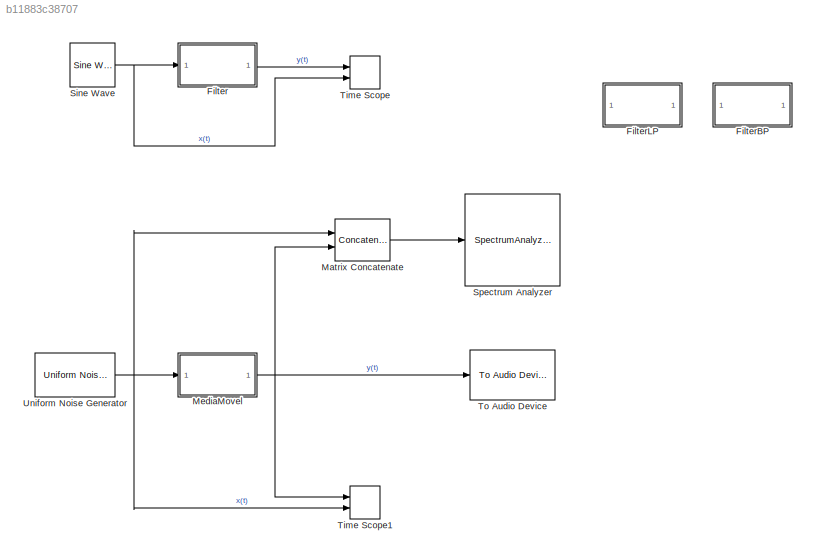
MODEL slx_b11883c38707
KIND model
CONFIG AbsTol = auto
CONFIG FixedStep = auto
CONFIG MaxStep = auto
CONFIG MinStep = auto
CONFIG RelTol = 1e-3
CONFIG SampleTimeConstraint = Unconstrained
CONFIG Solver = ode45
CONFIG SolverMode = Auto
CONFIG SolverName = ode45
CONFIG StartTime = 0.0
CONFIG StopTime = inf
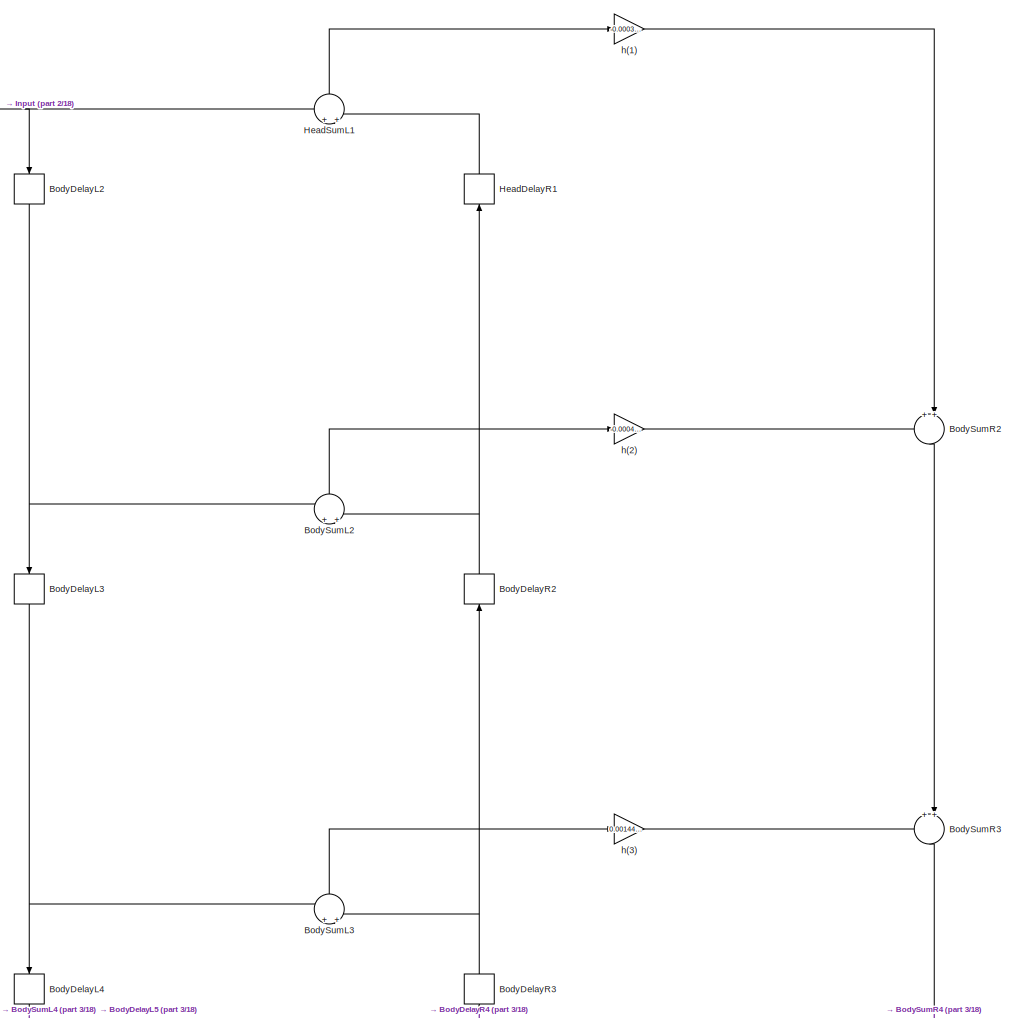
[diagram: Filter - part 1/18, top center region]
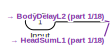
[diagram: Filter - part 2/18, top left region]
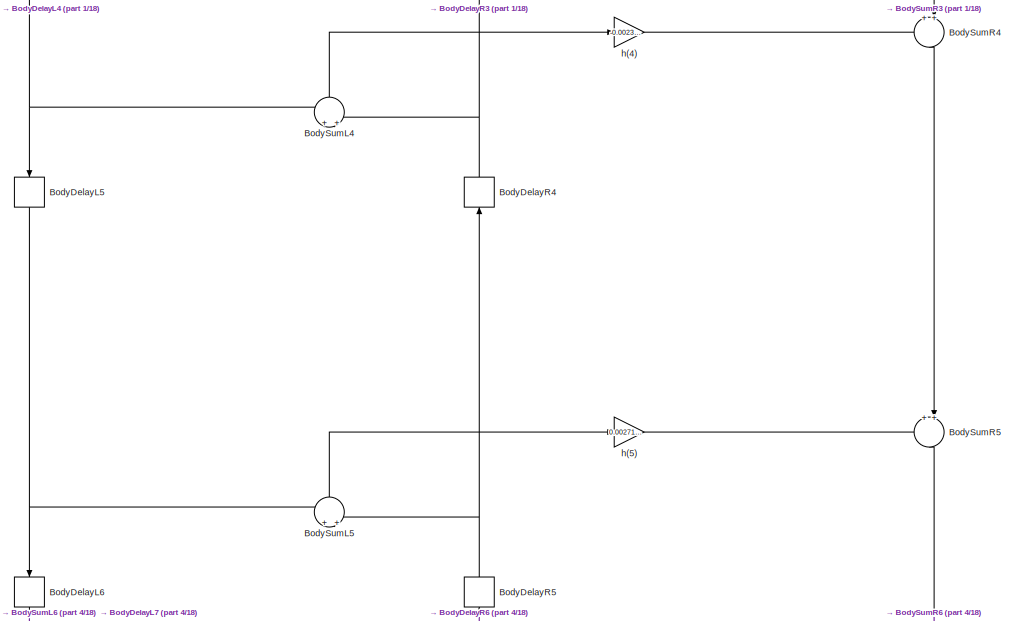
[diagram: Filter - part 3/18, top center region]
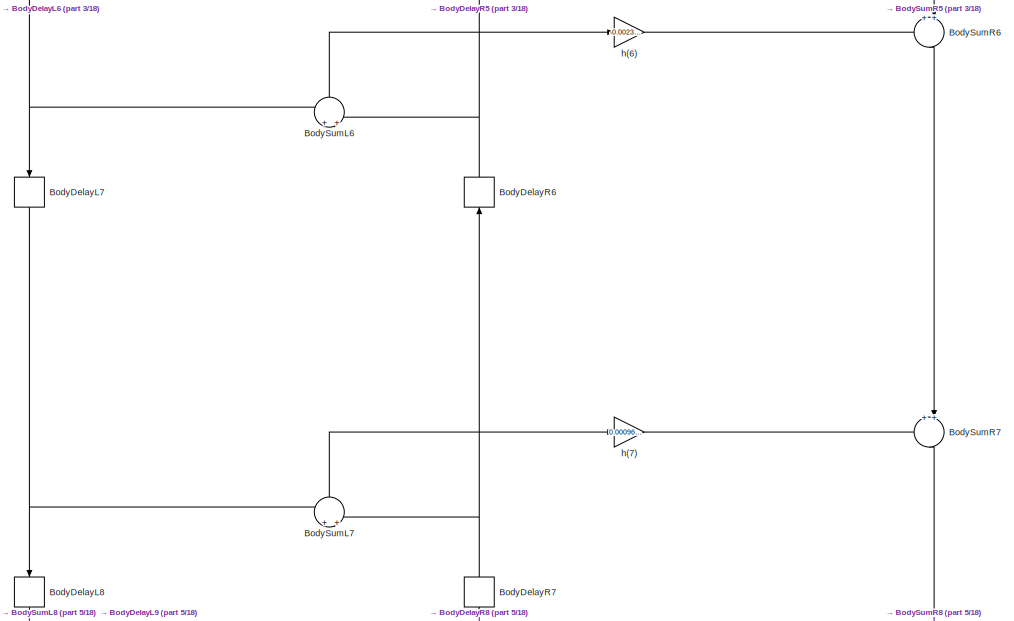
[diagram: Filter - part 4/18, top center region]
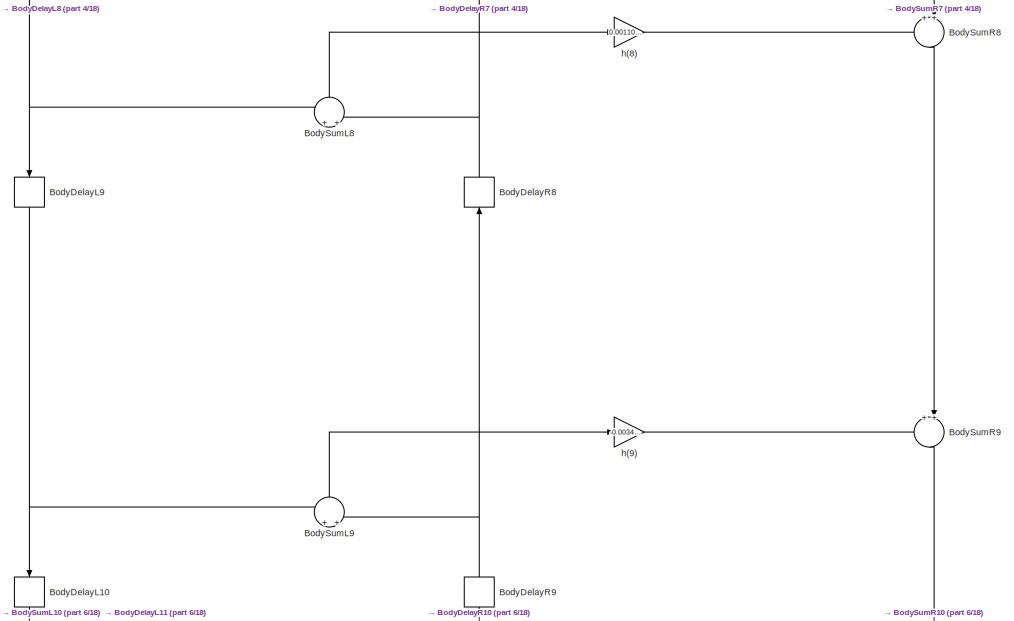
[diagram: Filter - part 5/18, top center region]
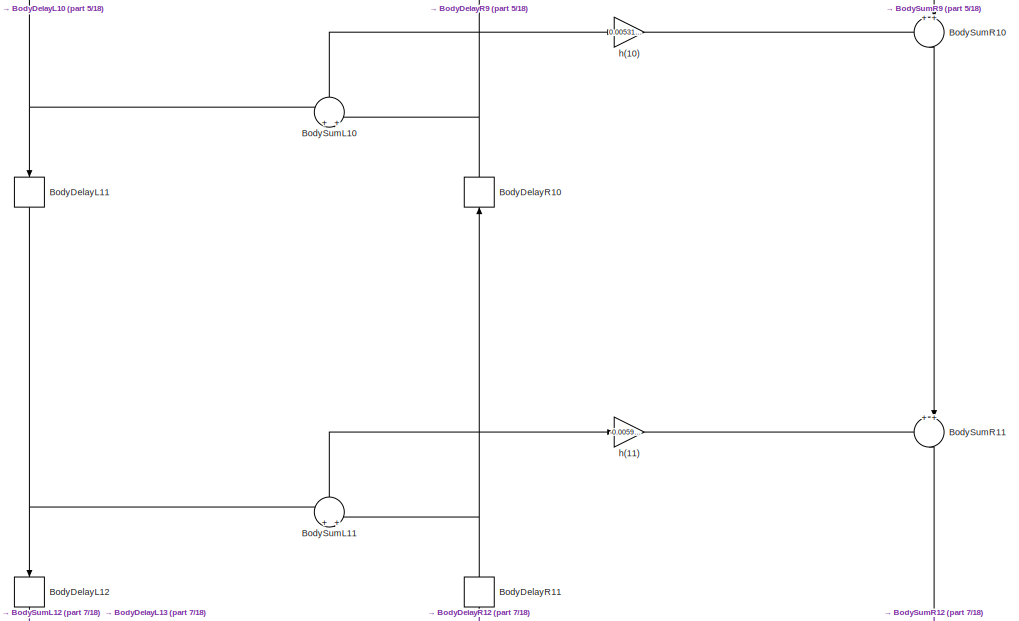
[diagram: Filter - part 6/18, top center region]
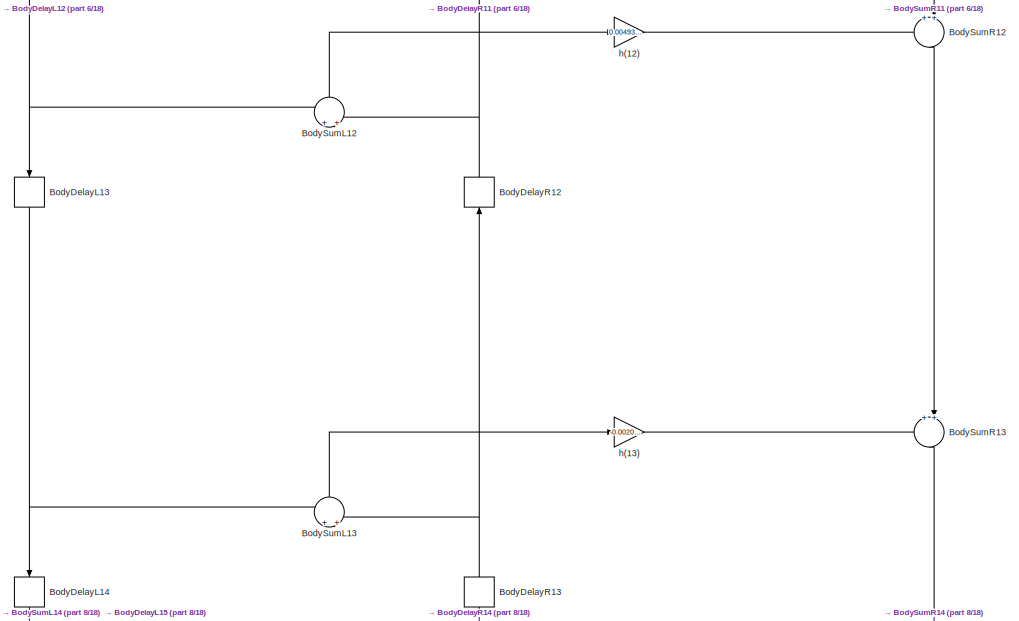
[diagram: Filter - part 7/18, central region]
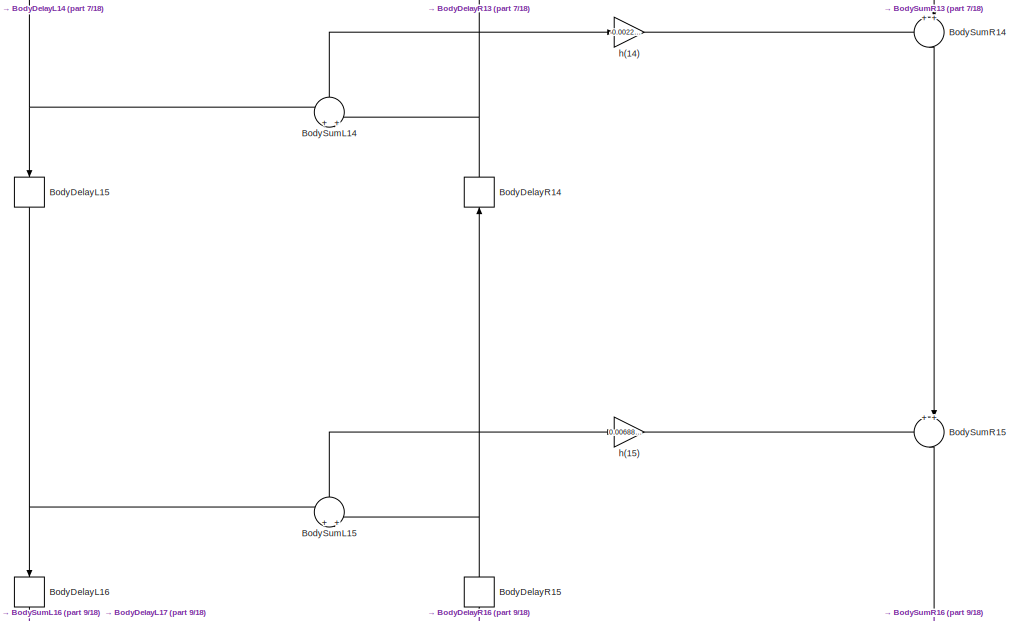
[diagram: Filter - part 8/18, central region]
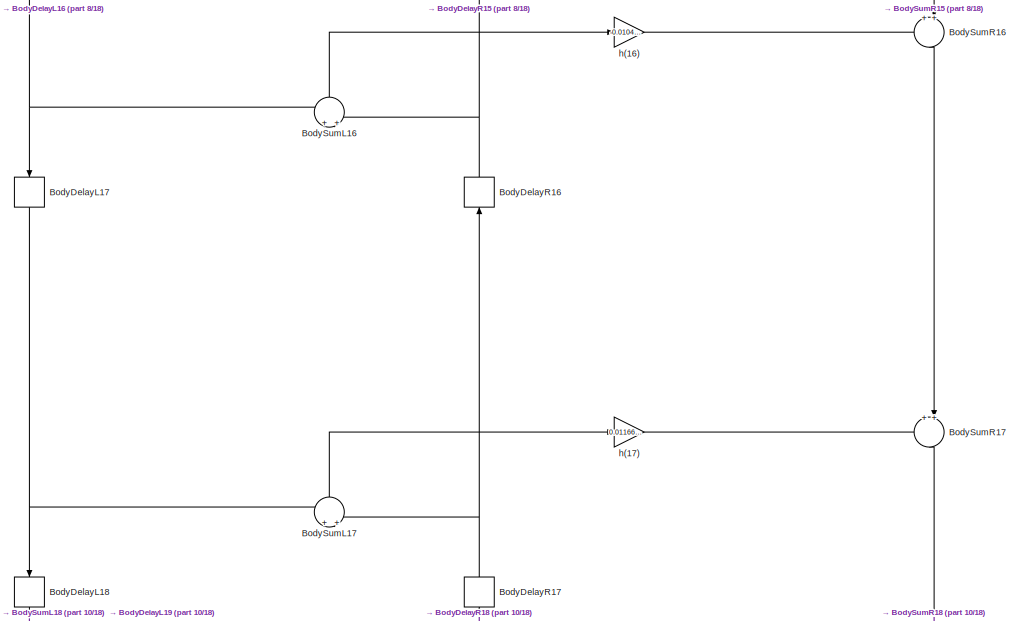
[diagram: Filter - part 9/18, central region]
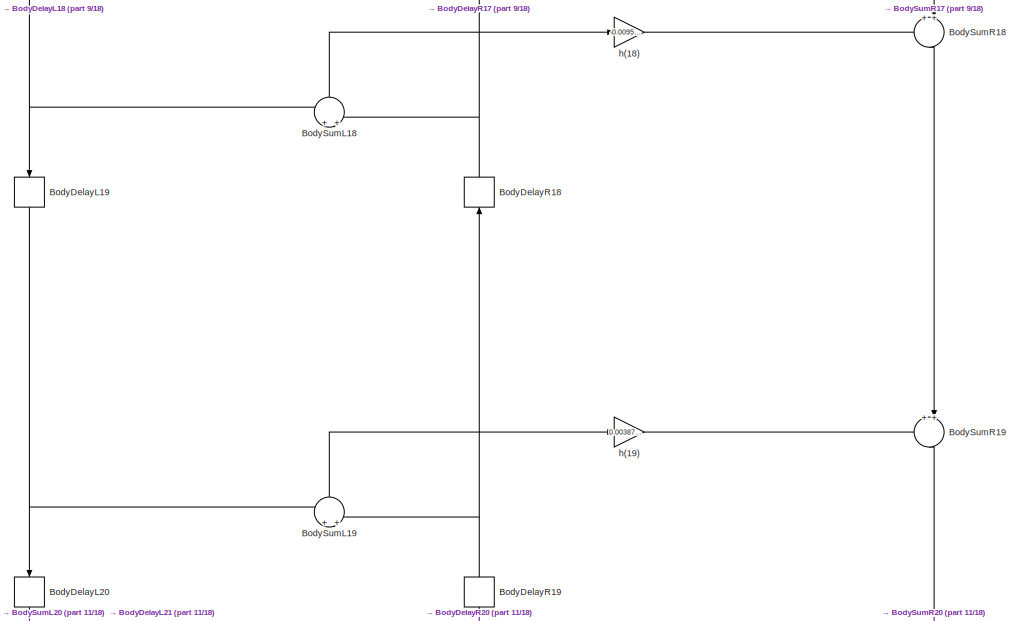
[diagram: Filter - part 10/18, central region]
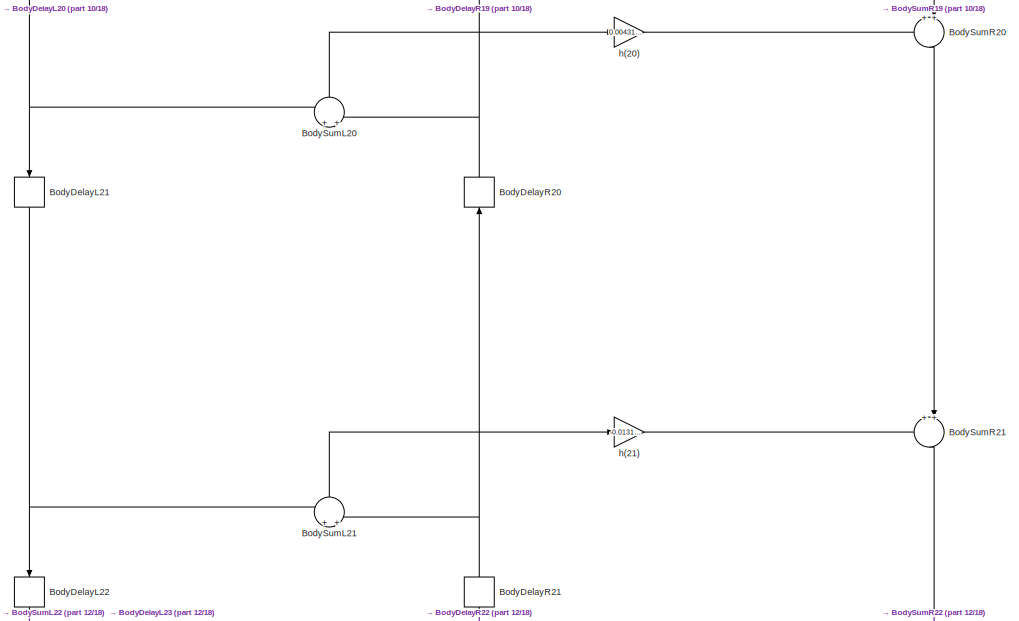
[diagram: Filter - part 11/18, central region]
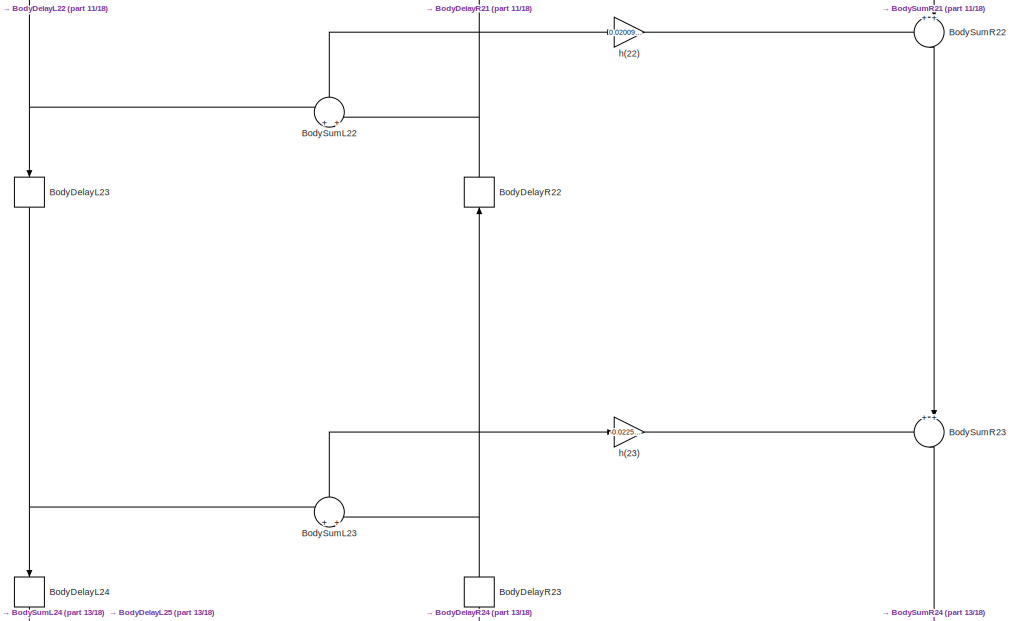
[diagram: Filter - part 12/18, central region]
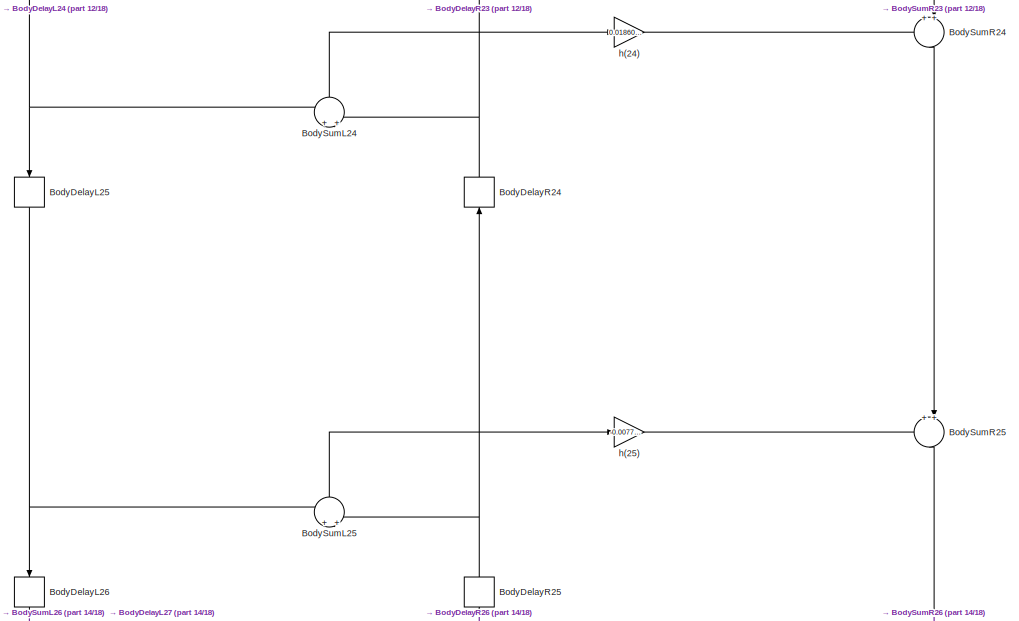
[diagram: Filter - part 13/18, bottom center region]
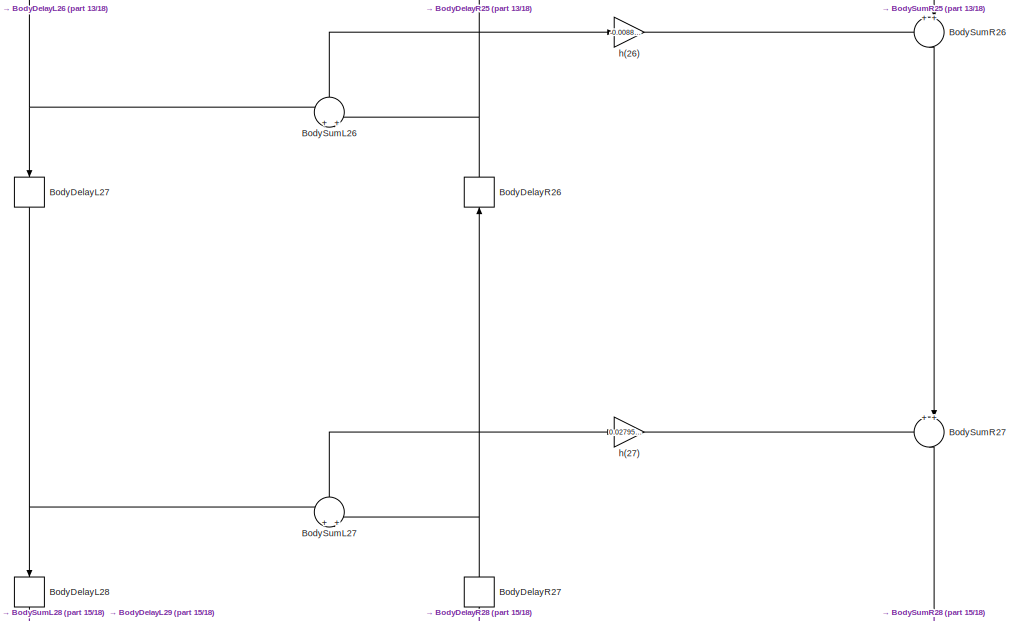
[diagram: Filter - part 14/18, bottom center region]
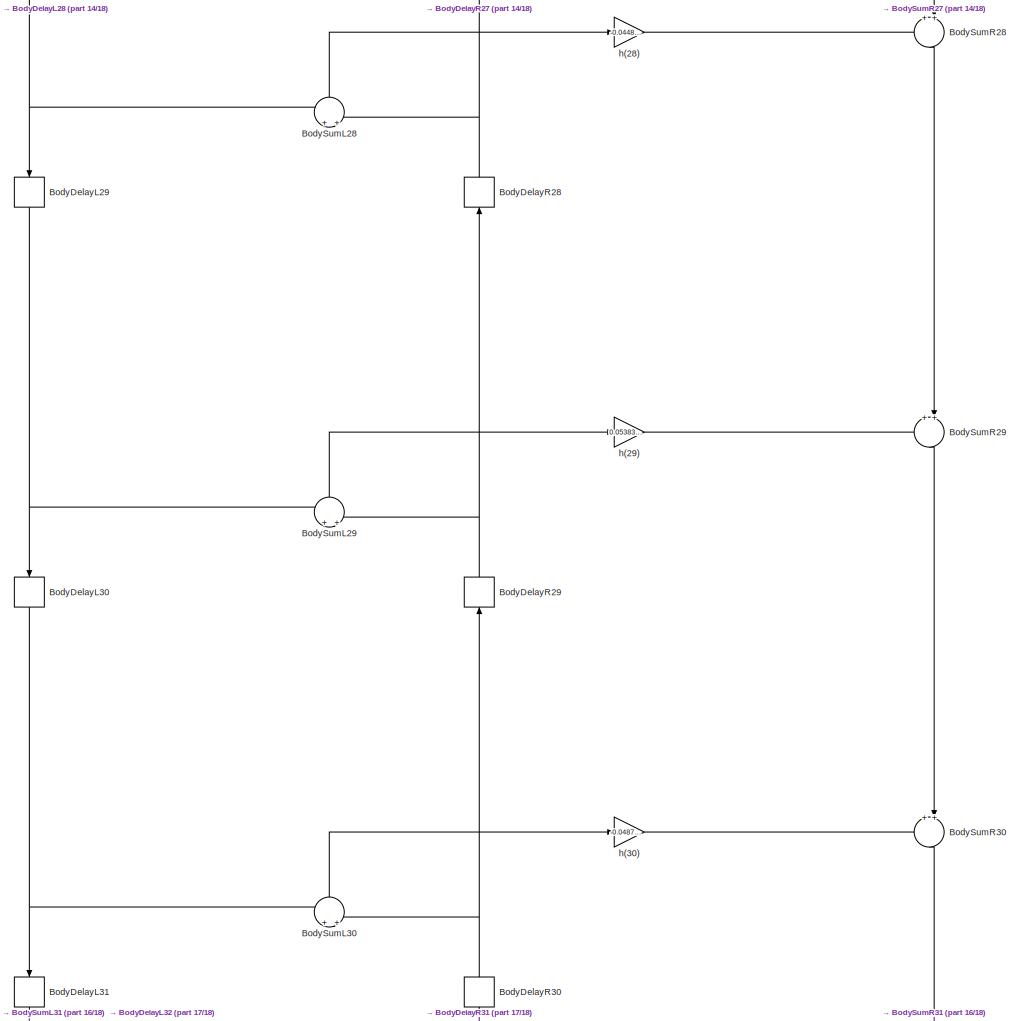
[diagram: Filter - part 15/18, bottom center region]
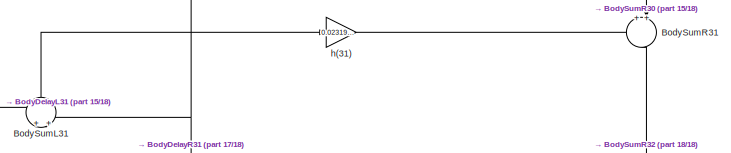
[diagram: Filter - part 16/18, bottom center region]
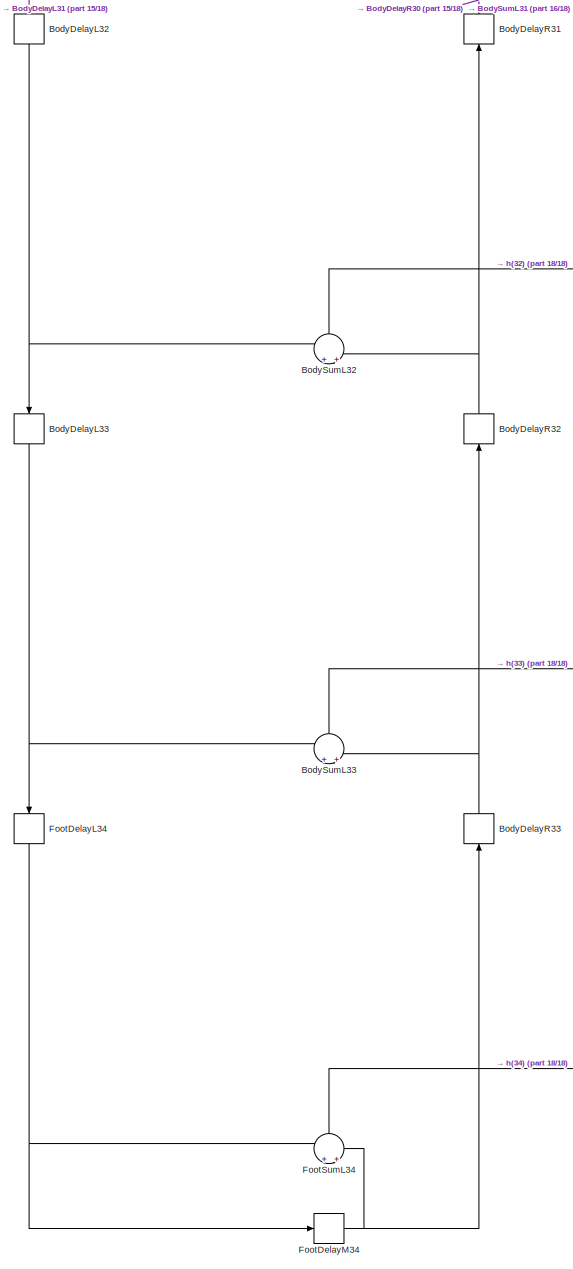
[diagram: Filter - part 17/18, bottom center region]
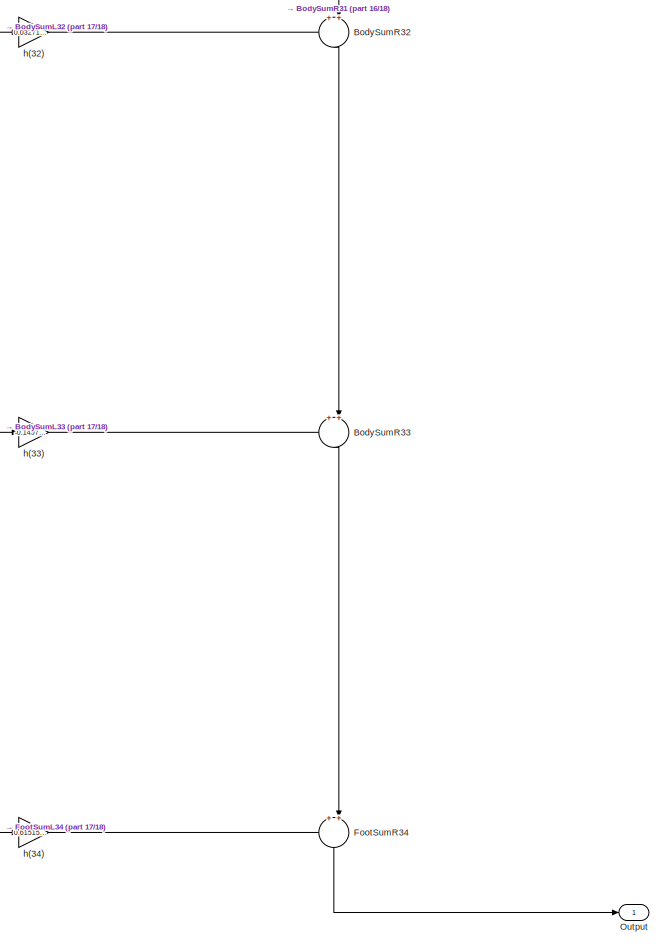
[diagram: Filter - part 18/18, bottom right region]
BLOCK [SubSystem] Filter
  Commented = on
  ErrorFcn = dspFilterRealizedInBasicElemsAlgLoopErrFcnCallback
  Ports = [1, 1]
  RequestExecContextInheritance = off
  Tag = FilterWizardSubSystem
  UserDataPersistent = on
BLOCK [Delay] Filter/BodyDelayL10
  DelayLength = 1
  InitialCondition = 0
  InputPortMap = u0
  InputProcessing = Columns as channels (frame based)
  Ports = [1, 1]
BLOCK [Delay] Filter/BodyDelayL11
  DelayLength = 1
  InitialCondition = 0
  InputPortMap = u0
  InputProcessing = Columns as channels (frame based)
  Ports = [1, 1]
BLOCK [Delay] Filter/BodyDelayL12
  DelayLength = 1
  InitialCondition = 0
  InputPortMap = u0
  InputProcessing = Columns as channels (frame based)
  Ports = [1, 1]
BLOCK [Delay] Filter/BodyDelayL13
  DelayLength = 1
  InitialCondition = 0
  InputPortMap = u0
  InputProcessing = Columns as channels (frame based)
  Ports = [1, 1]
BLOCK [Delay] Filter/BodyDelayL14
  DelayLength = 1
  InitialCondition = 0
  InputPortMap = u0
  InputProcessing = Columns as channels (frame based)
  Ports = [1, 1]
BLOCK [Delay] Filter/BodyDelayL15
  DelayLength = 1
  InitialCondition = 0
  InputPortMap = u0
  InputProcessing = Columns as channels (frame based)
  Ports = [1, 1]
BLOCK [Delay] Filter/BodyDelayL16
  DelayLength = 1
  InitialCondition = 0
  InputPortMap = u0
  InputProcessing = Columns as channels (frame based)
  Ports = [1, 1]
BLOCK [Delay] Filter/BodyDelayL17
  DelayLength = 1
  InitialCondition = 0
  InputPortMap = u0
  InputProcessing = Columns as channels (frame based)
  Ports = [1, 1]
BLOCK [Delay] Filter/BodyDelayL18
  DelayLength = 1
  InitialCondition = 0
  InputPortMap = u0
  InputProcessing = Columns as channels (frame based)
  Ports = [1, 1]
BLOCK [Delay] Filter/BodyDelayL19
  DelayLength = 1
  InitialCondition = 0
  InputPortMap = u0
  InputProcessing = Columns as channels (frame based)
  Ports = [1, 1]
BLOCK [Delay] Filter/BodyDelayL2
  DelayLength = 1
  InitialCondition = 0
  InputPortMap = u0
  InputProcessing = Columns as channels (frame based)
  Ports = [1, 1]
BLOCK [Delay] Filter/BodyDelayL20
  DelayLength = 1
  InitialCondition = 0
  InputPortMap = u0
  InputProcessing = Columns as channels (frame based)
  Ports = [1, 1]
BLOCK [Delay] Filter/BodyDelayL21
  DelayLength = 1
  InitialCondition = 0
  InputPortMap = u0
  InputProcessing = Columns as channels (frame based)
  Ports = [1, 1]
BLOCK [Delay] Filter/BodyDelayL22
  DelayLength = 1
  InitialCondition = 0
  InputPortMap = u0
  InputProcessing = Columns as channels (frame based)
  Ports = [1, 1]
BLOCK [Delay] Filter/BodyDelayL23
  DelayLength = 1
  InitialCondition = 0
  InputPortMap = u0
  InputProcessing = Columns as channels (frame based)
  Ports = [1, 1]
BLOCK [Delay] Filter/BodyDelayL24
  DelayLength = 1
  InitialCondition = 0
  InputPortMap = u0
  InputProcessing = Columns as channels (frame based)
  Ports = [1, 1]
BLOCK [Delay] Filter/BodyDelayL25
  DelayLength = 1
  InitialCondition = 0
  InputPortMap = u0
  InputProcessing = Columns as channels (frame based)
  Ports = [1, 1]
BLOCK [Delay] Filter/BodyDelayL26
  DelayLength = 1
  InitialCondition = 0
  InputPortMap = u0
  InputProcessing = Columns as channels (frame based)
  Ports = [1, 1]
BLOCK [Delay] Filter/BodyDelayL27
  DelayLength = 1
  InitialCondition = 0
  InputPortMap = u0
  InputProcessing = Columns as channels (frame based)
  Ports = [1, 1]
BLOCK [Delay] Filter/BodyDelayL28
  DelayLength = 1
  InitialCondition = 0
  InputPortMap = u0
  InputProcessing = Columns as channels (frame based)
  Ports = [1, 1]
BLOCK [Delay] Filter/BodyDelayL29
  DelayLength = 1
  InitialCondition = 0
  InputPortMap = u0
  InputProcessing = Columns as channels (frame based)
  Ports = [1, 1]
BLOCK [Delay] Filter/BodyDelayL3
  DelayLength = 1
  InitialCondition = 0
  InputPortMap = u0
  InputProcessing = Columns as channels (frame based)
  Ports = [1, 1]
BLOCK [Delay] Filter/BodyDelayL30
  DelayLength = 1
  InitialCondition = 0
  InputPortMap = u0
  InputProcessing = Columns as channels (frame based)
  Ports = [1, 1]
BLOCK [Delay] Filter/BodyDelayL31
  DelayLength = 1
  InitialCondition = 0
  InputPortMap = u0
  InputProcessing = Columns as channels (frame based)
  Ports = [1, 1]
BLOCK [Delay] Filter/BodyDelayL32
  DelayLength = 1
  InitialCondition = 0
  InputPortMap = u0
  InputProcessing = Columns as channels (frame based)
  Ports = [1, 1]
BLOCK [Delay] Filter/BodyDelayL33
  DelayLength = 1
  InitialCondition = 0
  InputPortMap = u0
  InputProcessing = Columns as channels (frame based)
  Ports = [1, 1]
BLOCK [Delay] Filter/BodyDelayL4
  DelayLength = 1
  InitialCondition = 0
  InputPortMap = u0
  InputProcessing = Columns as channels (frame based)
  Ports = [1, 1]
BLOCK [Delay] Filter/BodyDelayL5
  DelayLength = 1
  InitialCondition = 0
  InputPortMap = u0
  InputProcessing = Columns as channels (frame based)
  Ports = [1, 1]
BLOCK [Delay] Filter/BodyDelayL6
  DelayLength = 1
  InitialCondition = 0
  InputPortMap = u0
  InputProcessing = Columns as channels (frame based)
  Ports = [1, 1]
BLOCK [Delay] Filter/BodyDelayL7
  DelayLength = 1
  InitialCondition = 0
  InputPortMap = u0
  InputProcessing = Columns as channels (frame based)
  Ports = [1, 1]
BLOCK [Delay] Filter/BodyDelayL8
  DelayLength = 1
  InitialCondition = 0
  InputPortMap = u0
  InputProcessing = Columns as channels (frame based)
  Ports = [1, 1]
BLOCK [Delay] Filter/BodyDelayL9
  DelayLength = 1
  InitialCondition = 0
  InputPortMap = u0
  InputProcessing = Columns as channels (frame based)
  Ports = [1, 1]
BLOCK [Delay] Filter/BodyDelayR10
  DelayLength = 1
  InitialCondition = 0
  InputPortMap = u0
  InputProcessing = Columns as channels (frame based)
  Ports = [1, 1]
BLOCK [Delay] Filter/BodyDelayR11
  DelayLength = 1
  InitialCondition = 0
  InputPortMap = u0
  InputProcessing = Columns as channels (frame based)
  Ports = [1, 1]
BLOCK [Delay] Filter/BodyDelayR12
  DelayLength = 1
  InitialCondition = 0
  InputPortMap = u0
  InputProcessing = Columns as channels (frame based)
  Ports = [1, 1]
BLOCK [Delay] Filter/BodyDelayR13
  DelayLength = 1
  InitialCondition = 0
  InputPortMap = u0
  InputProcessing = Columns as channels (frame based)
  Ports = [1, 1]
BLOCK [Delay] Filter/BodyDelayR14
  DelayLength = 1
  InitialCondition = 0
  InputPortMap = u0
  InputProcessing = Columns as channels (frame based)
  Ports = [1, 1]
BLOCK [Delay] Filter/BodyDelayR15
  DelayLength = 1
  InitialCondition = 0
  InputPortMap = u0
  InputProcessing = Columns as channels (frame based)
  Ports = [1, 1]
BLOCK [Delay] Filter/BodyDelayR16
  DelayLength = 1
  InitialCondition = 0
  InputPortMap = u0
  InputProcessing = Columns as channels (frame based)
  Ports = [1, 1]
BLOCK [Delay] Filter/BodyDelayR17
  DelayLength = 1
  InitialCondition = 0
  InputPortMap = u0
  InputProcessing = Columns as channels (frame based)
  Ports = [1, 1]
BLOCK [Delay] Filter/BodyDelayR18
  DelayLength = 1
  InitialCondition = 0
  InputPortMap = u0
  InputProcessing = Columns as channels (frame based)
  Ports = [1, 1]
BLOCK [Delay] Filter/BodyDelayR19
  DelayLength = 1
  InitialCondition = 0
  InputPortMap = u0
  InputProcessing = Columns as channels (frame based)
  Ports = [1, 1]
BLOCK [Delay] Filter/BodyDelayR2
  DelayLength = 1
  InitialCondition = 0
  InputPortMap = u0
  InputProcessing = Columns as channels (frame based)
  Ports = [1, 1]
BLOCK [Delay] Filter/BodyDelayR20
  DelayLength = 1
  InitialCondition = 0
  InputPortMap = u0
  InputProcessing = Columns as channels (frame based)
  Ports = [1, 1]
BLOCK [Delay] Filter/BodyDelayR21
  DelayLength = 1
  InitialCondition = 0
  InputPortMap = u0
  InputProcessing = Columns as channels (frame based)
  Ports = [1, 1]
BLOCK [Delay] Filter/BodyDelayR22
  DelayLength = 1
  InitialCondition = 0
  InputPortMap = u0
  InputProcessing = Columns as channels (frame based)
  Ports = [1, 1]
BLOCK [Delay] Filter/BodyDelayR23
  DelayLength = 1
  InitialCondition = 0
  InputPortMap = u0
  InputProcessing = Columns as channels (frame based)
  Ports = [1, 1]
BLOCK [Delay] Filter/BodyDelayR24
  DelayLength = 1
  InitialCondition = 0
  InputPortMap = u0
  InputProcessing = Columns as channels (frame based)
  Ports = [1, 1]
BLOCK [Delay] Filter/BodyDelayR25
  DelayLength = 1
  InitialCondition = 0
  InputPortMap = u0
  InputProcessing = Columns as channels (frame based)
  Ports = [1, 1]
BLOCK [Delay] Filter/BodyDelayR26
  DelayLength = 1
  InitialCondition = 0
  InputPortMap = u0
  InputProcessing = Columns as channels (frame based)
  Ports = [1, 1]
BLOCK [Delay] Filter/BodyDelayR27
  DelayLength = 1
  InitialCondition = 0
  InputPortMap = u0
  InputProcessing = Columns as channels (frame based)
  Ports = [1, 1]
BLOCK [Delay] Filter/BodyDelayR28
  DelayLength = 1
  InitialCondition = 0
  InputPortMap = u0
  InputProcessing = Columns as channels (frame based)
  Ports = [1, 1]
BLOCK [Delay] Filter/BodyDelayR29
  DelayLength = 1
  InitialCondition = 0
  InputPortMap = u0
  InputProcessing = Columns as channels (frame based)
  Ports = [1, 1]
BLOCK [Delay] Filter/BodyDelayR3
  DelayLength = 1
  InitialCondition = 0
  InputPortMap = u0
  InputProcessing = Columns as channels (frame based)
  Ports = [1, 1]
BLOCK [Delay] Filter/BodyDelayR30
  DelayLength = 1
  InitialCondition = 0
  InputPortMap = u0
  InputProcessing = Columns as channels (frame based)
  Ports = [1, 1]
BLOCK [Delay] Filter/BodyDelayR31
  DelayLength = 1
  InitialCondition = 0
  InputPortMap = u0
  InputProcessing = Columns as channels (frame based)
  Ports = [1, 1]
BLOCK [Delay] Filter/BodyDelayR32
  DelayLength = 1
  InitialCondition = 0
  InputPortMap = u0
  InputProcessing = Columns as channels (frame based)
  Ports = [1, 1]
BLOCK [Delay] Filter/BodyDelayR33
  DelayLength = 1
  InitialCondition = 0
  InputPortMap = u0
  InputProcessing = Columns as channels (frame based)
  Ports = [1, 1]
BLOCK [Delay] Filter/BodyDelayR4
  DelayLength = 1
  InitialCondition = 0
  InputPortMap = u0
  InputProcessing = Columns as channels (frame based)
  Ports = [1, 1]
BLOCK [Delay] Filter/BodyDelayR5
  DelayLength = 1
  InitialCondition = 0
  InputPortMap = u0
  InputProcessing = Columns as channels (frame based)
  Ports = [1, 1]
BLOCK [Delay] Filter/BodyDelayR6
  DelayLength = 1
  InitialCondition = 0
  InputPortMap = u0
  InputProcessing = Columns as channels (frame based)
  Ports = [1, 1]
BLOCK [Delay] Filter/BodyDelayR7
  DelayLength = 1
  InitialCondition = 0
  InputPortMap = u0
  InputProcessing = Columns as channels (frame based)
  Ports = [1, 1]
BLOCK [Delay] Filter/BodyDelayR8
  DelayLength = 1
  InitialCondition = 0
  InputPortMap = u0
  InputProcessing = Columns as channels (frame based)
  Ports = [1, 1]
BLOCK [Delay] Filter/BodyDelayR9
  DelayLength = 1
  InitialCondition = 0
  InputPortMap = u0
  InputProcessing = Columns as channels (frame based)
  Ports = [1, 1]
BLOCK [Sum] Filter/BodySumL10
  IconShape = round
  InputSameDT = off
  Inputs = +|+
  Ports = [2, 1]
  RndMeth = Nearest
BLOCK [Sum] Filter/BodySumL11
  IconShape = round
  InputSameDT = off
  Inputs = +|+
  Ports = [2, 1]
  RndMeth = Nearest
BLOCK [Sum] Filter/BodySumL12
  IconShape = round
  InputSameDT = off
  Inputs = +|+
  Ports = [2, 1]
  RndMeth = Nearest
BLOCK [Sum] Filter/BodySumL13
  IconShape = round
  InputSameDT = off
  Inputs = +|+
  Ports = [2, 1]
  RndMeth = Nearest
BLOCK [Sum] Filter/BodySumL14
  IconShape = round
  InputSameDT = off
  Inputs = +|+
  Ports = [2, 1]
  RndMeth = Nearest
BLOCK [Sum] Filter/BodySumL15
  IconShape = round
  InputSameDT = off
  Inputs = +|+
  Ports = [2, 1]
  RndMeth = Nearest
BLOCK [Sum] Filter/BodySumL16
  IconShape = round
  InputSameDT = off
  Inputs = +|+
  Ports = [2, 1]
  RndMeth = Nearest
BLOCK [Sum] Filter/BodySumL17
  IconShape = round
  InputSameDT = off
  Inputs = +|+
  Ports = [2, 1]
  RndMeth = Nearest
BLOCK [Sum] Filter/BodySumL18
  IconShape = round
  InputSameDT = off
  Inputs = +|+
  Ports = [2, 1]
  RndMeth = Nearest
BLOCK [Sum] Filter/BodySumL19
  IconShape = round
  InputSameDT = off
  Inputs = +|+
  Ports = [2, 1]
  RndMeth = Nearest
BLOCK [Sum] Filter/BodySumL2
  IconShape = round
  InputSameDT = off
  Inputs = +|+
  Ports = [2, 1]
  RndMeth = Nearest
BLOCK [Sum] Filter/BodySumL20
  IconShape = round
  InputSameDT = off
  Inputs = +|+
  Ports = [2, 1]
  RndMeth = Nearest
BLOCK [Sum] Filter/BodySumL21
  IconShape = round
  InputSameDT = off
  Inputs = +|+
  Ports = [2, 1]
  RndMeth = Nearest
BLOCK [Sum] Filter/BodySumL22
  IconShape = round
  InputSameDT = off
  Inputs = +|+
  Ports = [2, 1]
  RndMeth = Nearest
BLOCK [Sum] Filter/BodySumL23
  IconShape = round
  InputSameDT = off
  Inputs = +|+
  Ports = [2, 1]
  RndMeth = Nearest
BLOCK [Sum] Filter/BodySumL24
  IconShape = round
  InputSameDT = off
  Inputs = +|+
  Ports = [2, 1]
  RndMeth = Nearest
BLOCK [Sum] Filter/BodySumL25
  IconShape = round
  InputSameDT = off
  Inputs = +|+
  Ports = [2, 1]
  RndMeth = Nearest
BLOCK [Sum] Filter/BodySumL26
  IconShape = round
  InputSameDT = off
  Inputs = +|+
  Ports = [2, 1]
  RndMeth = Nearest
BLOCK [Sum] Filter/BodySumL27
  IconShape = round
  InputSameDT = off
  Inputs = +|+
  Ports = [2, 1]
  RndMeth = Nearest
BLOCK [Sum] Filter/BodySumL28
  IconShape = round
  InputSameDT = off
  Inputs = +|+
  Ports = [2, 1]
  RndMeth = Nearest
BLOCK [Sum] Filter/BodySumL29
  IconShape = round
  InputSameDT = off
  Inputs = +|+
  Ports = [2, 1]
  RndMeth = Nearest
BLOCK [Sum] Filter/BodySumL3
  IconShape = round
  InputSameDT = off
  Inputs = +|+
  Ports = [2, 1]
  RndMeth = Nearest
BLOCK [Sum] Filter/BodySumL30
  IconShape = round
  InputSameDT = off
  Inputs = +|+
  Ports = [2, 1]
  RndMeth = Nearest
BLOCK [Sum] Filter/BodySumL31
  IconShape = round
  InputSameDT = off
  Inputs = +|+
  Ports = [2, 1]
  RndMeth = Nearest
BLOCK [Sum] Filter/BodySumL32
  IconShape = round
  InputSameDT = off
  Inputs = +|+
  Ports = [2, 1]
  RndMeth = Nearest
BLOCK [Sum] Filter/BodySumL33
  IconShape = round
  InputSameDT = off
  Inputs = +|+
  Ports = [2, 1]
  RndMeth = Nearest
BLOCK [Sum] Filter/BodySumL4
  IconShape = round
  InputSameDT = off
  Inputs = +|+
  Ports = [2, 1]
  RndMeth = Nearest
BLOCK [Sum] Filter/BodySumL5
  IconShape = round
  InputSameDT = off
  Inputs = +|+
  Ports = [2, 1]
  RndMeth = Nearest
BLOCK [Sum] Filter/BodySumL6
  IconShape = round
  InputSameDT = off
  Inputs = +|+
  Ports = [2, 1]
  RndMeth = Nearest
BLOCK [Sum] Filter/BodySumL7
  IconShape = round
  InputSameDT = off
  Inputs = +|+
  Ports = [2, 1]
  RndMeth = Nearest
BLOCK [Sum] Filter/BodySumL8
  IconShape = round
  InputSameDT = off
  Inputs = +|+
  Ports = [2, 1]
  RndMeth = Nearest
BLOCK [Sum] Filter/BodySumL9
  IconShape = round
  InputSameDT = off
  Inputs = +|+
  Ports = [2, 1]
  RndMeth = Nearest
BLOCK [Sum] Filter/BodySumR10
  IconShape = round
  InputSameDT = off
  Inputs = ++|
  Ports = [2, 1]
  RndMeth = Nearest
BLOCK [Sum] Filter/BodySumR11
  IconShape = round
  InputSameDT = off
  Inputs = ++|
  Ports = [2, 1]
  RndMeth = Nearest
BLOCK [Sum] Filter/BodySumR12
  IconShape = round
  InputSameDT = off
  Inputs = ++|
  Ports = [2, 1]
  RndMeth = Nearest
BLOCK [Sum] Filter/BodySumR13
  IconShape = round
  InputSameDT = off
  Inputs = ++|
  Ports = [2, 1]
  RndMeth = Nearest
BLOCK [Sum] Filter/BodySumR14
  IconShape = round
  InputSameDT = off
  Inputs = ++|
  Ports = [2, 1]
  RndMeth = Nearest
BLOCK [Sum] Filter/BodySumR15
  IconShape = round
  InputSameDT = off
  Inputs = ++|
  Ports = [2, 1]
  RndMeth = Nearest
BLOCK [Sum] Filter/BodySumR16
  IconShape = round
  InputSameDT = off
  Inputs = ++|
  Ports = [2, 1]
  RndMeth = Nearest
BLOCK [Sum] Filter/BodySumR17
  IconShape = round
  InputSameDT = off
  Inputs = ++|
  Ports = [2, 1]
  RndMeth = Nearest
BLOCK [Sum] Filter/BodySumR18
  IconShape = round
  InputSameDT = off
  Inputs = ++|
  Ports = [2, 1]
  RndMeth = Nearest
BLOCK [Sum] Filter/BodySumR19
  IconShape = round
  InputSameDT = off
  Inputs = ++|
  Ports = [2, 1]
  RndMeth = Nearest
BLOCK [Sum] Filter/BodySumR2
  IconShape = round
  InputSameDT = off
  Inputs = ++|
  Ports = [2, 1]
  RndMeth = Nearest
BLOCK [Sum] Filter/BodySumR20
  IconShape = round
  InputSameDT = off
  Inputs = ++|
  Ports = [2, 1]
  RndMeth = Nearest
BLOCK [Sum] Filter/BodySumR21
  IconShape = round
  InputSameDT = off
  Inputs = ++|
  Ports = [2, 1]
  RndMeth = Nearest
BLOCK [Sum] Filter/BodySumR22
  IconShape = round
  InputSameDT = off
  Inputs = ++|
  Ports = [2, 1]
  RndMeth = Nearest
BLOCK [Sum] Filter/BodySumR23
  IconShape = round
  InputSameDT = off
  Inputs = ++|
  Ports = [2, 1]
  RndMeth = Nearest
BLOCK [Sum] Filter/BodySumR24
  IconShape = round
  InputSameDT = off
  Inputs = ++|
  Ports = [2, 1]
  RndMeth = Nearest
BLOCK [Sum] Filter/BodySumR25
  IconShape = round
  InputSameDT = off
  Inputs = ++|
  Ports = [2, 1]
  RndMeth = Nearest
BLOCK [Sum] Filter/BodySumR26
  IconShape = round
  InputSameDT = off
  Inputs = ++|
  Ports = [2, 1]
  RndMeth = Nearest
BLOCK [Sum] Filter/BodySumR27
  IconShape = round
  InputSameDT = off
  Inputs = ++|
  Ports = [2, 1]
  RndMeth = Nearest
BLOCK [Sum] Filter/BodySumR28
  IconShape = round
  InputSameDT = off
  Inputs = ++|
  Ports = [2, 1]
  RndMeth = Nearest
BLOCK [Sum] Filter/BodySumR29
  IconShape = round
  InputSameDT = off
  Inputs = ++|
  Ports = [2, 1]
  RndMeth = Nearest
BLOCK [Sum] Filter/BodySumR3
  IconShape = round
  InputSameDT = off
  Inputs = ++|
  Ports = [2, 1]
  RndMeth = Nearest
BLOCK [Sum] Filter/BodySumR30
  IconShape = round
  InputSameDT = off
  Inputs = ++|
  Ports = [2, 1]
  RndMeth = Nearest
BLOCK [Sum] Filter/BodySumR31
  IconShape = round
  InputSameDT = off
  Inputs = ++|
  Ports = [2, 1]
  RndMeth = Nearest
BLOCK [Sum] Filter/BodySumR32
  IconShape = round
  InputSameDT = off
  Inputs = ++|
  Ports = [2, 1]
  RndMeth = Nearest
BLOCK [Sum] Filter/BodySumR33
  IconShape = round
  InputSameDT = off
  Inputs = ++|
  Ports = [2, 1]
  RndMeth = Nearest
BLOCK [Sum] Filter/BodySumR4
  IconShape = round
  InputSameDT = off
  Inputs = ++|
  Ports = [2, 1]
  RndMeth = Nearest
BLOCK [Sum] Filter/BodySumR5
  IconShape = round
  InputSameDT = off
  Inputs = ++|
  Ports = [2, 1]
  RndMeth = Nearest
BLOCK [Sum] Filter/BodySumR6
  IconShape = round
  InputSameDT = off
  Inputs = ++|
  Ports = [2, 1]
  RndMeth = Nearest
BLOCK [Sum] Filter/BodySumR7
  IconShape = round
  InputSameDT = off
  Inputs = ++|
  Ports = [2, 1]
  RndMeth = Nearest
BLOCK [Sum] Filter/BodySumR8
  IconShape = round
  InputSameDT = off
  Inputs = ++|
  Ports = [2, 1]
  RndMeth = Nearest
BLOCK [Sum] Filter/BodySumR9
  IconShape = round
  InputSameDT = off
  Inputs = ++|
  Ports = [2, 1]
  RndMeth = Nearest
BLOCK [Delay] Filter/FootDelayL34
  DelayLength = 1
  InitialCondition = 0
  InputPortMap = u0
  InputProcessing = Columns as channels (frame based)
  Ports = [1, 1]
BLOCK [Delay] Filter/FootDelayM34
  DelayLength = 1
  InitialCondition = 0
  InputPortMap = u0
  InputProcessing = Columns as channels (frame based)
  Ports = [1, 1]
BLOCK [Sum] Filter/FootSumL34
  IconShape = round
  InputSameDT = off
  Inputs = +|+
  Ports = [2, 1]
  RndMeth = Nearest
BLOCK [Sum] Filter/FootSumR34
  IconShape = round
  InputSameDT = off
  Inputs = ++|
  Ports = [2, 1]
  RndMeth = Nearest
BLOCK [Delay] Filter/HeadDelayR1
  DelayLength = 1
  InitialCondition = 0
  InputPortMap = u0
  InputProcessing = Columns as channels (frame based)
  Ports = [1, 1]
BLOCK [Sum] Filter/HeadSumL1
  IconShape = round
  InputSameDT = off
  Inputs = +|+
  Ports = [2, 1]
  RndMeth = Nearest
BLOCK [Inport] Filter/Input
  IconDisplay = Port number
BLOCK [Outport] Filter/Output
  IconDisplay = Port number
BLOCK [Gain] Filter/h(1)
  Gain = -0.000364132749362717958
  ParamDataTypeStr = double
  RndMeth = Nearest
BLOCK [Gain] Filter/h(10)
  Gain = 0.00531930395672733022
  ParamDataTypeStr = double
  RndMeth = Nearest
BLOCK [Gain] Filter/h(11)
  Gain = -0.00599595024834308384
  ParamDataTypeStr = double
  RndMeth = Nearest
BLOCK [Gain] Filter/h(12)
  Gain = 0.00493111056284330218
  ParamDataTypeStr = double
  RndMeth = Nearest
BLOCK [Gain] Filter/h(13)
  Gain = -0.00202197133500850185
  ParamDataTypeStr = double
  RndMeth = Nearest
BLOCK [Gain] Filter/h(14)
  Gain = -0.00225988083123397979
  ParamDataTypeStr = double
  RndMeth = Nearest
BLOCK [Gain] Filter/h(15)
  Gain = 0.00688790976458630421
  ParamDataTypeStr = double
  RndMeth = Nearest
BLOCK [Gain] Filter/h(16)
  Gain = -0.010482673138424806
  ParamDataTypeStr = double
  RndMeth = Nearest
BLOCK [Gain] Filter/h(17)
  Gain = 0.0116687828609023519
  ParamDataTypeStr = double
  RndMeth = Nearest
BLOCK [Gain] Filter/h(18)
  Gain = -0.0095054851993384027
  ParamDataTypeStr = double
  RndMeth = Nearest
BLOCK [Gain] Filter/h(19)
  Gain = 0.00387250409474231439
  ParamDataTypeStr = double
  RndMeth = Nearest
BLOCK [Gain] Filter/h(2)
  Gain = -0.000441701442903761482
  ParamDataTypeStr = double
  RndMeth = Nearest
BLOCK [Gain] Filter/h(20)
  Gain = 0.00431389321152048262
  ParamDataTypeStr = double
  RndMeth = Nearest
BLOCK [Gain] Filter/h(21)
  Gain = -0.013149758358395644
  ParamDataTypeStr = double
  RndMeth = Nearest
BLOCK [Gain] Filter/h(22)
  Gain = 0.0200901387853989616
  ParamDataTypeStr = double
  RndMeth = Nearest
BLOCK [Gain] Filter/h(23)
  Gain = -0.022546297515038085
  ParamDataTypeStr = double
  RndMeth = Nearest
BLOCK [Gain] Filter/h(24)
  Gain = 0.0186096414570842521
  ParamDataTypeStr = double
  RndMeth = Nearest
BLOCK [Gain] Filter/h(25)
  Gain = -0.00772844067394475899
  ParamDataTypeStr = double
  RndMeth = Nearest
BLOCK [Gain] Filter/h(26)
  Gain = -0.00884228685288895172
  ParamDataTypeStr = double
  RndMeth = Nearest
BLOCK [Gain] Filter/h(27)
  Gain = 0.0279507693010130689
  ParamDataTypeStr = double
  RndMeth = Nearest
BLOCK [Gain] Filter/h(28)
  Gain = -0.0448557585663134223
  ParamDataTypeStr = double
  RndMeth = Nearest
BLOCK [Gain] Filter/h(29)
  Gain = 0.053831809124752307
  ParamDataTypeStr = double
  RndMeth = Nearest
BLOCK [Gain] Filter/h(3)
  Gain = 0.00144180428413273436
  ParamDataTypeStr = double
  RndMeth = Nearest
BLOCK [Gain] Filter/h(30)
  Gain = -0.0487828680094823386
  ParamDataTypeStr = double
  RndMeth = Nearest
BLOCK [Gain] Filter/h(31)
  Gain = 0.0231920259786854051
  ParamDataTypeStr = double
  RndMeth = Nearest
BLOCK [Gain] Filter/h(32)
  Gain = 0.0327167706123580593
  ParamDataTypeStr = double
  RndMeth = Nearest
BLOCK [Gain] Filter/h(33)
  Gain = -0.149729238051032554
  ParamDataTypeStr = double
  RndMeth = Nearest
BLOCK [Gain] Filter/h(34)
  Gain = 0.615155399639028544
  ParamDataTypeStr = double
  RndMeth = Nearest
BLOCK [Gain] Filter/h(4)
  Gain = -0.00232445948822958487
  ParamDataTypeStr = double
  RndMeth = Nearest
BLOCK [Gain] Filter/h(5)
  Gain = 0.0027156296879888393
  ParamDataTypeStr = double
  RndMeth = Nearest
BLOCK [Gain] Filter/h(6)
  Gain = -0.00230281658360138256
  ParamDataTypeStr = double
  RndMeth = Nearest
BLOCK [Gain] Filter/h(7)
  Gain = 0.000969338840947357792
  ParamDataTypeStr = double
  RndMeth = Nearest
BLOCK [Gain] Filter/h(8)
  Gain = 0.00110787619312295257
  ParamDataTypeStr = double
  RndMeth = Nearest
BLOCK [Gain] Filter/h(9)
  Gain = -0.00344098931229233802
  ParamDataTypeStr = double
  RndMeth = Nearest
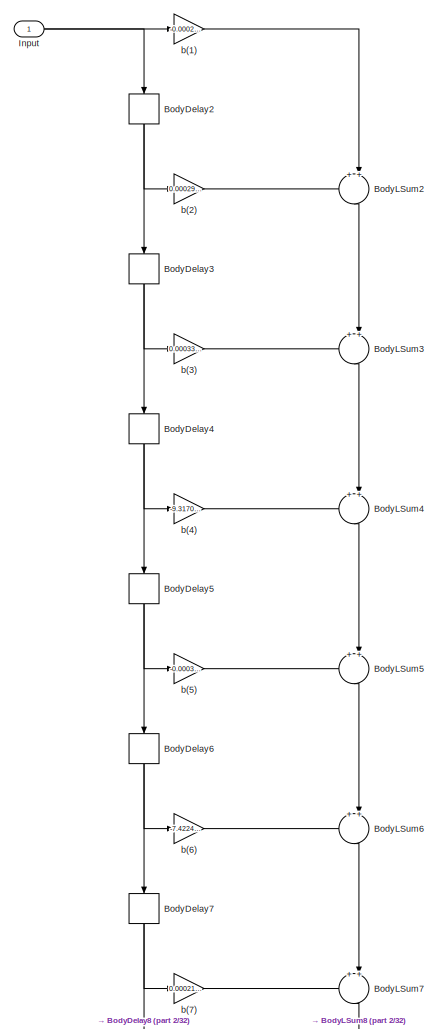
[diagram: FilterBP - part 1/32, full width, top band]
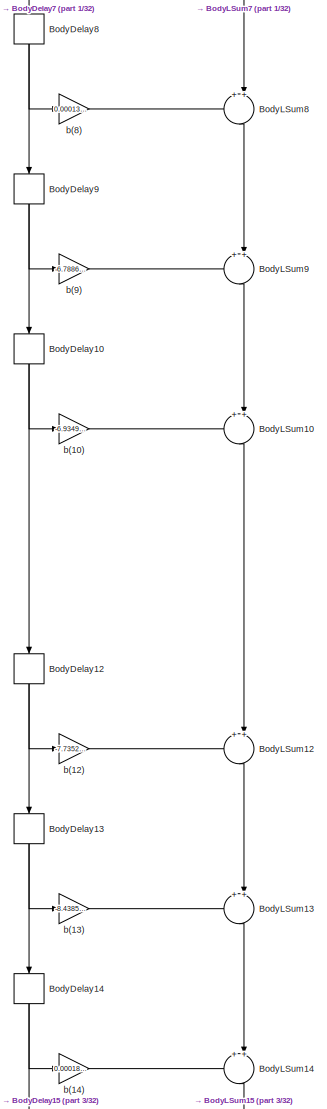
[diagram: FilterBP - part 2/32, top center region]
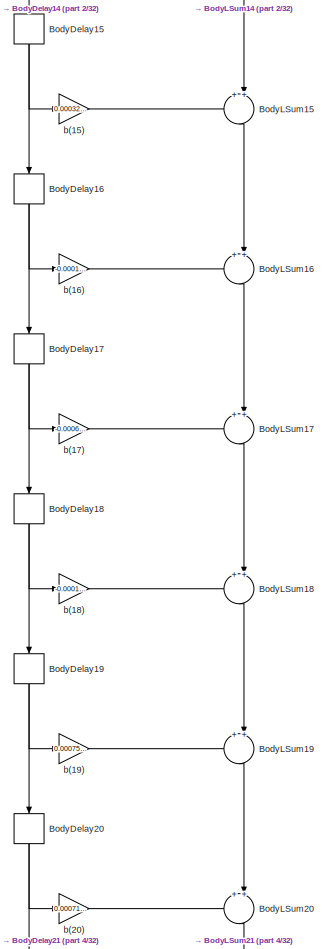
[diagram: FilterBP - part 3/32, top center region]
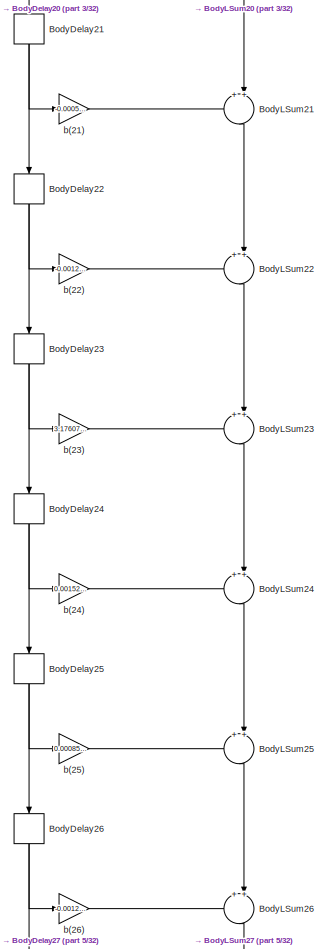
[diagram: FilterBP - part 4/32, top center region]
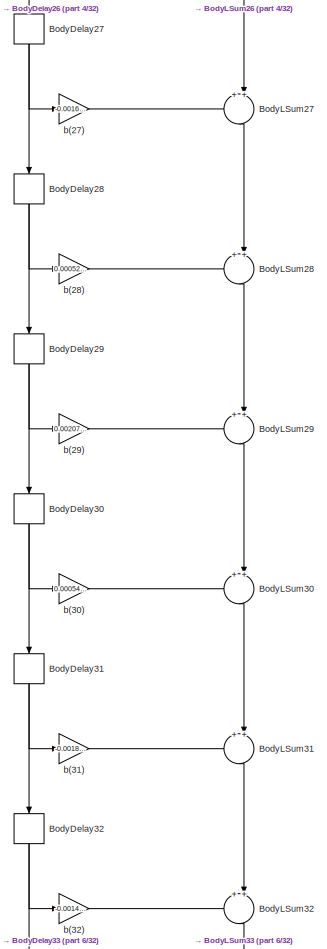
[diagram: FilterBP - part 5/32, top center region]
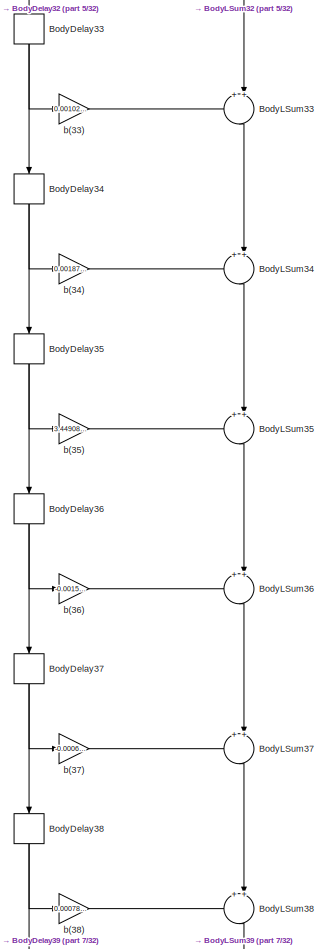
[diagram: FilterBP - part 6/32, top center region]
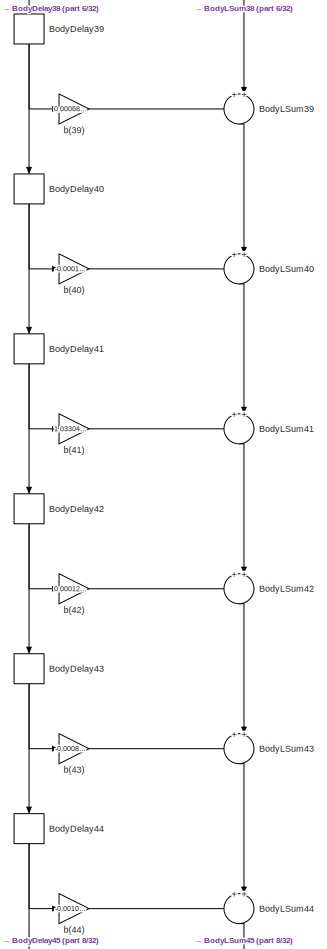
[diagram: FilterBP - part 7/32, top center region]
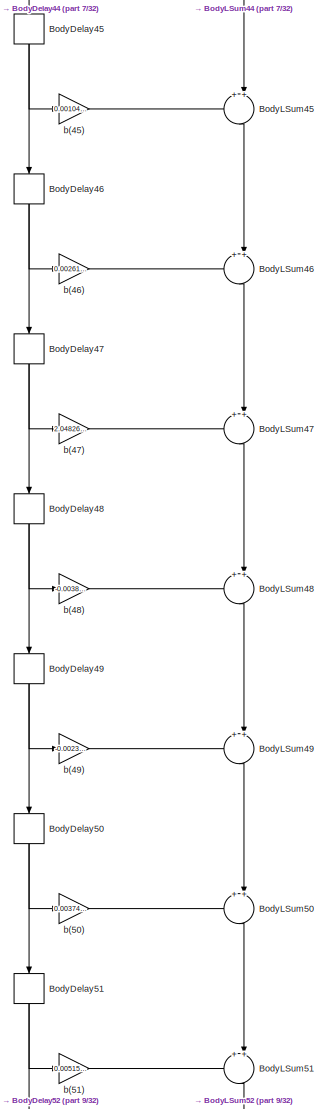
[diagram: FilterBP - part 8/32, top center region]
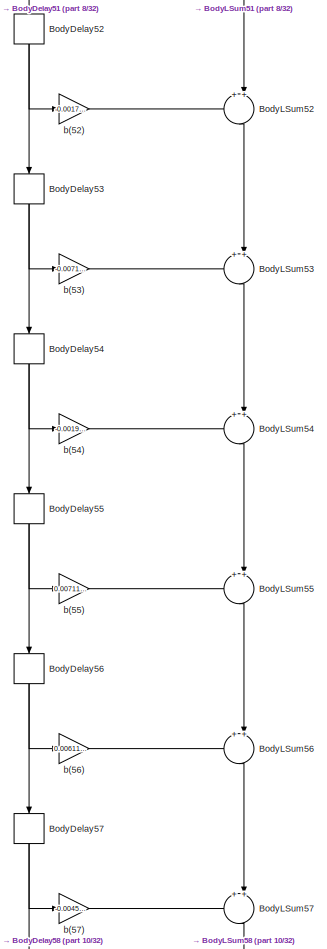
[diagram: FilterBP - part 9/32, top center region]
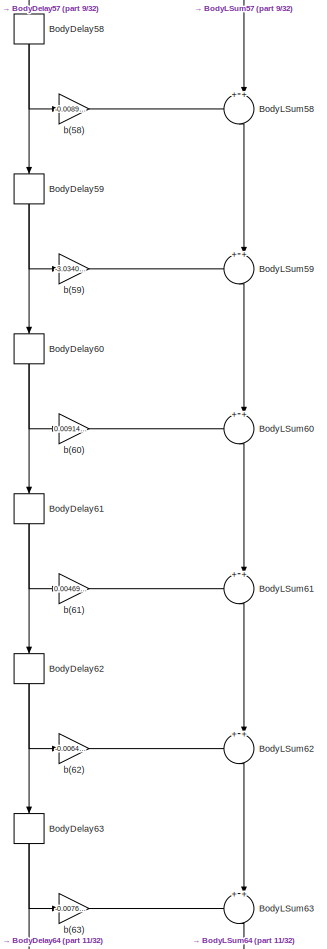
[diagram: FilterBP - part 10/32, top center region]
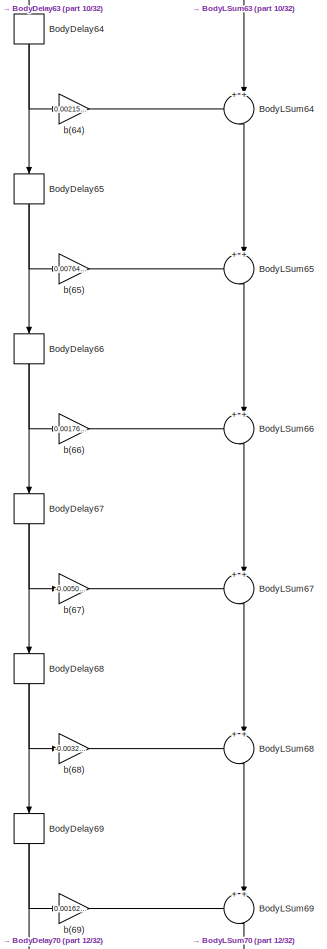
[diagram: FilterBP - part 11/32, top center region]
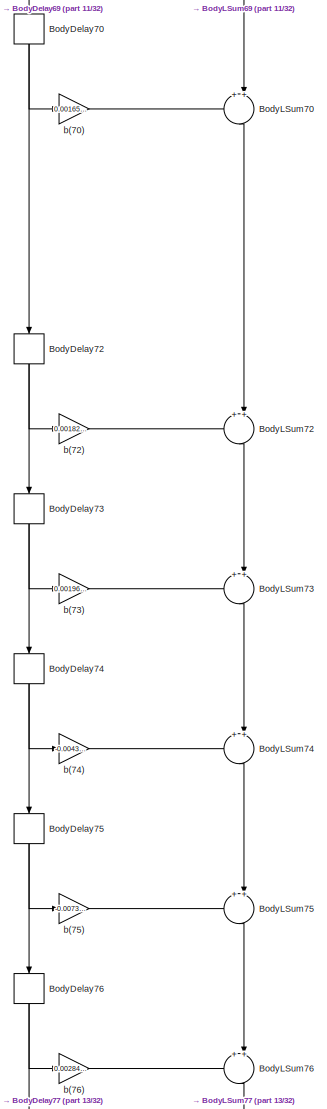
[diagram: FilterBP - part 12/32, central region]
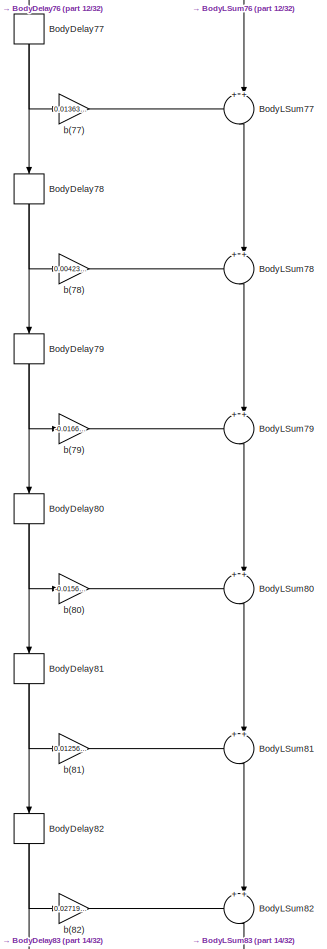
[diagram: FilterBP - part 13/32, central region]
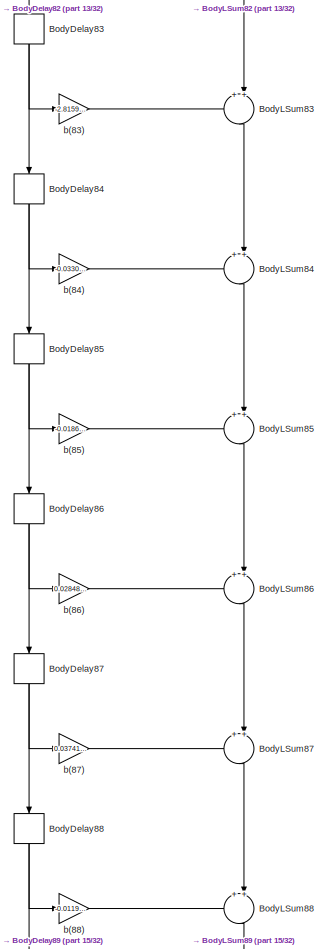
[diagram: FilterBP - part 14/32, central region]
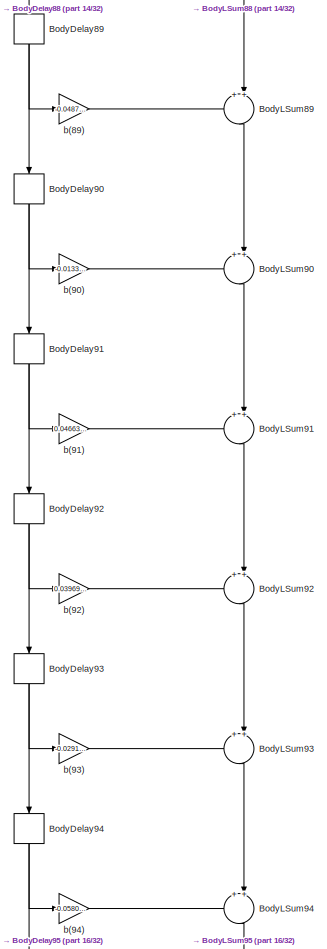
[diagram: FilterBP - part 15/32, central region]
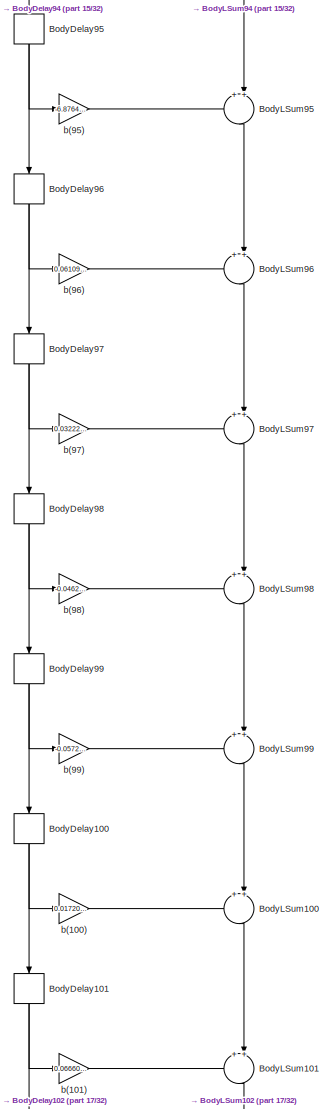
[diagram: FilterBP - part 16/32, central region]
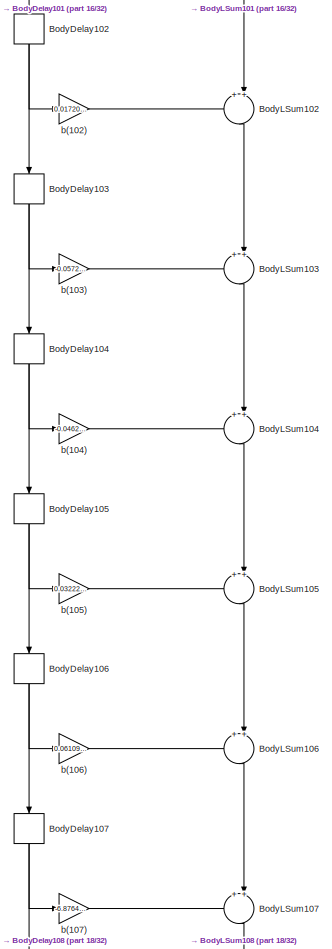
[diagram: FilterBP - part 17/32, central region]
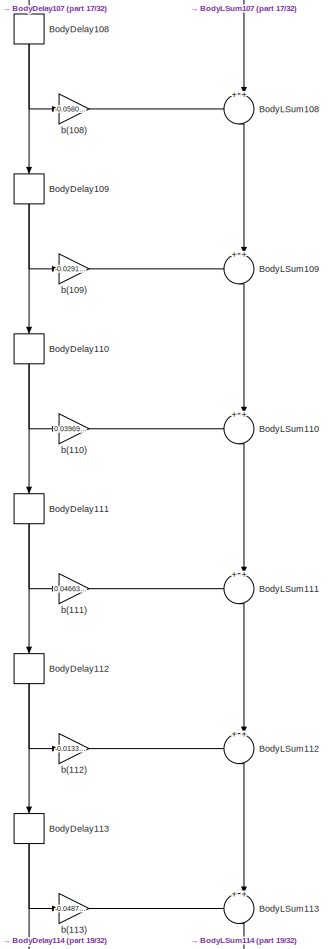
[diagram: FilterBP - part 18/32, central region]
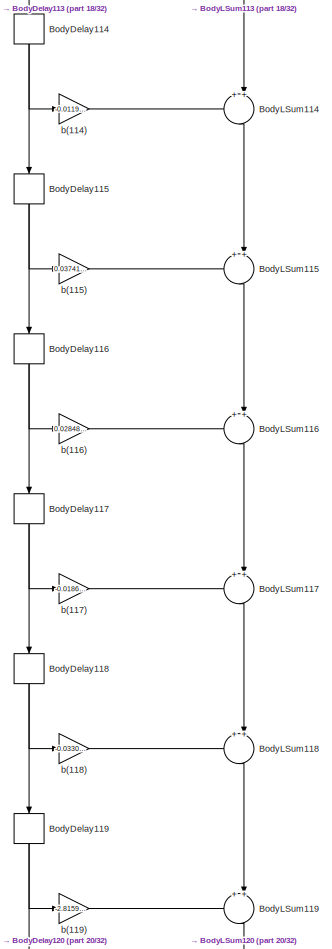
[diagram: FilterBP - part 19/32, central region]
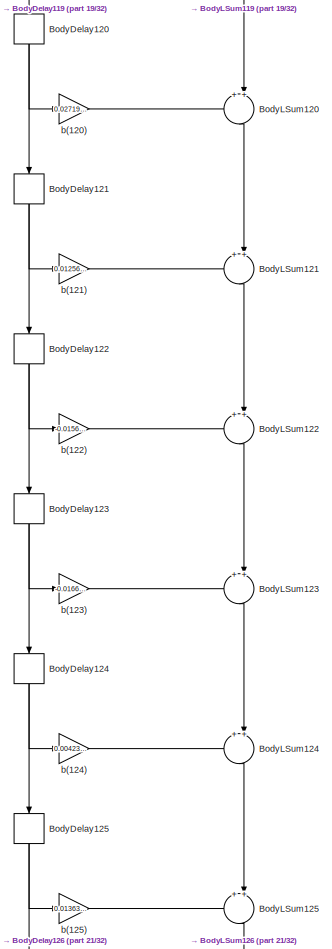
[diagram: FilterBP - part 20/32, central region]
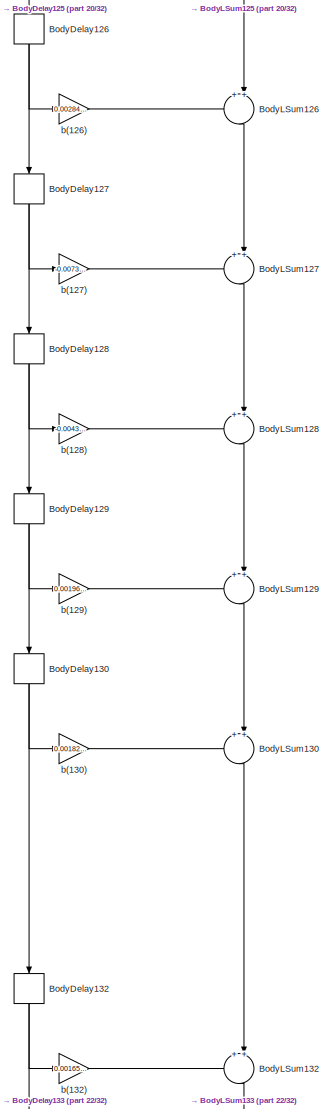
[diagram: FilterBP - part 21/32, central region]
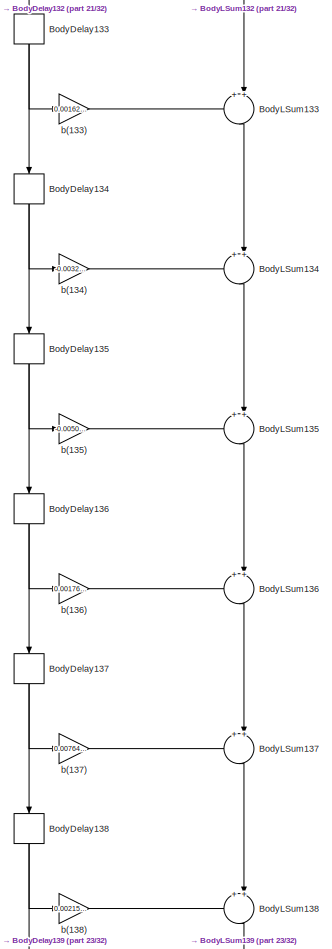
[diagram: FilterBP - part 22/32, bottom center region]
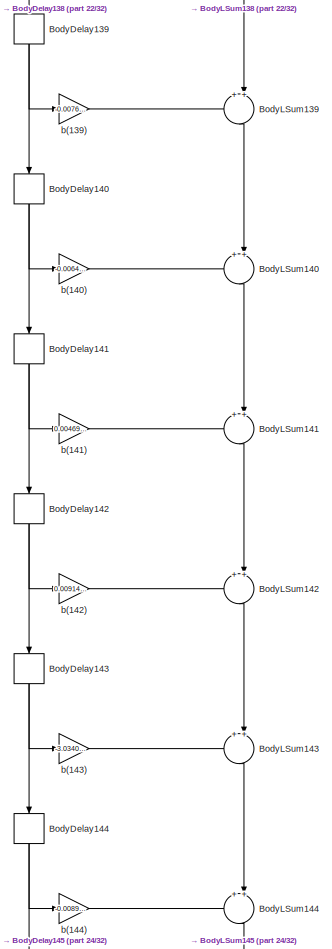
[diagram: FilterBP - part 23/32, bottom center region]
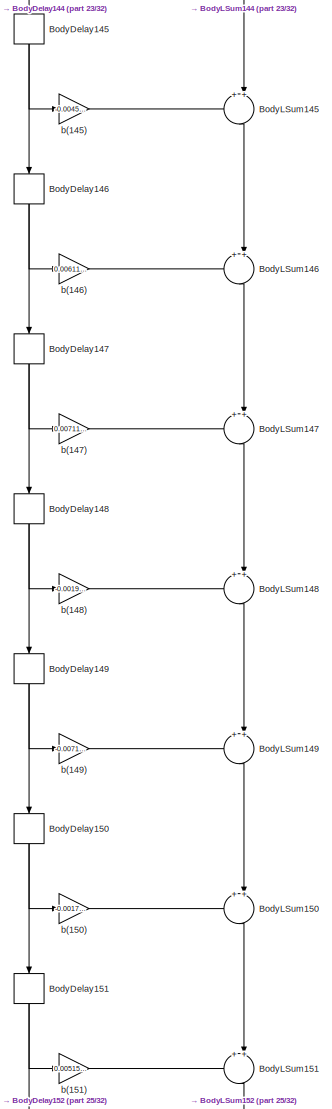
[diagram: FilterBP - part 24/32, bottom center region]
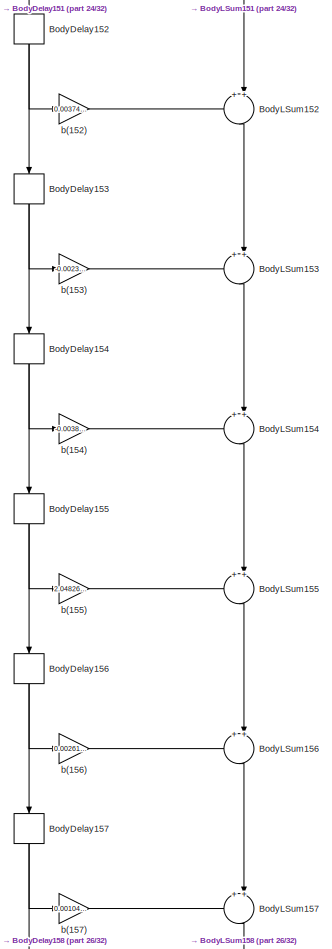
[diagram: FilterBP - part 25/32, bottom center region]
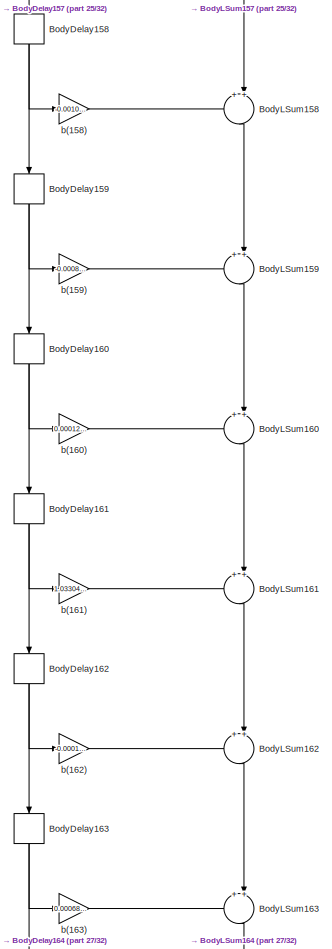
[diagram: FilterBP - part 26/32, bottom center region]
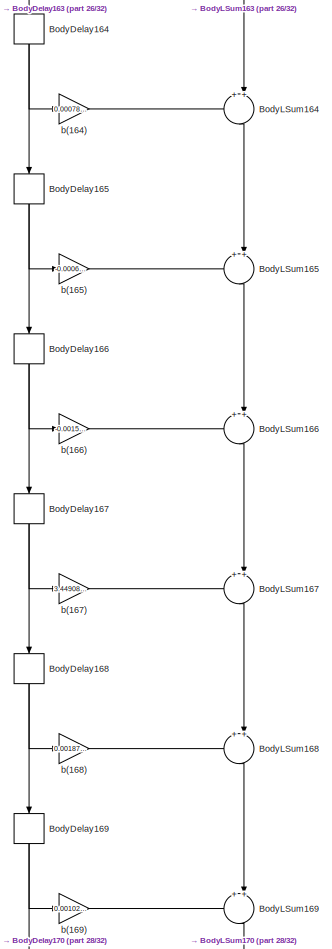
[diagram: FilterBP - part 27/32, bottom center region]
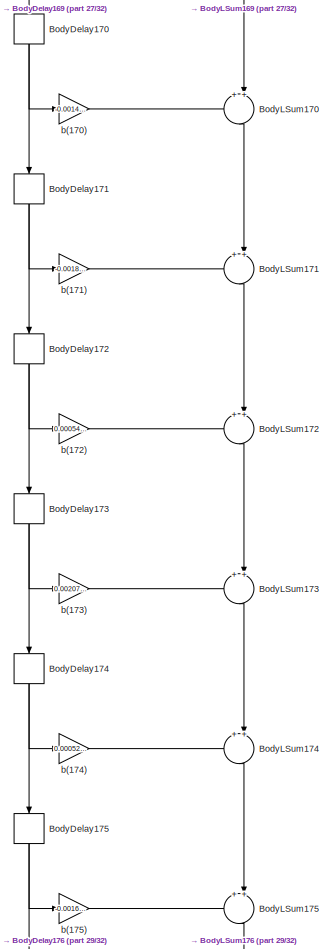
[diagram: FilterBP - part 28/32, bottom center region]
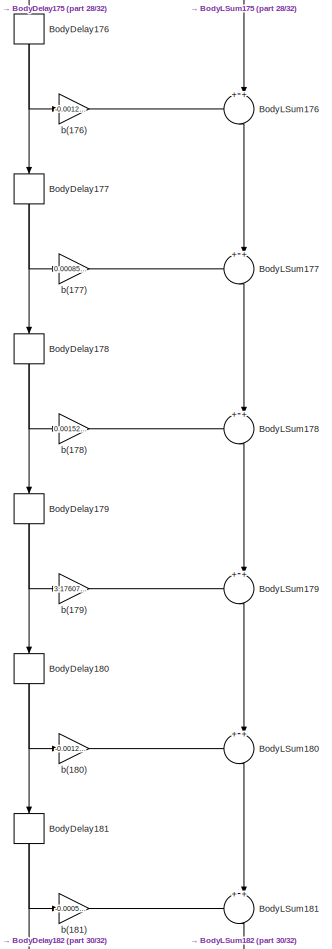
[diagram: FilterBP - part 29/32, bottom center region]
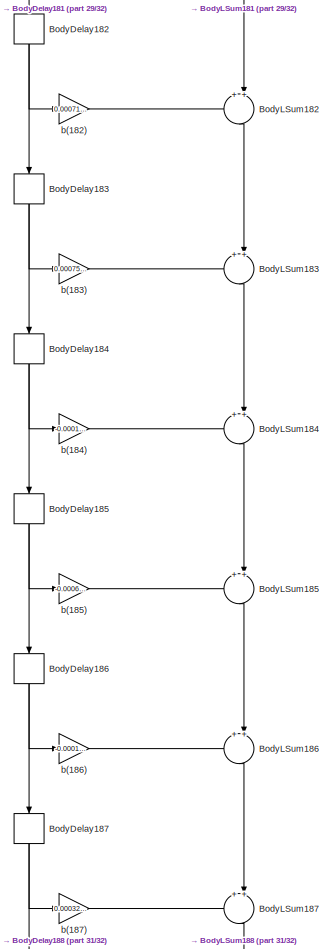
[diagram: FilterBP - part 30/32, bottom center region]
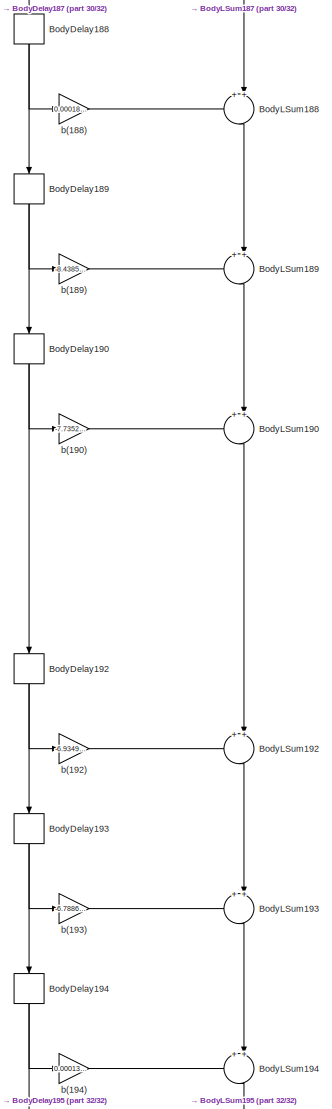
[diagram: FilterBP - part 31/32, bottom center region]
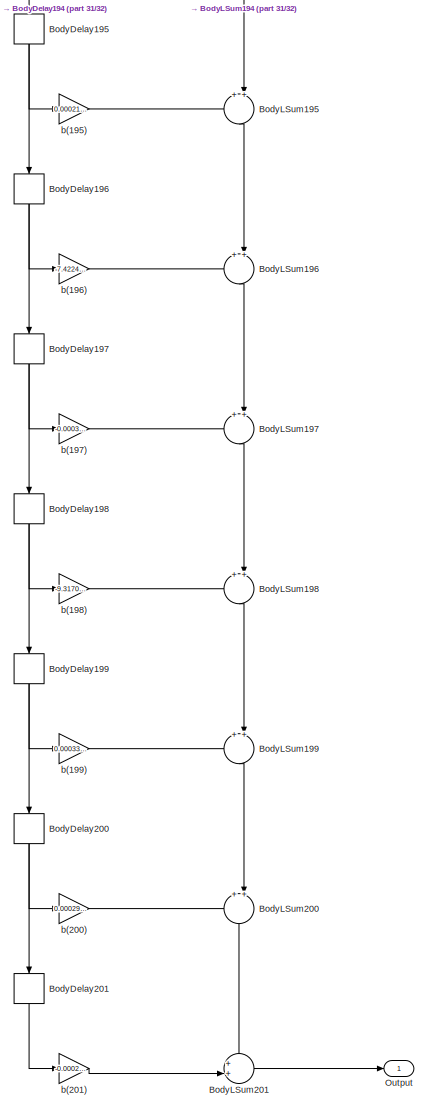
[diagram: FilterBP - part 32/32, full width, bottom band]
BLOCK [SubSystem] FilterBP
  Commented = on
  ErrorFcn = dspFilterRealizedInBasicElemsAlgLoopErrFcnCallback
  Ports = [1, 1]
  RequestExecContextInheritance = off
  Tag = FilterWizardSubSystem
  UserDataPersistent = on
BLOCK [Delay] FilterBP/BodyDelay10
  DelayLength = 1
  InitialCondition = 0
  InputPortMap = u0
  InputProcessing = Columns as channels (frame based)
  Ports = [1, 1]
BLOCK [Delay] FilterBP/BodyDelay100
  DelayLength = 1
  InitialCondition = 0
  InputPortMap = u0
  InputProcessing = Columns as channels (frame based)
  Ports = [1, 1]
BLOCK [Delay] FilterBP/BodyDelay101
  DelayLength = 1
  InitialCondition = 0
  InputPortMap = u0
  InputProcessing = Columns as channels (frame based)
  Ports = [1, 1]
BLOCK [Delay] FilterBP/BodyDelay102
  DelayLength = 1
  InitialCondition = 0
  InputPortMap = u0
  InputProcessing = Columns as channels (frame based)
  Ports = [1, 1]
BLOCK [Delay] FilterBP/BodyDelay103
  DelayLength = 1
  InitialCondition = 0
  InputPortMap = u0
  InputProcessing = Columns as channels (frame based)
  Ports = [1, 1]
BLOCK [Delay] FilterBP/BodyDelay104
  DelayLength = 1
  InitialCondition = 0
  InputPortMap = u0
  InputProcessing = Columns as channels (frame based)
  Ports = [1, 1]
BLOCK [Delay] FilterBP/BodyDelay105
  DelayLength = 1
  InitialCondition = 0
  InputPortMap = u0
  InputProcessing = Columns as channels (frame based)
  Ports = [1, 1]
BLOCK [Delay] FilterBP/BodyDelay106
  DelayLength = 1
  InitialCondition = 0
  InputPortMap = u0
  InputProcessing = Columns as channels (frame based)
  Ports = [1, 1]
BLOCK [Delay] FilterBP/BodyDelay107
  DelayLength = 1
  InitialCondition = 0
  InputPortMap = u0
  InputProcessing = Columns as channels (frame based)
  Ports = [1, 1]
BLOCK [Delay] FilterBP/BodyDelay108
  DelayLength = 1
  InitialCondition = 0
  InputPortMap = u0
  InputProcessing = Columns as channels (frame based)
  Ports = [1, 1]
BLOCK [Delay] FilterBP/BodyDelay109
  DelayLength = 1
  InitialCondition = 0
  InputPortMap = u0
  InputProcessing = Columns as channels (frame based)
  Ports = [1, 1]
BLOCK [Delay] FilterBP/BodyDelay110
  DelayLength = 1
  InitialCondition = 0
  InputPortMap = u0
  InputProcessing = Columns as channels (frame based)
  Ports = [1, 1]
BLOCK [Delay] FilterBP/BodyDelay111
  DelayLength = 1
  InitialCondition = 0
  InputPortMap = u0
  InputProcessing = Columns as channels (frame based)
  Ports = [1, 1]
BLOCK [Delay] FilterBP/BodyDelay112
  DelayLength = 1
  InitialCondition = 0
  InputPortMap = u0
  InputProcessing = Columns as channels (frame based)
  Ports = [1, 1]
BLOCK [Delay] FilterBP/BodyDelay113
  DelayLength = 1
  InitialCondition = 0
  InputPortMap = u0
  InputProcessing = Columns as channels (frame based)
  Ports = [1, 1]
BLOCK [Delay] FilterBP/BodyDelay114
  DelayLength = 1
  InitialCondition = 0
  InputPortMap = u0
  InputProcessing = Columns as channels (frame based)
  Ports = [1, 1]
BLOCK [Delay] FilterBP/BodyDelay115
  DelayLength = 1
  InitialCondition = 0
  InputPortMap = u0
  InputProcessing = Columns as channels (frame based)
  Ports = [1, 1]
BLOCK [Delay] FilterBP/BodyDelay116
  DelayLength = 1
  InitialCondition = 0
  InputPortMap = u0
  InputProcessing = Columns as channels (frame based)
  Ports = [1, 1]
BLOCK [Delay] FilterBP/BodyDelay117
  DelayLength = 1
  InitialCondition = 0
  InputPortMap = u0
  InputProcessing = Columns as channels (frame based)
  Ports = [1, 1]
BLOCK [Delay] FilterBP/BodyDelay118
  DelayLength = 1
  InitialCondition = 0
  InputPortMap = u0
  InputProcessing = Columns as channels (frame based)
  Ports = [1, 1]
BLOCK [Delay] FilterBP/BodyDelay119
  DelayLength = 1
  InitialCondition = 0
  InputPortMap = u0
  InputProcessing = Columns as channels (frame based)
  Ports = [1, 1]
BLOCK [Delay] FilterBP/BodyDelay12
  InitialCondition = 0
  InputPortMap = u0
  InputProcessing = Columns as channels (frame based)
  Ports = [1, 1]
BLOCK [Delay] FilterBP/BodyDelay120
  DelayLength = 1
  InitialCondition = 0
  InputPortMap = u0
  InputProcessing = Columns as channels (frame based)
  Ports = [1, 1]
BLOCK [Delay] FilterBP/BodyDelay121
  DelayLength = 1
  InitialCondition = 0
  InputPortMap = u0
  InputProcessing = Columns as channels (frame based)
  Ports = [1, 1]
BLOCK [Delay] FilterBP/BodyDelay122
  DelayLength = 1
  InitialCondition = 0
  InputPortMap = u0
  InputProcessing = Columns as channels (frame based)
  Ports = [1, 1]
BLOCK [Delay] FilterBP/BodyDelay123
  DelayLength = 1
  InitialCondition = 0
  InputPortMap = u0
  InputProcessing = Columns as channels (frame based)
  Ports = [1, 1]
BLOCK [Delay] FilterBP/BodyDelay124
  DelayLength = 1
  InitialCondition = 0
  InputPortMap = u0
  InputProcessing = Columns as channels (frame based)
  Ports = [1, 1]
BLOCK [Delay] FilterBP/BodyDelay125
  DelayLength = 1
  InitialCondition = 0
  InputPortMap = u0
  InputProcessing = Columns as channels (frame based)
  Ports = [1, 1]
BLOCK [Delay] FilterBP/BodyDelay126
  DelayLength = 1
  InitialCondition = 0
  InputPortMap = u0
  InputProcessing = Columns as channels (frame based)
  Ports = [1, 1]
BLOCK [Delay] FilterBP/BodyDelay127
  DelayLength = 1
  InitialCondition = 0
  InputPortMap = u0
  InputProcessing = Columns as channels (frame based)
  Ports = [1, 1]
BLOCK [Delay] FilterBP/BodyDelay128
  DelayLength = 1
  InitialCondition = 0
  InputPortMap = u0
  InputProcessing = Columns as channels (frame based)
  Ports = [1, 1]
BLOCK [Delay] FilterBP/BodyDelay129
  DelayLength = 1
  InitialCondition = 0
  InputPortMap = u0
  InputProcessing = Columns as channels (frame based)
  Ports = [1, 1]
BLOCK [Delay] FilterBP/BodyDelay13
  DelayLength = 1
  InitialCondition = 0
  InputPortMap = u0
  InputProcessing = Columns as channels (frame based)
  Ports = [1, 1]
BLOCK [Delay] FilterBP/BodyDelay130
  DelayLength = 1
  InitialCondition = 0
  InputPortMap = u0
  InputProcessing = Columns as channels (frame based)
  Ports = [1, 1]
BLOCK [Delay] FilterBP/BodyDelay132
  InitialCondition = 0
  InputPortMap = u0
  InputProcessing = Columns as channels (frame based)
  Ports = [1, 1]
BLOCK [Delay] FilterBP/BodyDelay133
  DelayLength = 1
  InitialCondition = 0
  InputPortMap = u0
  InputProcessing = Columns as channels (frame based)
  Ports = [1, 1]
BLOCK [Delay] FilterBP/BodyDelay134
  DelayLength = 1
  InitialCondition = 0
  InputPortMap = u0
  InputProcessing = Columns as channels (frame based)
  Ports = [1, 1]
BLOCK [Delay] FilterBP/BodyDelay135
  DelayLength = 1
  InitialCondition = 0
  InputPortMap = u0
  InputProcessing = Columns as channels (frame based)
  Ports = [1, 1]
BLOCK [Delay] FilterBP/BodyDelay136
  DelayLength = 1
  InitialCondition = 0
  InputPortMap = u0
  InputProcessing = Columns as channels (frame based)
  Ports = [1, 1]
BLOCK [Delay] FilterBP/BodyDelay137
  DelayLength = 1
  InitialCondition = 0
  InputPortMap = u0
  InputProcessing = Columns as channels (frame based)
  Ports = [1, 1]
BLOCK [Delay] FilterBP/BodyDelay138
  DelayLength = 1
  InitialCondition = 0
  InputPortMap = u0
  InputProcessing = Columns as channels (frame based)
  Ports = [1, 1]
BLOCK [Delay] FilterBP/BodyDelay139
  DelayLength = 1
  InitialCondition = 0
  InputPortMap = u0
  InputProcessing = Columns as channels (frame based)
  Ports = [1, 1]
BLOCK [Delay] FilterBP/BodyDelay14
  DelayLength = 1
  InitialCondition = 0
  InputPortMap = u0
  InputProcessing = Columns as channels (frame based)
  Ports = [1, 1]
BLOCK [Delay] FilterBP/BodyDelay140
  DelayLength = 1
  InitialCondition = 0
  InputPortMap = u0
  InputProcessing = Columns as channels (frame based)
  Ports = [1, 1]
BLOCK [Delay] FilterBP/BodyDelay141
  DelayLength = 1
  InitialCondition = 0
  InputPortMap = u0
  InputProcessing = Columns as channels (frame based)
  Ports = [1, 1]
BLOCK [Delay] FilterBP/BodyDelay142
  DelayLength = 1
  InitialCondition = 0
  InputPortMap = u0
  InputProcessing = Columns as channels (frame based)
  Ports = [1, 1]
BLOCK [Delay] FilterBP/BodyDelay143
  DelayLength = 1
  InitialCondition = 0
  InputPortMap = u0
  InputProcessing = Columns as channels (frame based)
  Ports = [1, 1]
BLOCK [Delay] FilterBP/BodyDelay144
  DelayLength = 1
  InitialCondition = 0
  InputPortMap = u0
  InputProcessing = Columns as channels (frame based)
  Ports = [1, 1]
BLOCK [Delay] FilterBP/BodyDelay145
  DelayLength = 1
  InitialCondition = 0
  InputPortMap = u0
  InputProcessing = Columns as channels (frame based)
  Ports = [1, 1]
BLOCK [Delay] FilterBP/BodyDelay146
  DelayLength = 1
  InitialCondition = 0
  InputPortMap = u0
  InputProcessing = Columns as channels (frame based)
  Ports = [1, 1]
BLOCK [Delay] FilterBP/BodyDelay147
  DelayLength = 1
  InitialCondition = 0
  InputPortMap = u0
  InputProcessing = Columns as channels (frame based)
  Ports = [1, 1]
BLOCK [Delay] FilterBP/BodyDelay148
  DelayLength = 1
  InitialCondition = 0
  InputPortMap = u0
  InputProcessing = Columns as channels (frame based)
  Ports = [1, 1]
BLOCK [Delay] FilterBP/BodyDelay149
  DelayLength = 1
  InitialCondition = 0
  InputPortMap = u0
  InputProcessing = Columns as channels (frame based)
  Ports = [1, 1]
BLOCK [Delay] FilterBP/BodyDelay15
  DelayLength = 1
  InitialCondition = 0
  InputPortMap = u0
  InputProcessing = Columns as channels (frame based)
  Ports = [1, 1]
BLOCK [Delay] FilterBP/BodyDelay150
  DelayLength = 1
  InitialCondition = 0
  InputPortMap = u0
  InputProcessing = Columns as channels (frame based)
  Ports = [1, 1]
BLOCK [Delay] FilterBP/BodyDelay151
  DelayLength = 1
  InitialCondition = 0
  InputPortMap = u0
  InputProcessing = Columns as channels (frame based)
  Ports = [1, 1]
BLOCK [Delay] FilterBP/BodyDelay152
  DelayLength = 1
  InitialCondition = 0
  InputPortMap = u0
  InputProcessing = Columns as channels (frame based)
  Ports = [1, 1]
BLOCK [Delay] FilterBP/BodyDelay153
  DelayLength = 1
  InitialCondition = 0
  InputPortMap = u0
  InputProcessing = Columns as channels (frame based)
  Ports = [1, 1]
BLOCK [Delay] FilterBP/BodyDelay154
  DelayLength = 1
  InitialCondition = 0
  InputPortMap = u0
  InputProcessing = Columns as channels (frame based)
  Ports = [1, 1]
BLOCK [Delay] FilterBP/BodyDelay155
  DelayLength = 1
  InitialCondition = 0
  InputPortMap = u0
  InputProcessing = Columns as channels (frame based)
  Ports = [1, 1]
BLOCK [Delay] FilterBP/BodyDelay156
  DelayLength = 1
  InitialCondition = 0
  InputPortMap = u0
  InputProcessing = Columns as channels (frame based)
  Ports = [1, 1]
BLOCK [Delay] FilterBP/BodyDelay157
  DelayLength = 1
  InitialCondition = 0
  InputPortMap = u0
  InputProcessing = Columns as channels (frame based)
  Ports = [1, 1]
BLOCK [Delay] FilterBP/BodyDelay158
  DelayLength = 1
  InitialCondition = 0
  InputPortMap = u0
  InputProcessing = Columns as channels (frame based)
  Ports = [1, 1]
BLOCK [Delay] FilterBP/BodyDelay159
  DelayLength = 1
  InitialCondition = 0
  InputPortMap = u0
  InputProcessing = Columns as channels (frame based)
  Ports = [1, 1]
BLOCK [Delay] FilterBP/BodyDelay16
  DelayLength = 1
  InitialCondition = 0
  InputPortMap = u0
  InputProcessing = Columns as channels (frame based)
  Ports = [1, 1]
BLOCK [Delay] FilterBP/BodyDelay160
  DelayLength = 1
  InitialCondition = 0
  InputPortMap = u0
  InputProcessing = Columns as channels (frame based)
  Ports = [1, 1]
BLOCK [Delay] FilterBP/BodyDelay161
  DelayLength = 1
  InitialCondition = 0
  InputPortMap = u0
  InputProcessing = Columns as channels (frame based)
  Ports = [1, 1]
BLOCK [Delay] FilterBP/BodyDelay162
  DelayLength = 1
  InitialCondition = 0
  InputPortMap = u0
  InputProcessing = Columns as channels (frame based)
  Ports = [1, 1]
BLOCK [Delay] FilterBP/BodyDelay163
  DelayLength = 1
  InitialCondition = 0
  InputPortMap = u0
  InputProcessing = Columns as channels (frame based)
  Ports = [1, 1]
BLOCK [Delay] FilterBP/BodyDelay164
  DelayLength = 1
  InitialCondition = 0
  InputPortMap = u0
  InputProcessing = Columns as channels (frame based)
  Ports = [1, 1]
BLOCK [Delay] FilterBP/BodyDelay165
  DelayLength = 1
  InitialCondition = 0
  InputPortMap = u0
  InputProcessing = Columns as channels (frame based)
  Ports = [1, 1]
BLOCK [Delay] FilterBP/BodyDelay166
  DelayLength = 1
  InitialCondition = 0
  InputPortMap = u0
  InputProcessing = Columns as channels (frame based)
  Ports = [1, 1]
BLOCK [Delay] FilterBP/BodyDelay167
  DelayLength = 1
  InitialCondition = 0
  InputPortMap = u0
  InputProcessing = Columns as channels (frame based)
  Ports = [1, 1]
BLOCK [Delay] FilterBP/BodyDelay168
  DelayLength = 1
  InitialCondition = 0
  InputPortMap = u0
  InputProcessing = Columns as channels (frame based)
  Ports = [1, 1]
BLOCK [Delay] FilterBP/BodyDelay169
  DelayLength = 1
  InitialCondition = 0
  InputPortMap = u0
  InputProcessing = Columns as channels (frame based)
  Ports = [1, 1]
BLOCK [Delay] FilterBP/BodyDelay17
  DelayLength = 1
  InitialCondition = 0
  InputPortMap = u0
  InputProcessing = Columns as channels (frame based)
  Ports = [1, 1]
BLOCK [Delay] FilterBP/BodyDelay170
  DelayLength = 1
  InitialCondition = 0
  InputPortMap = u0
  InputProcessing = Columns as channels (frame based)
  Ports = [1, 1]
BLOCK [Delay] FilterBP/BodyDelay171
  DelayLength = 1
  InitialCondition = 0
  InputPortMap = u0
  InputProcessing = Columns as channels (frame based)
  Ports = [1, 1]
BLOCK [Delay] FilterBP/BodyDelay172
  DelayLength = 1
  InitialCondition = 0
  InputPortMap = u0
  InputProcessing = Columns as channels (frame based)
  Ports = [1, 1]
BLOCK [Delay] FilterBP/BodyDelay173
  DelayLength = 1
  InitialCondition = 0
  InputPortMap = u0
  InputProcessing = Columns as channels (frame based)
  Ports = [1, 1]
BLOCK [Delay] FilterBP/BodyDelay174
  DelayLength = 1
  InitialCondition = 0
  InputPortMap = u0
  InputProcessing = Columns as channels (frame based)
  Ports = [1, 1]
BLOCK [Delay] FilterBP/BodyDelay175
  DelayLength = 1
  InitialCondition = 0
  InputPortMap = u0
  InputProcessing = Columns as channels (frame based)
  Ports = [1, 1]
BLOCK [Delay] FilterBP/BodyDelay176
  DelayLength = 1
  InitialCondition = 0
  InputPortMap = u0
  InputProcessing = Columns as channels (frame based)
  Ports = [1, 1]
BLOCK [Delay] FilterBP/BodyDelay177
  DelayLength = 1
  InitialCondition = 0
  InputPortMap = u0
  InputProcessing = Columns as channels (frame based)
  Ports = [1, 1]
BLOCK [Delay] FilterBP/BodyDelay178
  DelayLength = 1
  InitialCondition = 0
  InputPortMap = u0
  InputProcessing = Columns as channels (frame based)
  Ports = [1, 1]
BLOCK [Delay] FilterBP/BodyDelay179
  DelayLength = 1
  InitialCondition = 0
  InputPortMap = u0
  InputProcessing = Columns as channels (frame based)
  Ports = [1, 1]
BLOCK [Delay] FilterBP/BodyDelay18
  DelayLength = 1
  InitialCondition = 0
  InputPortMap = u0
  InputProcessing = Columns as channels (frame based)
  Ports = [1, 1]
BLOCK [Delay] FilterBP/BodyDelay180
  DelayLength = 1
  InitialCondition = 0
  InputPortMap = u0
  InputProcessing = Columns as channels (frame based)
  Ports = [1, 1]
BLOCK [Delay] FilterBP/BodyDelay181
  DelayLength = 1
  InitialCondition = 0
  InputPortMap = u0
  InputProcessing = Columns as channels (frame based)
  Ports = [1, 1]
BLOCK [Delay] FilterBP/BodyDelay182
  DelayLength = 1
  InitialCondition = 0
  InputPortMap = u0
  InputProcessing = Columns as channels (frame based)
  Ports = [1, 1]
BLOCK [Delay] FilterBP/BodyDelay183
  DelayLength = 1
  InitialCondition = 0
  InputPortMap = u0
  InputProcessing = Columns as channels (frame based)
  Ports = [1, 1]
BLOCK [Delay] FilterBP/BodyDelay184
  DelayLength = 1
  InitialCondition = 0
  InputPortMap = u0
  InputProcessing = Columns as channels (frame based)
  Ports = [1, 1]
BLOCK [Delay] FilterBP/BodyDelay185
  DelayLength = 1
  InitialCondition = 0
  InputPortMap = u0
  InputProcessing = Columns as channels (frame based)
  Ports = [1, 1]
BLOCK [Delay] FilterBP/BodyDelay186
  DelayLength = 1
  InitialCondition = 0
  InputPortMap = u0
  InputProcessing = Columns as channels (frame based)
  Ports = [1, 1]
BLOCK [Delay] FilterBP/BodyDelay187
  DelayLength = 1
  InitialCondition = 0
  InputPortMap = u0
  InputProcessing = Columns as channels (frame based)
  Ports = [1, 1]
BLOCK [Delay] FilterBP/BodyDelay188
  DelayLength = 1
  InitialCondition = 0
  InputPortMap = u0
  InputProcessing = Columns as channels (frame based)
  Ports = [1, 1]
BLOCK [Delay] FilterBP/BodyDelay189
  DelayLength = 1
  InitialCondition = 0
  InputPortMap = u0
  InputProcessing = Columns as channels (frame based)
  Ports = [1, 1]
BLOCK [Delay] FilterBP/BodyDelay19
  DelayLength = 1
  InitialCondition = 0
  InputPortMap = u0
  InputProcessing = Columns as channels (frame based)
  Ports = [1, 1]
BLOCK [Delay] FilterBP/BodyDelay190
  DelayLength = 1
  InitialCondition = 0
  InputPortMap = u0
  InputProcessing = Columns as channels (frame based)
  Ports = [1, 1]
BLOCK [Delay] FilterBP/BodyDelay192
  InitialCondition = 0
  InputPortMap = u0
  InputProcessing = Columns as channels (frame based)
  Ports = [1, 1]
BLOCK [Delay] FilterBP/BodyDelay193
  DelayLength = 1
  InitialCondition = 0
  InputPortMap = u0
  InputProcessing = Columns as channels (frame based)
  Ports = [1, 1]
BLOCK [Delay] FilterBP/BodyDelay194
  DelayLength = 1
  InitialCondition = 0
  InputPortMap = u0
  InputProcessing = Columns as channels (frame based)
  Ports = [1, 1]
BLOCK [Delay] FilterBP/BodyDelay195
  DelayLength = 1
  InitialCondition = 0
  InputPortMap = u0
  InputProcessing = Columns as channels (frame based)
  Ports = [1, 1]
BLOCK [Delay] FilterBP/BodyDelay196
  DelayLength = 1
  InitialCondition = 0
  InputPortMap = u0
  InputProcessing = Columns as channels (frame based)
  Ports = [1, 1]
BLOCK [Delay] FilterBP/BodyDelay197
  DelayLength = 1
  InitialCondition = 0
  InputPortMap = u0
  InputProcessing = Columns as channels (frame based)
  Ports = [1, 1]
BLOCK [Delay] FilterBP/BodyDelay198
  DelayLength = 1
  InitialCondition = 0
  InputPortMap = u0
  InputProcessing = Columns as channels (frame based)
  Ports = [1, 1]
BLOCK [Delay] FilterBP/BodyDelay199
  DelayLength = 1
  InitialCondition = 0
  InputPortMap = u0
  InputProcessing = Columns as channels (frame based)
  Ports = [1, 1]
BLOCK [Delay] FilterBP/BodyDelay2
  DelayLength = 1
  InitialCondition = 0
  InputPortMap = u0
  InputProcessing = Columns as channels (frame based)
  Ports = [1, 1]
BLOCK [Delay] FilterBP/BodyDelay20
  DelayLength = 1
  InitialCondition = 0
  InputPortMap = u0
  InputProcessing = Columns as channels (frame based)
  Ports = [1, 1]
BLOCK [Delay] FilterBP/BodyDelay200
  DelayLength = 1
  InitialCondition = 0
  InputPortMap = u0
  InputProcessing = Columns as channels (frame based)
  Ports = [1, 1]
BLOCK [Delay] FilterBP/BodyDelay201
  DelayLength = 1
  InitialCondition = 0
  InputPortMap = u0
  InputProcessing = Columns as channels (frame based)
  Ports = [1, 1]
BLOCK [Delay] FilterBP/BodyDelay21
  DelayLength = 1
  InitialCondition = 0
  InputPortMap = u0
  InputProcessing = Columns as channels (frame based)
  Ports = [1, 1]
BLOCK [Delay] FilterBP/BodyDelay22
  DelayLength = 1
  InitialCondition = 0
  InputPortMap = u0
  InputProcessing = Columns as channels (frame based)
  Ports = [1, 1]
BLOCK [Delay] FilterBP/BodyDelay23
  DelayLength = 1
  InitialCondition = 0
  InputPortMap = u0
  InputProcessing = Columns as channels (frame based)
  Ports = [1, 1]
BLOCK [Delay] FilterBP/BodyDelay24
  DelayLength = 1
  InitialCondition = 0
  InputPortMap = u0
  InputProcessing = Columns as channels (frame based)
  Ports = [1, 1]
BLOCK [Delay] FilterBP/BodyDelay25
  DelayLength = 1
  InitialCondition = 0
  InputPortMap = u0
  InputProcessing = Columns as channels (frame based)
  Ports = [1, 1]
BLOCK [Delay] FilterBP/BodyDelay26
  DelayLength = 1
  InitialCondition = 0
  InputPortMap = u0
  InputProcessing = Columns as channels (frame based)
  Ports = [1, 1]
BLOCK [Delay] FilterBP/BodyDelay27
  DelayLength = 1
  InitialCondition = 0
  InputPortMap = u0
  InputProcessing = Columns as channels (frame based)
  Ports = [1, 1]
BLOCK [Delay] FilterBP/BodyDelay28
  DelayLength = 1
  InitialCondition = 0
  InputPortMap = u0
  InputProcessing = Columns as channels (frame based)
  Ports = [1, 1]
BLOCK [Delay] FilterBP/BodyDelay29
  DelayLength = 1
  InitialCondition = 0
  InputPortMap = u0
  InputProcessing = Columns as channels (frame based)
  Ports = [1, 1]
BLOCK [Delay] FilterBP/BodyDelay3
  DelayLength = 1
  InitialCondition = 0
  InputPortMap = u0
  InputProcessing = Columns as channels (frame based)
  Ports = [1, 1]
BLOCK [Delay] FilterBP/BodyDelay30
  DelayLength = 1
  InitialCondition = 0
  InputPortMap = u0
  InputProcessing = Columns as channels (frame based)
  Ports = [1, 1]
BLOCK [Delay] FilterBP/BodyDelay31
  DelayLength = 1
  InitialCondition = 0
  InputPortMap = u0
  InputProcessing = Columns as channels (frame based)
  Ports = [1, 1]
BLOCK [Delay] FilterBP/BodyDelay32
  DelayLength = 1
  InitialCondition = 0
  InputPortMap = u0
  InputProcessing = Columns as channels (frame based)
  Ports = [1, 1]
BLOCK [Delay] FilterBP/BodyDelay33
  DelayLength = 1
  InitialCondition = 0
  InputPortMap = u0
  InputProcessing = Columns as channels (frame based)
  Ports = [1, 1]
BLOCK [Delay] FilterBP/BodyDelay34
  DelayLength = 1
  InitialCondition = 0
  InputPortMap = u0
  InputProcessing = Columns as channels (frame based)
  Ports = [1, 1]
BLOCK [Delay] FilterBP/BodyDelay35
  DelayLength = 1
  InitialCondition = 0
  InputPortMap = u0
  InputProcessing = Columns as channels (frame based)
  Ports = [1, 1]
BLOCK [Delay] FilterBP/BodyDelay36
  DelayLength = 1
  InitialCondition = 0
  InputPortMap = u0
  InputProcessing = Columns as channels (frame based)
  Ports = [1, 1]
BLOCK [Delay] FilterBP/BodyDelay37
  DelayLength = 1
  InitialCondition = 0
  InputPortMap = u0
  InputProcessing = Columns as channels (frame based)
  Ports = [1, 1]
BLOCK [Delay] FilterBP/BodyDelay38
  DelayLength = 1
  InitialCondition = 0
  InputPortMap = u0
  InputProcessing = Columns as channels (frame based)
  Ports = [1, 1]
BLOCK [Delay] FilterBP/BodyDelay39
  DelayLength = 1
  InitialCondition = 0
  InputPortMap = u0
  InputProcessing = Columns as channels (frame based)
  Ports = [1, 1]
BLOCK [Delay] FilterBP/BodyDelay4
  DelayLength = 1
  InitialCondition = 0
  InputPortMap = u0
  InputProcessing = Columns as channels (frame based)
  Ports = [1, 1]
BLOCK [Delay] FilterBP/BodyDelay40
  DelayLength = 1
  InitialCondition = 0
  InputPortMap = u0
  InputProcessing = Columns as channels (frame based)
  Ports = [1, 1]
BLOCK [Delay] FilterBP/BodyDelay41
  DelayLength = 1
  InitialCondition = 0
  InputPortMap = u0
  InputProcessing = Columns as channels (frame based)
  Ports = [1, 1]
BLOCK [Delay] FilterBP/BodyDelay42
  DelayLength = 1
  InitialCondition = 0
  InputPortMap = u0
  InputProcessing = Columns as channels (frame based)
  Ports = [1, 1]
BLOCK [Delay] FilterBP/BodyDelay43
  DelayLength = 1
  InitialCondition = 0
  InputPortMap = u0
  InputProcessing = Columns as channels (frame based)
  Ports = [1, 1]
BLOCK [Delay] FilterBP/BodyDelay44
  DelayLength = 1
  InitialCondition = 0
  InputPortMap = u0
  InputProcessing = Columns as channels (frame based)
  Ports = [1, 1]
BLOCK [Delay] FilterBP/BodyDelay45
  DelayLength = 1
  InitialCondition = 0
  InputPortMap = u0
  InputProcessing = Columns as channels (frame based)
  Ports = [1, 1]
BLOCK [Delay] FilterBP/BodyDelay46
  DelayLength = 1
  InitialCondition = 0
  InputPortMap = u0
  InputProcessing = Columns as channels (frame based)
  Ports = [1, 1]
BLOCK [Delay] FilterBP/BodyDelay47
  DelayLength = 1
  InitialCondition = 0
  InputPortMap = u0
  InputProcessing = Columns as channels (frame based)
  Ports = [1, 1]
BLOCK [Delay] FilterBP/BodyDelay48
  DelayLength = 1
  InitialCondition = 0
  InputPortMap = u0
  InputProcessing = Columns as channels (frame based)
  Ports = [1, 1]
BLOCK [Delay] FilterBP/BodyDelay49
  DelayLength = 1
  InitialCondition = 0
  InputPortMap = u0
  InputProcessing = Columns as channels (frame based)
  Ports = [1, 1]
BLOCK [Delay] FilterBP/BodyDelay5
  DelayLength = 1
  InitialCondition = 0
  InputPortMap = u0
  InputProcessing = Columns as channels (frame based)
  Ports = [1, 1]
BLOCK [Delay] FilterBP/BodyDelay50
  DelayLength = 1
  InitialCondition = 0
  InputPortMap = u0
  InputProcessing = Columns as channels (frame based)
  Ports = [1, 1]
BLOCK [Delay] FilterBP/BodyDelay51
  DelayLength = 1
  InitialCondition = 0
  InputPortMap = u0
  InputProcessing = Columns as channels (frame based)
  Ports = [1, 1]
BLOCK [Delay] FilterBP/BodyDelay52
  DelayLength = 1
  InitialCondition = 0
  InputPortMap = u0
  InputProcessing = Columns as channels (frame based)
  Ports = [1, 1]
BLOCK [Delay] FilterBP/BodyDelay53
  DelayLength = 1
  InitialCondition = 0
  InputPortMap = u0
  InputProcessing = Columns as channels (frame based)
  Ports = [1, 1]
BLOCK [Delay] FilterBP/BodyDelay54
  DelayLength = 1
  InitialCondition = 0
  InputPortMap = u0
  InputProcessing = Columns as channels (frame based)
  Ports = [1, 1]
BLOCK [Delay] FilterBP/BodyDelay55
  DelayLength = 1
  InitialCondition = 0
  InputPortMap = u0
  InputProcessing = Columns as channels (frame based)
  Ports = [1, 1]
BLOCK [Delay] FilterBP/BodyDelay56
  DelayLength = 1
  InitialCondition = 0
  InputPortMap = u0
  InputProcessing = Columns as channels (frame based)
  Ports = [1, 1]
BLOCK [Delay] FilterBP/BodyDelay57
  DelayLength = 1
  InitialCondition = 0
  InputPortMap = u0
  InputProcessing = Columns as channels (frame based)
  Ports = [1, 1]
BLOCK [Delay] FilterBP/BodyDelay58
  DelayLength = 1
  InitialCondition = 0
  InputPortMap = u0
  InputProcessing = Columns as channels (frame based)
  Ports = [1, 1]
BLOCK [Delay] FilterBP/BodyDelay59
  DelayLength = 1
  InitialCondition = 0
  InputPortMap = u0
  InputProcessing = Columns as channels (frame based)
  Ports = [1, 1]
BLOCK [Delay] FilterBP/BodyDelay6
  DelayLength = 1
  InitialCondition = 0
  InputPortMap = u0
  InputProcessing = Columns as channels (frame based)
  Ports = [1, 1]
BLOCK [Delay] FilterBP/BodyDelay60
  DelayLength = 1
  InitialCondition = 0
  InputPortMap = u0
  InputProcessing = Columns as channels (frame based)
  Ports = [1, 1]
BLOCK [Delay] FilterBP/BodyDelay61
  DelayLength = 1
  InitialCondition = 0
  InputPortMap = u0
  InputProcessing = Columns as channels (frame based)
  Ports = [1, 1]
BLOCK [Delay] FilterBP/BodyDelay62
  DelayLength = 1
  InitialCondition = 0
  InputPortMap = u0
  InputProcessing = Columns as channels (frame based)
  Ports = [1, 1]
BLOCK [Delay] FilterBP/BodyDelay63
  DelayLength = 1
  InitialCondition = 0
  InputPortMap = u0
  InputProcessing = Columns as channels (frame based)
  Ports = [1, 1]
BLOCK [Delay] FilterBP/BodyDelay64
  DelayLength = 1
  InitialCondition = 0
  InputPortMap = u0
  InputProcessing = Columns as channels (frame based)
  Ports = [1, 1]
BLOCK [Delay] FilterBP/BodyDelay65
  DelayLength = 1
  InitialCondition = 0
  InputPortMap = u0
  InputProcessing = Columns as channels (frame based)
  Ports = [1, 1]
BLOCK [Delay] FilterBP/BodyDelay66
  DelayLength = 1
  InitialCondition = 0
  InputPortMap = u0
  InputProcessing = Columns as channels (frame based)
  Ports = [1, 1]
BLOCK [Delay] FilterBP/BodyDelay67
  DelayLength = 1
  InitialCondition = 0
  InputPortMap = u0
  InputProcessing = Columns as channels (frame based)
  Ports = [1, 1]
BLOCK [Delay] FilterBP/BodyDelay68
  DelayLength = 1
  InitialCondition = 0
  InputPortMap = u0
  InputProcessing = Columns as channels (frame based)
  Ports = [1, 1]
BLOCK [Delay] FilterBP/BodyDelay69
  DelayLength = 1
  InitialCondition = 0
  InputPortMap = u0
  InputProcessing = Columns as channels (frame based)
  Ports = [1, 1]
BLOCK [Delay] FilterBP/BodyDelay7
  DelayLength = 1
  InitialCondition = 0
  InputPortMap = u0
  InputProcessing = Columns as channels (frame based)
  Ports = [1, 1]
BLOCK [Delay] FilterBP/BodyDelay70
  DelayLength = 1
  InitialCondition = 0
  InputPortMap = u0
  InputProcessing = Columns as channels (frame based)
  Ports = [1, 1]
BLOCK [Delay] FilterBP/BodyDelay72
  InitialCondition = 0
  InputPortMap = u0
  InputProcessing = Columns as channels (frame based)
  Ports = [1, 1]
BLOCK [Delay] FilterBP/BodyDelay73
  DelayLength = 1
  InitialCondition = 0
  InputPortMap = u0
  InputProcessing = Columns as channels (frame based)
  Ports = [1, 1]
BLOCK [Delay] FilterBP/BodyDelay74
  DelayLength = 1
  InitialCondition = 0
  InputPortMap = u0
  InputProcessing = Columns as channels (frame based)
  Ports = [1, 1]
BLOCK [Delay] FilterBP/BodyDelay75
  DelayLength = 1
  InitialCondition = 0
  InputPortMap = u0
  InputProcessing = Columns as channels (frame based)
  Ports = [1, 1]
BLOCK [Delay] FilterBP/BodyDelay76
  DelayLength = 1
  InitialCondition = 0
  InputPortMap = u0
  InputProcessing = Columns as channels (frame based)
  Ports = [1, 1]
BLOCK [Delay] FilterBP/BodyDelay77
  DelayLength = 1
  InitialCondition = 0
  InputPortMap = u0
  InputProcessing = Columns as channels (frame based)
  Ports = [1, 1]
BLOCK [Delay] FilterBP/BodyDelay78
  DelayLength = 1
  InitialCondition = 0
  InputPortMap = u0
  InputProcessing = Columns as channels (frame based)
  Ports = [1, 1]
BLOCK [Delay] FilterBP/BodyDelay79
  DelayLength = 1
  InitialCondition = 0
  InputPortMap = u0
  InputProcessing = Columns as channels (frame based)
  Ports = [1, 1]
BLOCK [Delay] FilterBP/BodyDelay8
  DelayLength = 1
  InitialCondition = 0
  InputPortMap = u0
  InputProcessing = Columns as channels (frame based)
  Ports = [1, 1]
BLOCK [Delay] FilterBP/BodyDelay80
  DelayLength = 1
  InitialCondition = 0
  InputPortMap = u0
  InputProcessing = Columns as channels (frame based)
  Ports = [1, 1]
BLOCK [Delay] FilterBP/BodyDelay81
  DelayLength = 1
  InitialCondition = 0
  InputPortMap = u0
  InputProcessing = Columns as channels (frame based)
  Ports = [1, 1]
BLOCK [Delay] FilterBP/BodyDelay82
  DelayLength = 1
  InitialCondition = 0
  InputPortMap = u0
  InputProcessing = Columns as channels (frame based)
  Ports = [1, 1]
BLOCK [Delay] FilterBP/BodyDelay83
  DelayLength = 1
  InitialCondition = 0
  InputPortMap = u0
  InputProcessing = Columns as channels (frame based)
  Ports = [1, 1]
BLOCK [Delay] FilterBP/BodyDelay84
  DelayLength = 1
  InitialCondition = 0
  InputPortMap = u0
  InputProcessing = Columns as channels (frame based)
  Ports = [1, 1]
BLOCK [Delay] FilterBP/BodyDelay85
  DelayLength = 1
  InitialCondition = 0
  InputPortMap = u0
  InputProcessing = Columns as channels (frame based)
  Ports = [1, 1]
BLOCK [Delay] FilterBP/BodyDelay86
  DelayLength = 1
  InitialCondition = 0
  InputPortMap = u0
  InputProcessing = Columns as channels (frame based)
  Ports = [1, 1]
BLOCK [Delay] FilterBP/BodyDelay87
  DelayLength = 1
  InitialCondition = 0
  InputPortMap = u0
  InputProcessing = Columns as channels (frame based)
  Ports = [1, 1]
BLOCK [Delay] FilterBP/BodyDelay88
  DelayLength = 1
  InitialCondition = 0
  InputPortMap = u0
  InputProcessing = Columns as channels (frame based)
  Ports = [1, 1]
BLOCK [Delay] FilterBP/BodyDelay89
  DelayLength = 1
  InitialCondition = 0
  InputPortMap = u0
  InputProcessing = Columns as channels (frame based)
  Ports = [1, 1]
BLOCK [Delay] FilterBP/BodyDelay9
  DelayLength = 1
  InitialCondition = 0
  InputPortMap = u0
  InputProcessing = Columns as channels (frame based)
  Ports = [1, 1]
BLOCK [Delay] FilterBP/BodyDelay90
  DelayLength = 1
  InitialCondition = 0
  InputPortMap = u0
  InputProcessing = Columns as channels (frame based)
  Ports = [1, 1]
BLOCK [Delay] FilterBP/BodyDelay91
  DelayLength = 1
  InitialCondition = 0
  InputPortMap = u0
  InputProcessing = Columns as channels (frame based)
  Ports = [1, 1]
BLOCK [Delay] FilterBP/BodyDelay92
  DelayLength = 1
  InitialCondition = 0
  InputPortMap = u0
  InputProcessing = Columns as channels (frame based)
  Ports = [1, 1]
BLOCK [Delay] FilterBP/BodyDelay93
  DelayLength = 1
  InitialCondition = 0
  InputPortMap = u0
  InputProcessing = Columns as channels (frame based)
  Ports = [1, 1]
BLOCK [Delay] FilterBP/BodyDelay94
  DelayLength = 1
  InitialCondition = 0
  InputPortMap = u0
  InputProcessing = Columns as channels (frame based)
  Ports = [1, 1]
BLOCK [Delay] FilterBP/BodyDelay95
  DelayLength = 1
  InitialCondition = 0
  InputPortMap = u0
  InputProcessing = Columns as channels (frame based)
  Ports = [1, 1]
BLOCK [Delay] FilterBP/BodyDelay96
  DelayLength = 1
  InitialCondition = 0
  InputPortMap = u0
  InputProcessing = Columns as channels (frame based)
  Ports = [1, 1]
BLOCK [Delay] FilterBP/BodyDelay97
  DelayLength = 1
  InitialCondition = 0
  InputPortMap = u0
  InputProcessing = Columns as channels (frame based)
  Ports = [1, 1]
BLOCK [Delay] FilterBP/BodyDelay98
  DelayLength = 1
  InitialCondition = 0
  InputPortMap = u0
  InputProcessing = Columns as channels (frame based)
  Ports = [1, 1]
BLOCK [Delay] FilterBP/BodyDelay99
  DelayLength = 1
  InitialCondition = 0
  InputPortMap = u0
  InputProcessing = Columns as channels (frame based)
  Ports = [1, 1]
BLOCK [Sum] FilterBP/BodyLSum10
  IconShape = round
  InputSameDT = off
  Inputs = ++|
  Ports = [2, 1]
  RndMeth = Nearest
BLOCK [Sum] FilterBP/BodyLSum100
  IconShape = round
  InputSameDT = off
  Inputs = ++|
  Ports = [2, 1]
  RndMeth = Nearest
BLOCK [Sum] FilterBP/BodyLSum101
  IconShape = round
  InputSameDT = off
  Inputs = ++|
  Ports = [2, 1]
  RndMeth = Nearest
BLOCK [Sum] FilterBP/BodyLSum102
  IconShape = round
  InputSameDT = off
  Inputs = ++|
  Ports = [2, 1]
  RndMeth = Nearest
BLOCK [Sum] FilterBP/BodyLSum103
  IconShape = round
  InputSameDT = off
  Inputs = ++|
  Ports = [2, 1]
  RndMeth = Nearest
BLOCK [Sum] FilterBP/BodyLSum104
  IconShape = round
  InputSameDT = off
  Inputs = ++|
  Ports = [2, 1]
  RndMeth = Nearest
BLOCK [Sum] FilterBP/BodyLSum105
  IconShape = round
  InputSameDT = off
  Inputs = ++|
  Ports = [2, 1]
  RndMeth = Nearest
BLOCK [Sum] FilterBP/BodyLSum106
  IconShape = round
  InputSameDT = off
  Inputs = ++|
  Ports = [2, 1]
  RndMeth = Nearest
BLOCK [Sum] FilterBP/BodyLSum107
  IconShape = round
  InputSameDT = off
  Inputs = ++|
  Ports = [2, 1]
  RndMeth = Nearest
BLOCK [Sum] FilterBP/BodyLSum108
  IconShape = round
  InputSameDT = off
  Inputs = ++|
  Ports = [2, 1]
  RndMeth = Nearest
BLOCK [Sum] FilterBP/BodyLSum109
  IconShape = round
  InputSameDT = off
  Inputs = ++|
  Ports = [2, 1]
  RndMeth = Nearest
BLOCK [Sum] FilterBP/BodyLSum110
  IconShape = round
  InputSameDT = off
  Inputs = ++|
  Ports = [2, 1]
  RndMeth = Nearest
BLOCK [Sum] FilterBP/BodyLSum111
  IconShape = round
  InputSameDT = off
  Inputs = ++|
  Ports = [2, 1]
  RndMeth = Nearest
BLOCK [Sum] FilterBP/BodyLSum112
  IconShape = round
  InputSameDT = off
  Inputs = ++|
  Ports = [2, 1]
  RndMeth = Nearest
BLOCK [Sum] FilterBP/BodyLSum113
  IconShape = round
  InputSameDT = off
  Inputs = ++|
  Ports = [2, 1]
  RndMeth = Nearest
BLOCK [Sum] FilterBP/BodyLSum114
  IconShape = round
  InputSameDT = off
  Inputs = ++|
  Ports = [2, 1]
  RndMeth = Nearest
BLOCK [Sum] FilterBP/BodyLSum115
  IconShape = round
  InputSameDT = off
  Inputs = ++|
  Ports = [2, 1]
  RndMeth = Nearest
BLOCK [Sum] FilterBP/BodyLSum116
  IconShape = round
  InputSameDT = off
  Inputs = ++|
  Ports = [2, 1]
  RndMeth = Nearest
BLOCK [Sum] FilterBP/BodyLSum117
  IconShape = round
  InputSameDT = off
  Inputs = ++|
  Ports = [2, 1]
  RndMeth = Nearest
BLOCK [Sum] FilterBP/BodyLSum118
  IconShape = round
  InputSameDT = off
  Inputs = ++|
  Ports = [2, 1]
  RndMeth = Nearest
BLOCK [Sum] FilterBP/BodyLSum119
  IconShape = round
  InputSameDT = off
  Inputs = ++|
  Ports = [2, 1]
  RndMeth = Nearest
BLOCK [Sum] FilterBP/BodyLSum12
  IconShape = round
  InputSameDT = off
  Inputs = ++|
  Ports = [2, 1]
  RndMeth = Nearest
BLOCK [Sum] FilterBP/BodyLSum120
  IconShape = round
  InputSameDT = off
  Inputs = ++|
  Ports = [2, 1]
  RndMeth = Nearest
BLOCK [Sum] FilterBP/BodyLSum121
  IconShape = round
  InputSameDT = off
  Inputs = ++|
  Ports = [2, 1]
  RndMeth = Nearest
BLOCK [Sum] FilterBP/BodyLSum122
  IconShape = round
  InputSameDT = off
  Inputs = ++|
  Ports = [2, 1]
  RndMeth = Nearest
BLOCK [Sum] FilterBP/BodyLSum123
  IconShape = round
  InputSameDT = off
  Inputs = ++|
  Ports = [2, 1]
  RndMeth = Nearest
BLOCK [Sum] FilterBP/BodyLSum124
  IconShape = round
  InputSameDT = off
  Inputs = ++|
  Ports = [2, 1]
  RndMeth = Nearest
BLOCK [Sum] FilterBP/BodyLSum125
  IconShape = round
  InputSameDT = off
  Inputs = ++|
  Ports = [2, 1]
  RndMeth = Nearest
BLOCK [Sum] FilterBP/BodyLSum126
  IconShape = round
  InputSameDT = off
  Inputs = ++|
  Ports = [2, 1]
  RndMeth = Nearest
BLOCK [Sum] FilterBP/BodyLSum127
  IconShape = round
  InputSameDT = off
  Inputs = ++|
  Ports = [2, 1]
  RndMeth = Nearest
BLOCK [Sum] FilterBP/BodyLSum128
  IconShape = round
  InputSameDT = off
  Inputs = ++|
  Ports = [2, 1]
  RndMeth = Nearest
BLOCK [Sum] FilterBP/BodyLSum129
  IconShape = round
  InputSameDT = off
  Inputs = ++|
  Ports = [2, 1]
  RndMeth = Nearest
BLOCK [Sum] FilterBP/BodyLSum13
  IconShape = round
  InputSameDT = off
  Inputs = ++|
  Ports = [2, 1]
  RndMeth = Nearest
BLOCK [Sum] FilterBP/BodyLSum130
  IconShape = round
  InputSameDT = off
  Inputs = ++|
  Ports = [2, 1]
  RndMeth = Nearest
BLOCK [Sum] FilterBP/BodyLSum132
  IconShape = round
  InputSameDT = off
  Inputs = ++|
  Ports = [2, 1]
  RndMeth = Nearest
BLOCK [Sum] FilterBP/BodyLSum133
  IconShape = round
  InputSameDT = off
  Inputs = ++|
  Ports = [2, 1]
  RndMeth = Nearest
BLOCK [Sum] FilterBP/BodyLSum134
  IconShape = round
  InputSameDT = off
  Inputs = ++|
  Ports = [2, 1]
  RndMeth = Nearest
BLOCK [Sum] FilterBP/BodyLSum135
  IconShape = round
  InputSameDT = off
  Inputs = ++|
  Ports = [2, 1]
  RndMeth = Nearest
BLOCK [Sum] FilterBP/BodyLSum136
  IconShape = round
  InputSameDT = off
  Inputs = ++|
  Ports = [2, 1]
  RndMeth = Nearest
BLOCK [Sum] FilterBP/BodyLSum137
  IconShape = round
  InputSameDT = off
  Inputs = ++|
  Ports = [2, 1]
  RndMeth = Nearest
BLOCK [Sum] FilterBP/BodyLSum138
  IconShape = round
  InputSameDT = off
  Inputs = ++|
  Ports = [2, 1]
  RndMeth = Nearest
BLOCK [Sum] FilterBP/BodyLSum139
  IconShape = round
  InputSameDT = off
  Inputs = ++|
  Ports = [2, 1]
  RndMeth = Nearest
BLOCK [Sum] FilterBP/BodyLSum14
  IconShape = round
  InputSameDT = off
  Inputs = ++|
  Ports = [2, 1]
  RndMeth = Nearest
BLOCK [Sum] FilterBP/BodyLSum140
  IconShape = round
  InputSameDT = off
  Inputs = ++|
  Ports = [2, 1]
  RndMeth = Nearest
BLOCK [Sum] FilterBP/BodyLSum141
  IconShape = round
  InputSameDT = off
  Inputs = ++|
  Ports = [2, 1]
  RndMeth = Nearest
BLOCK [Sum] FilterBP/BodyLSum142
  IconShape = round
  InputSameDT = off
  Inputs = ++|
  Ports = [2, 1]
  RndMeth = Nearest
BLOCK [Sum] FilterBP/BodyLSum143
  IconShape = round
  InputSameDT = off
  Inputs = ++|
  Ports = [2, 1]
  RndMeth = Nearest
BLOCK [Sum] FilterBP/BodyLSum144
  IconShape = round
  InputSameDT = off
  Inputs = ++|
  Ports = [2, 1]
  RndMeth = Nearest
BLOCK [Sum] FilterBP/BodyLSum145
  IconShape = round
  InputSameDT = off
  Inputs = ++|
  Ports = [2, 1]
  RndMeth = Nearest
BLOCK [Sum] FilterBP/BodyLSum146
  IconShape = round
  InputSameDT = off
  Inputs = ++|
  Ports = [2, 1]
  RndMeth = Nearest
BLOCK [Sum] FilterBP/BodyLSum147
  IconShape = round
  InputSameDT = off
  Inputs = ++|
  Ports = [2, 1]
  RndMeth = Nearest
BLOCK [Sum] FilterBP/BodyLSum148
  IconShape = round
  InputSameDT = off
  Inputs = ++|
  Ports = [2, 1]
  RndMeth = Nearest
BLOCK [Sum] FilterBP/BodyLSum149
  IconShape = round
  InputSameDT = off
  Inputs = ++|
  Ports = [2, 1]
  RndMeth = Nearest
BLOCK [Sum] FilterBP/BodyLSum15
  IconShape = round
  InputSameDT = off
  Inputs = ++|
  Ports = [2, 1]
  RndMeth = Nearest
BLOCK [Sum] FilterBP/BodyLSum150
  IconShape = round
  InputSameDT = off
  Inputs = ++|
  Ports = [2, 1]
  RndMeth = Nearest
BLOCK [Sum] FilterBP/BodyLSum151
  IconShape = round
  InputSameDT = off
  Inputs = ++|
  Ports = [2, 1]
  RndMeth = Nearest
BLOCK [Sum] FilterBP/BodyLSum152
  IconShape = round
  InputSameDT = off
  Inputs = ++|
  Ports = [2, 1]
  RndMeth = Nearest
BLOCK [Sum] FilterBP/BodyLSum153
  IconShape = round
  InputSameDT = off
  Inputs = ++|
  Ports = [2, 1]
  RndMeth = Nearest
BLOCK [Sum] FilterBP/BodyLSum154
  IconShape = round
  InputSameDT = off
  Inputs = ++|
  Ports = [2, 1]
  RndMeth = Nearest
BLOCK [Sum] FilterBP/BodyLSum155
  IconShape = round
  InputSameDT = off
  Inputs = ++|
  Ports = [2, 1]
  RndMeth = Nearest
BLOCK [Sum] FilterBP/BodyLSum156
  IconShape = round
  InputSameDT = off
  Inputs = ++|
  Ports = [2, 1]
  RndMeth = Nearest
BLOCK [Sum] FilterBP/BodyLSum157
  IconShape = round
  InputSameDT = off
  Inputs = ++|
  Ports = [2, 1]
  RndMeth = Nearest
BLOCK [Sum] FilterBP/BodyLSum158
  IconShape = round
  InputSameDT = off
  Inputs = ++|
  Ports = [2, 1]
  RndMeth = Nearest
BLOCK [Sum] FilterBP/BodyLSum159
  IconShape = round
  InputSameDT = off
  Inputs = ++|
  Ports = [2, 1]
  RndMeth = Nearest
BLOCK [Sum] FilterBP/BodyLSum16
  IconShape = round
  InputSameDT = off
  Inputs = ++|
  Ports = [2, 1]
  RndMeth = Nearest
BLOCK [Sum] FilterBP/BodyLSum160
  IconShape = round
  InputSameDT = off
  Inputs = ++|
  Ports = [2, 1]
  RndMeth = Nearest
BLOCK [Sum] FilterBP/BodyLSum161
  IconShape = round
  InputSameDT = off
  Inputs = ++|
  Ports = [2, 1]
  RndMeth = Nearest
BLOCK [Sum] FilterBP/BodyLSum162
  IconShape = round
  InputSameDT = off
  Inputs = ++|
  Ports = [2, 1]
  RndMeth = Nearest
BLOCK [Sum] FilterBP/BodyLSum163
  IconShape = round
  InputSameDT = off
  Inputs = ++|
  Ports = [2, 1]
  RndMeth = Nearest
BLOCK [Sum] FilterBP/BodyLSum164
  IconShape = round
  InputSameDT = off
  Inputs = ++|
  Ports = [2, 1]
  RndMeth = Nearest
BLOCK [Sum] FilterBP/BodyLSum165
  IconShape = round
  InputSameDT = off
  Inputs = ++|
  Ports = [2, 1]
  RndMeth = Nearest
BLOCK [Sum] FilterBP/BodyLSum166
  IconShape = round
  InputSameDT = off
  Inputs = ++|
  Ports = [2, 1]
  RndMeth = Nearest
BLOCK [Sum] FilterBP/BodyLSum167
  IconShape = round
  InputSameDT = off
  Inputs = ++|
  Ports = [2, 1]
  RndMeth = Nearest
BLOCK [Sum] FilterBP/BodyLSum168
  IconShape = round
  InputSameDT = off
  Inputs = ++|
  Ports = [2, 1]
  RndMeth = Nearest
BLOCK [Sum] FilterBP/BodyLSum169
  IconShape = round
  InputSameDT = off
  Inputs = ++|
  Ports = [2, 1]
  RndMeth = Nearest
BLOCK [Sum] FilterBP/BodyLSum17
  IconShape = round
  InputSameDT = off
  Inputs = ++|
  Ports = [2, 1]
  RndMeth = Nearest
BLOCK [Sum] FilterBP/BodyLSum170
  IconShape = round
  InputSameDT = off
  Inputs = ++|
  Ports = [2, 1]
  RndMeth = Nearest
BLOCK [Sum] FilterBP/BodyLSum171
  IconShape = round
  InputSameDT = off
  Inputs = ++|
  Ports = [2, 1]
  RndMeth = Nearest
BLOCK [Sum] FilterBP/BodyLSum172
  IconShape = round
  InputSameDT = off
  Inputs = ++|
  Ports = [2, 1]
  RndMeth = Nearest
BLOCK [Sum] FilterBP/BodyLSum173
  IconShape = round
  InputSameDT = off
  Inputs = ++|
  Ports = [2, 1]
  RndMeth = Nearest
BLOCK [Sum] FilterBP/BodyLSum174
  IconShape = round
  InputSameDT = off
  Inputs = ++|
  Ports = [2, 1]
  RndMeth = Nearest
BLOCK [Sum] FilterBP/BodyLSum175
  IconShape = round
  InputSameDT = off
  Inputs = ++|
  Ports = [2, 1]
  RndMeth = Nearest
BLOCK [Sum] FilterBP/BodyLSum176
  IconShape = round
  InputSameDT = off
  Inputs = ++|
  Ports = [2, 1]
  RndMeth = Nearest
BLOCK [Sum] FilterBP/BodyLSum177
  IconShape = round
  InputSameDT = off
  Inputs = ++|
  Ports = [2, 1]
  RndMeth = Nearest
BLOCK [Sum] FilterBP/BodyLSum178
  IconShape = round
  InputSameDT = off
  Inputs = ++|
  Ports = [2, 1]
  RndMeth = Nearest
BLOCK [Sum] FilterBP/BodyLSum179
  IconShape = round
  InputSameDT = off
  Inputs = ++|
  Ports = [2, 1]
  RndMeth = Nearest
BLOCK [Sum] FilterBP/BodyLSum18
  IconShape = round
  InputSameDT = off
  Inputs = ++|
  Ports = [2, 1]
  RndMeth = Nearest
BLOCK [Sum] FilterBP/BodyLSum180
  IconShape = round
  InputSameDT = off
  Inputs = ++|
  Ports = [2, 1]
  RndMeth = Nearest
BLOCK [Sum] FilterBP/BodyLSum181
  IconShape = round
  InputSameDT = off
  Inputs = ++|
  Ports = [2, 1]
  RndMeth = Nearest
BLOCK [Sum] FilterBP/BodyLSum182
  IconShape = round
  InputSameDT = off
  Inputs = ++|
  Ports = [2, 1]
  RndMeth = Nearest
BLOCK [Sum] FilterBP/BodyLSum183
  IconShape = round
  InputSameDT = off
  Inputs = ++|
  Ports = [2, 1]
  RndMeth = Nearest
BLOCK [Sum] FilterBP/BodyLSum184
  IconShape = round
  InputSameDT = off
  Inputs = ++|
  Ports = [2, 1]
  RndMeth = Nearest
BLOCK [Sum] FilterBP/BodyLSum185
  IconShape = round
  InputSameDT = off
  Inputs = ++|
  Ports = [2, 1]
  RndMeth = Nearest
BLOCK [Sum] FilterBP/BodyLSum186
  IconShape = round
  InputSameDT = off
  Inputs = ++|
  Ports = [2, 1]
  RndMeth = Nearest
BLOCK [Sum] FilterBP/BodyLSum187
  IconShape = round
  InputSameDT = off
  Inputs = ++|
  Ports = [2, 1]
  RndMeth = Nearest
BLOCK [Sum] FilterBP/BodyLSum188
  IconShape = round
  InputSameDT = off
  Inputs = ++|
  Ports = [2, 1]
  RndMeth = Nearest
BLOCK [Sum] FilterBP/BodyLSum189
  IconShape = round
  InputSameDT = off
  Inputs = ++|
  Ports = [2, 1]
  RndMeth = Nearest
BLOCK [Sum] FilterBP/BodyLSum19
  IconShape = round
  InputSameDT = off
  Inputs = ++|
  Ports = [2, 1]
  RndMeth = Nearest
BLOCK [Sum] FilterBP/BodyLSum190
  IconShape = round
  InputSameDT = off
  Inputs = ++|
  Ports = [2, 1]
  RndMeth = Nearest
BLOCK [Sum] FilterBP/BodyLSum192
  IconShape = round
  InputSameDT = off
  Inputs = ++|
  Ports = [2, 1]
  RndMeth = Nearest
BLOCK [Sum] FilterBP/BodyLSum193
  IconShape = round
  InputSameDT = off
  Inputs = ++|
  Ports = [2, 1]
  RndMeth = Nearest
BLOCK [Sum] FilterBP/BodyLSum194
  IconShape = round
  InputSameDT = off
  Inputs = ++|
  Ports = [2, 1]
  RndMeth = Nearest
BLOCK [Sum] FilterBP/BodyLSum195
  IconShape = round
  InputSameDT = off
  Inputs = ++|
  Ports = [2, 1]
  RndMeth = Nearest
BLOCK [Sum] FilterBP/BodyLSum196
  IconShape = round
  InputSameDT = off
  Inputs = ++|
  Ports = [2, 1]
  RndMeth = Nearest
BLOCK [Sum] FilterBP/BodyLSum197
  IconShape = round
  InputSameDT = off
  Inputs = ++|
  Ports = [2, 1]
  RndMeth = Nearest
BLOCK [Sum] FilterBP/BodyLSum198
  IconShape = round
  InputSameDT = off
  Inputs = ++|
  Ports = [2, 1]
  RndMeth = Nearest
BLOCK [Sum] FilterBP/BodyLSum199
  IconShape = round
  InputSameDT = off
  Inputs = ++|
  Ports = [2, 1]
  RndMeth = Nearest
BLOCK [Sum] FilterBP/BodyLSum2
  IconShape = round
  InputSameDT = off
  Inputs = ++|
  Ports = [2, 1]
  RndMeth = Nearest
BLOCK [Sum] FilterBP/BodyLSum20
  IconShape = round
  InputSameDT = off
  Inputs = ++|
  Ports = [2, 1]
  RndMeth = Nearest
BLOCK [Sum] FilterBP/BodyLSum200
  IconShape = round
  InputSameDT = off
  Inputs = ++|
  Ports = [2, 1]
  RndMeth = Nearest
BLOCK [Sum] FilterBP/BodyLSum201
  IconShape = round
  InputSameDT = off
  Inputs = ++|
  Ports = [2, 1]
  RndMeth = Nearest
BLOCK [Sum] FilterBP/BodyLSum21
  IconShape = round
  InputSameDT = off
  Inputs = ++|
  Ports = [2, 1]
  RndMeth = Nearest
BLOCK [Sum] FilterBP/BodyLSum22
  IconShape = round
  InputSameDT = off
  Inputs = ++|
  Ports = [2, 1]
  RndMeth = Nearest
BLOCK [Sum] FilterBP/BodyLSum23
  IconShape = round
  InputSameDT = off
  Inputs = ++|
  Ports = [2, 1]
  RndMeth = Nearest
BLOCK [Sum] FilterBP/BodyLSum24
  IconShape = round
  InputSameDT = off
  Inputs = ++|
  Ports = [2, 1]
  RndMeth = Nearest
BLOCK [Sum] FilterBP/BodyLSum25
  IconShape = round
  InputSameDT = off
  Inputs = ++|
  Ports = [2, 1]
  RndMeth = Nearest
BLOCK [Sum] FilterBP/BodyLSum26
  IconShape = round
  InputSameDT = off
  Inputs = ++|
  Ports = [2, 1]
  RndMeth = Nearest
BLOCK [Sum] FilterBP/BodyLSum27
  IconShape = round
  InputSameDT = off
  Inputs = ++|
  Ports = [2, 1]
  RndMeth = Nearest
BLOCK [Sum] FilterBP/BodyLSum28
  IconShape = round
  InputSameDT = off
  Inputs = ++|
  Ports = [2, 1]
  RndMeth = Nearest
BLOCK [Sum] FilterBP/BodyLSum29
  IconShape = round
  InputSameDT = off
  Inputs = ++|
  Ports = [2, 1]
  RndMeth = Nearest
BLOCK [Sum] FilterBP/BodyLSum3
  IconShape = round
  InputSameDT = off
  Inputs = ++|
  Ports = [2, 1]
  RndMeth = Nearest
BLOCK [Sum] FilterBP/BodyLSum30
  IconShape = round
  InputSameDT = off
  Inputs = ++|
  Ports = [2, 1]
  RndMeth = Nearest
BLOCK [Sum] FilterBP/BodyLSum31
  IconShape = round
  InputSameDT = off
  Inputs = ++|
  Ports = [2, 1]
  RndMeth = Nearest
BLOCK [Sum] FilterBP/BodyLSum32
  IconShape = round
  InputSameDT = off
  Inputs = ++|
  Ports = [2, 1]
  RndMeth = Nearest
BLOCK [Sum] FilterBP/BodyLSum33
  IconShape = round
  InputSameDT = off
  Inputs = ++|
  Ports = [2, 1]
  RndMeth = Nearest
BLOCK [Sum] FilterBP/BodyLSum34
  IconShape = round
  InputSameDT = off
  Inputs = ++|
  Ports = [2, 1]
  RndMeth = Nearest
BLOCK [Sum] FilterBP/BodyLSum35
  IconShape = round
  InputSameDT = off
  Inputs = ++|
  Ports = [2, 1]
  RndMeth = Nearest
BLOCK [Sum] FilterBP/BodyLSum36
  IconShape = round
  InputSameDT = off
  Inputs = ++|
  Ports = [2, 1]
  RndMeth = Nearest
BLOCK [Sum] FilterBP/BodyLSum37
  IconShape = round
  InputSameDT = off
  Inputs = ++|
  Ports = [2, 1]
  RndMeth = Nearest
BLOCK [Sum] FilterBP/BodyLSum38
  IconShape = round
  InputSameDT = off
  Inputs = ++|
  Ports = [2, 1]
  RndMeth = Nearest
BLOCK [Sum] FilterBP/BodyLSum39
  IconShape = round
  InputSameDT = off
  Inputs = ++|
  Ports = [2, 1]
  RndMeth = Nearest
BLOCK [Sum] FilterBP/BodyLSum4
  IconShape = round
  InputSameDT = off
  Inputs = ++|
  Ports = [2, 1]
  RndMeth = Nearest
BLOCK [Sum] FilterBP/BodyLSum40
  IconShape = round
  InputSameDT = off
  Inputs = ++|
  Ports = [2, 1]
  RndMeth = Nearest
BLOCK [Sum] FilterBP/BodyLSum41
  IconShape = round
  InputSameDT = off
  Inputs = ++|
  Ports = [2, 1]
  RndMeth = Nearest
BLOCK [Sum] FilterBP/BodyLSum42
  IconShape = round
  InputSameDT = off
  Inputs = ++|
  Ports = [2, 1]
  RndMeth = Nearest
BLOCK [Sum] FilterBP/BodyLSum43
  IconShape = round
  InputSameDT = off
  Inputs = ++|
  Ports = [2, 1]
  RndMeth = Nearest
BLOCK [Sum] FilterBP/BodyLSum44
  IconShape = round
  InputSameDT = off
  Inputs = ++|
  Ports = [2, 1]
  RndMeth = Nearest
BLOCK [Sum] FilterBP/BodyLSum45
  IconShape = round
  InputSameDT = off
  Inputs = ++|
  Ports = [2, 1]
  RndMeth = Nearest
BLOCK [Sum] FilterBP/BodyLSum46
  IconShape = round
  InputSameDT = off
  Inputs = ++|
  Ports = [2, 1]
  RndMeth = Nearest
BLOCK [Sum] FilterBP/BodyLSum47
  IconShape = round
  InputSameDT = off
  Inputs = ++|
  Ports = [2, 1]
  RndMeth = Nearest
BLOCK [Sum] FilterBP/BodyLSum48
  IconShape = round
  InputSameDT = off
  Inputs = ++|
  Ports = [2, 1]
  RndMeth = Nearest
BLOCK [Sum] FilterBP/BodyLSum49
  IconShape = round
  InputSameDT = off
  Inputs = ++|
  Ports = [2, 1]
  RndMeth = Nearest
BLOCK [Sum] FilterBP/BodyLSum5
  IconShape = round
  InputSameDT = off
  Inputs = ++|
  Ports = [2, 1]
  RndMeth = Nearest
BLOCK [Sum] FilterBP/BodyLSum50
  IconShape = round
  InputSameDT = off
  Inputs = ++|
  Ports = [2, 1]
  RndMeth = Nearest
BLOCK [Sum] FilterBP/BodyLSum51
  IconShape = round
  InputSameDT = off
  Inputs = ++|
  Ports = [2, 1]
  RndMeth = Nearest
BLOCK [Sum] FilterBP/BodyLSum52
  IconShape = round
  InputSameDT = off
  Inputs = ++|
  Ports = [2, 1]
  RndMeth = Nearest
BLOCK [Sum] FilterBP/BodyLSum53
  IconShape = round
  InputSameDT = off
  Inputs = ++|
  Ports = [2, 1]
  RndMeth = Nearest
BLOCK [Sum] FilterBP/BodyLSum54
  IconShape = round
  InputSameDT = off
  Inputs = ++|
  Ports = [2, 1]
  RndMeth = Nearest
BLOCK [Sum] FilterBP/BodyLSum55
  IconShape = round
  InputSameDT = off
  Inputs = ++|
  Ports = [2, 1]
  RndMeth = Nearest
BLOCK [Sum] FilterBP/BodyLSum56
  IconShape = round
  InputSameDT = off
  Inputs = ++|
  Ports = [2, 1]
  RndMeth = Nearest
BLOCK [Sum] FilterBP/BodyLSum57
  IconShape = round
  InputSameDT = off
  Inputs = ++|
  Ports = [2, 1]
  RndMeth = Nearest
BLOCK [Sum] FilterBP/BodyLSum58
  IconShape = round
  InputSameDT = off
  Inputs = ++|
  Ports = [2, 1]
  RndMeth = Nearest
BLOCK [Sum] FilterBP/BodyLSum59
  IconShape = round
  InputSameDT = off
  Inputs = ++|
  Ports = [2, 1]
  RndMeth = Nearest
BLOCK [Sum] FilterBP/BodyLSum6
  IconShape = round
  InputSameDT = off
  Inputs = ++|
  Ports = [2, 1]
  RndMeth = Nearest
BLOCK [Sum] FilterBP/BodyLSum60
  IconShape = round
  InputSameDT = off
  Inputs = ++|
  Ports = [2, 1]
  RndMeth = Nearest
BLOCK [Sum] FilterBP/BodyLSum61
  IconShape = round
  InputSameDT = off
  Inputs = ++|
  Ports = [2, 1]
  RndMeth = Nearest
BLOCK [Sum] FilterBP/BodyLSum62
  IconShape = round
  InputSameDT = off
  Inputs = ++|
  Ports = [2, 1]
  RndMeth = Nearest
BLOCK [Sum] FilterBP/BodyLSum63
  IconShape = round
  InputSameDT = off
  Inputs = ++|
  Ports = [2, 1]
  RndMeth = Nearest
BLOCK [Sum] FilterBP/BodyLSum64
  IconShape = round
  InputSameDT = off
  Inputs = ++|
  Ports = [2, 1]
  RndMeth = Nearest
BLOCK [Sum] FilterBP/BodyLSum65
  IconShape = round
  InputSameDT = off
  Inputs = ++|
  Ports = [2, 1]
  RndMeth = Nearest
BLOCK [Sum] FilterBP/BodyLSum66
  IconShape = round
  InputSameDT = off
  Inputs = ++|
  Ports = [2, 1]
  RndMeth = Nearest
BLOCK [Sum] FilterBP/BodyLSum67
  IconShape = round
  InputSameDT = off
  Inputs = ++|
  Ports = [2, 1]
  RndMeth = Nearest
BLOCK [Sum] FilterBP/BodyLSum68
  IconShape = round
  InputSameDT = off
  Inputs = ++|
  Ports = [2, 1]
  RndMeth = Nearest
BLOCK [Sum] FilterBP/BodyLSum69
  IconShape = round
  InputSameDT = off
  Inputs = ++|
  Ports = [2, 1]
  RndMeth = Nearest
BLOCK [Sum] FilterBP/BodyLSum7
  IconShape = round
  InputSameDT = off
  Inputs = ++|
  Ports = [2, 1]
  RndMeth = Nearest
BLOCK [Sum] FilterBP/BodyLSum70
  IconShape = round
  InputSameDT = off
  Inputs = ++|
  Ports = [2, 1]
  RndMeth = Nearest
BLOCK [Sum] FilterBP/BodyLSum72
  IconShape = round
  InputSameDT = off
  Inputs = ++|
  Ports = [2, 1]
  RndMeth = Nearest
BLOCK [Sum] FilterBP/BodyLSum73
  IconShape = round
  InputSameDT = off
  Inputs = ++|
  Ports = [2, 1]
  RndMeth = Nearest
BLOCK [Sum] FilterBP/BodyLSum74
  IconShape = round
  InputSameDT = off
  Inputs = ++|
  Ports = [2, 1]
  RndMeth = Nearest
BLOCK [Sum] FilterBP/BodyLSum75
  IconShape = round
  InputSameDT = off
  Inputs = ++|
  Ports = [2, 1]
  RndMeth = Nearest
BLOCK [Sum] FilterBP/BodyLSum76
  IconShape = round
  InputSameDT = off
  Inputs = ++|
  Ports = [2, 1]
  RndMeth = Nearest
BLOCK [Sum] FilterBP/BodyLSum77
  IconShape = round
  InputSameDT = off
  Inputs = ++|
  Ports = [2, 1]
  RndMeth = Nearest
BLOCK [Sum] FilterBP/BodyLSum78
  IconShape = round
  InputSameDT = off
  Inputs = ++|
  Ports = [2, 1]
  RndMeth = Nearest
BLOCK [Sum] FilterBP/BodyLSum79
  IconShape = round
  InputSameDT = off
  Inputs = ++|
  Ports = [2, 1]
  RndMeth = Nearest
BLOCK [Sum] FilterBP/BodyLSum8
  IconShape = round
  InputSameDT = off
  Inputs = ++|
  Ports = [2, 1]
  RndMeth = Nearest
BLOCK [Sum] FilterBP/BodyLSum80
  IconShape = round
  InputSameDT = off
  Inputs = ++|
  Ports = [2, 1]
  RndMeth = Nearest
BLOCK [Sum] FilterBP/BodyLSum81
  IconShape = round
  InputSameDT = off
  Inputs = ++|
  Ports = [2, 1]
  RndMeth = Nearest
BLOCK [Sum] FilterBP/BodyLSum82
  IconShape = round
  InputSameDT = off
  Inputs = ++|
  Ports = [2, 1]
  RndMeth = Nearest
BLOCK [Sum] FilterBP/BodyLSum83
  IconShape = round
  InputSameDT = off
  Inputs = ++|
  Ports = [2, 1]
  RndMeth = Nearest
BLOCK [Sum] FilterBP/BodyLSum84
  IconShape = round
  InputSameDT = off
  Inputs = ++|
  Ports = [2, 1]
  RndMeth = Nearest
BLOCK [Sum] FilterBP/BodyLSum85
  IconShape = round
  InputSameDT = off
  Inputs = ++|
  Ports = [2, 1]
  RndMeth = Nearest
BLOCK [Sum] FilterBP/BodyLSum86
  IconShape = round
  InputSameDT = off
  Inputs = ++|
  Ports = [2, 1]
  RndMeth = Nearest
BLOCK [Sum] FilterBP/BodyLSum87
  IconShape = round
  InputSameDT = off
  Inputs = ++|
  Ports = [2, 1]
  RndMeth = Nearest
BLOCK [Sum] FilterBP/BodyLSum88
  IconShape = round
  InputSameDT = off
  Inputs = ++|
  Ports = [2, 1]
  RndMeth = Nearest
BLOCK [Sum] FilterBP/BodyLSum89
  IconShape = round
  InputSameDT = off
  Inputs = ++|
  Ports = [2, 1]
  RndMeth = Nearest
BLOCK [Sum] FilterBP/BodyLSum9
  IconShape = round
  InputSameDT = off
  Inputs = ++|
  Ports = [2, 1]
  RndMeth = Nearest
BLOCK [Sum] FilterBP/BodyLSum90
  IconShape = round
  InputSameDT = off
  Inputs = ++|
  Ports = [2, 1]
  RndMeth = Nearest
BLOCK [Sum] FilterBP/BodyLSum91
  IconShape = round
  InputSameDT = off
  Inputs = ++|
  Ports = [2, 1]
  RndMeth = Nearest
BLOCK [Sum] FilterBP/BodyLSum92
  IconShape = round
  InputSameDT = off
  Inputs = ++|
  Ports = [2, 1]
  RndMeth = Nearest
BLOCK [Sum] FilterBP/BodyLSum93
  IconShape = round
  InputSameDT = off
  Inputs = ++|
  Ports = [2, 1]
  RndMeth = Nearest
BLOCK [Sum] FilterBP/BodyLSum94
  IconShape = round
  InputSameDT = off
  Inputs = ++|
  Ports = [2, 1]
  RndMeth = Nearest
BLOCK [Sum] FilterBP/BodyLSum95
  IconShape = round
  InputSameDT = off
  Inputs = ++|
  Ports = [2, 1]
  RndMeth = Nearest
BLOCK [Sum] FilterBP/BodyLSum96
  IconShape = round
  InputSameDT = off
  Inputs = ++|
  Ports = [2, 1]
  RndMeth = Nearest
BLOCK [Sum] FilterBP/BodyLSum97
  IconShape = round
  InputSameDT = off
  Inputs = ++|
  Ports = [2, 1]
  RndMeth = Nearest
BLOCK [Sum] FilterBP/BodyLSum98
  IconShape = round
  InputSameDT = off
  Inputs = ++|
  Ports = [2, 1]
  RndMeth = Nearest
BLOCK [Sum] FilterBP/BodyLSum99
  IconShape = round
  InputSameDT = off
  Inputs = ++|
  Ports = [2, 1]
  RndMeth = Nearest
BLOCK [Inport] FilterBP/Input
  IconDisplay = Port number
BLOCK [Outport] FilterBP/Output
  IconDisplay = Port number
BLOCK [Gain] FilterBP/b(1)
  Gain = -0.000220343671236957985
  ParamDataTypeStr = double
  RndMeth = Nearest
BLOCK [Gain] FilterBP/b(10)
  Gain = -6.93498212979236887e-05
  ParamDataTypeStr = double
  RndMeth = Nearest
BLOCK [Gain] FilterBP/b(100)
  Gain = 0.0172045043723512148
  ParamDataTypeStr = double
  RndMeth = Nearest
BLOCK [Gain] FilterBP/b(101)
  Gain = 0.066609868467104455
  ParamDataTypeStr = double
  RndMeth = Nearest
BLOCK [Gain] FilterBP/b(102)
  Gain = 0.0172045043723512148
  ParamDataTypeStr = double
  RndMeth = Nearest
BLOCK [Gain] FilterBP/b(103)
  Gain = -0.057213051808772987
  ParamDataTypeStr = double
  RndMeth = Nearest
BLOCK [Gain] FilterBP/b(104)
  Gain = -0.0462347541687039357
  ParamDataTypeStr = double
  RndMeth = Nearest
BLOCK [Gain] FilterBP/b(105)
  Gain = 0.0322221947327879024
  ParamDataTypeStr = double
  RndMeth = Nearest
BLOCK [Gain] FilterBP/b(106)
  Gain = 0.0610923987359087706
  ParamDataTypeStr = double
  RndMeth = Nearest
BLOCK [Gain] FilterBP/b(107)
  Gain = -6.87649315338498496e-18
  ParamDataTypeStr = double
  RndMeth = Nearest
BLOCK [Gain] FilterBP/b(108)
  Gain = -0.0580802534308339571
  ParamDataTypeStr = double
  RndMeth = Nearest
BLOCK [Gain] FilterBP/b(109)
  Gain = -0.0291166446705711755
  ParamDataTypeStr = double
  RndMeth = Nearest
BLOCK [Gain] FilterBP/b(110)
  Gain = 0.0396921306306518701
  ParamDataTypeStr = double
  RndMeth = Nearest
BLOCK [Gain] FilterBP/b(111)
  Gain = 0.0466317556180520301
  ParamDataTypeStr = double
  RndMeth = Nearest
BLOCK [Gain] FilterBP/b(112)
  Gain = -0.013300547814469715
  ParamDataTypeStr = double
  RndMeth = Nearest
BLOCK [Gain] FilterBP/b(113)
  Gain = -0.0487836751000528257
  ParamDataTypeStr = double
  RndMeth = Nearest
BLOCK [Gain] FilterBP/b(114)
  Gain = -0.0119183942008961458
  ParamDataTypeStr = double
  RndMeth = Nearest
BLOCK [Gain] FilterBP/b(115)
  Gain = 0.0374183754082247286
  ParamDataTypeStr = double
  RndMeth = Nearest
BLOCK [Gain] FilterBP/b(116)
  Gain = 0.0284816190061679547
  ParamDataTypeStr = double
  RndMeth = Nearest
BLOCK [Gain] FilterBP/b(117)
  Gain = -0.018643719818129293
  ParamDataTypeStr = double
  RndMeth = Nearest
BLOCK [Gain] FilterBP/b(118)
  Gain = -0.0330870338339099776
  ParamDataTypeStr = double
  RndMeth = Nearest
BLOCK [Gain] FilterBP/b(119)
  Gain = -2.81597625973474857e-17
  ParamDataTypeStr = double
  RndMeth = Nearest
BLOCK [Gain] FilterBP/b(12)
  Gain = -7.73521164457772564e-05
  ParamDataTypeStr = double
  RndMeth = Nearest
BLOCK [Gain] FilterBP/b(120)
  Gain = 0.0271915417679095273
  ParamDataTypeStr = double
  RndMeth = Nearest
BLOCK [Gain] FilterBP/b(121)
  Gain = 0.0125616249249651882
  ParamDataTypeStr = double
  RndMeth = Nearest
BLOCK [Gain] FilterBP/b(122)
  Gain = -0.015654805421638697
  ParamDataTypeStr = double
  RndMeth = Nearest
BLOCK [Gain] FilterBP/b(123)
  Gain = -0.0166433475520409192
  ParamDataTypeStr = double
  RndMeth = Nearest
BLOCK [Gain] FilterBP/b(124)
  Gain = 0.00423894313015717172
  ParamDataTypeStr = double
  RndMeth = Nearest
BLOCK [Gain] FilterBP/b(125)
  Gain = 0.0136360007437956159
  ParamDataTypeStr = double
  RndMeth = Nearest
BLOCK [Gain] FilterBP/b(126)
  Gain = 0.00284896680304845638
  ParamDataTypeStr = double
  RndMeth = Nearest
BLOCK [Gain] FilterBP/b(127)
  Gain = -0.00736701622739251334
  ParamDataTypeStr = double
  RndMeth = Nearest
BLOCK [Gain] FilterBP/b(128)
  Gain = -0.00434570945539391323
  ParamDataTypeStr = double
  RndMeth = Nearest
BLOCK [Gain] FilterBP/b(129)
  Gain = 0.0019676957133782022
  ParamDataTypeStr = double
  RndMeth = Nearest
BLOCK [Gain] FilterBP/b(13)
  Gain = -8.43853097377099263e-05
  ParamDataTypeStr = double
  RndMeth = Nearest
BLOCK [Gain] FilterBP/b(130)
  Gain = 0.00182024130064199221
  ParamDataTypeStr = double
  RndMeth = Nearest
BLOCK [Gain] FilterBP/b(132)
  Gain = 0.0016543723585867756
  ParamDataTypeStr = double
  RndMeth = Nearest
BLOCK [Gain] FilterBP/b(133)
  Gain = 0.00162516236803778393
  ParamDataTypeStr = double
  RndMeth = Nearest
BLOCK [Gain] FilterBP/b(134)
  Gain = -0.0032605703897659352
  ParamDataTypeStr = double
  RndMeth = Nearest
BLOCK [Gain] FilterBP/b(135)
  Gain = -0.00501886741567931366
  ParamDataTypeStr = double
  RndMeth = Nearest
BLOCK [Gain] FilterBP/b(136)
  Gain = 0.0017611431128927873
  ParamDataTypeStr = double
  RndMeth = Nearest
BLOCK [Gain] FilterBP/b(137)
  Gain = 0.00764223587978248107
  ParamDataTypeStr = double
  RndMeth = Nearest
BLOCK [Gain] FilterBP/b(138)
  Gain = 0.00215162321303422922
  ParamDataTypeStr = double
  RndMeth = Nearest
BLOCK [Gain] FilterBP/b(139)
  Gain = -0.00764158142848354351
  ParamDataTypeStr = double
  RndMeth = Nearest
BLOCK [Gain] FilterBP/b(14)
  Gain = 0.000188245470652100081
  ParamDataTypeStr = double
  RndMeth = Nearest
BLOCK [Gain] FilterBP/b(140)
  Gain = -0.00649209038985605613
  ParamDataTypeStr = double
  RndMeth = Nearest
BLOCK [Gain] FilterBP/b(141)
  Gain = 0.004697092325466945
  ParamDataTypeStr = double
  RndMeth = Nearest
BLOCK [Gain] FilterBP/b(142)
  Gain = 0.00914944683288090171
  ParamDataTypeStr = double
  RndMeth = Nearest
BLOCK [Gain] FilterBP/b(143)
  Gain = -3.03406868454948117e-17
  ParamDataTypeStr = double
  RndMeth = Nearest
BLOCK [Gain] FilterBP/b(144)
  Gain = -0.00894961394362678297
  ParamDataTypeStr = double
  RndMeth = Nearest
BLOCK [Gain] FilterBP/b(145)
  Gain = -0.00450144047055775313
  ParamDataTypeStr = double
  RndMeth = Nearest
BLOCK [Gain] FilterBP/b(146)
  Gain = 0.00611653378283796064
  ParamDataTypeStr = double
  RndMeth = Nearest
BLOCK [Gain] FilterBP/b(147)
  Gain = 0.00711781047314649466
  ParamDataTypeStr = double
  RndMeth = Nearest
BLOCK [Gain] FilterBP/b(148)
  Gain = -0.00199846765972966009
  ParamDataTypeStr = double
  RndMeth = Nearest
BLOCK [Gain] FilterBP/b(149)
  Gain = -0.0071696588268667736
  ParamDataTypeStr = double
  RndMeth = Nearest
BLOCK [Gain] FilterBP/b(15)
  Gain = 0.000322481168313968562
  ParamDataTypeStr = double
  RndMeth = Nearest
BLOCK [Gain] FilterBP/b(150)
  Gain = -0.00170177381088956292
  ParamDataTypeStr = double
  RndMeth = Nearest
BLOCK [Gain] FilterBP/b(151)
  Gain = 0.00515222685506696622
  ParamDataTypeStr = double
  RndMeth = Nearest
BLOCK [Gain] FilterBP/b(152)
  Gain = 0.00374970703458396342
  ParamDataTypeStr = double
  RndMeth = Nearest
BLOCK [Gain] FilterBP/b(153)
  Gain = -0.00232311045877769224
  ParamDataTypeStr = double
  RndMeth = Nearest
BLOCK [Gain] FilterBP/b(154)
  Gain = -0.00385293621215138842
  ParamDataTypeStr = double
  RndMeth = Nearest
BLOCK [Gain] FilterBP/b(155)
  Gain = 2.04826195442137444e-17
  ParamDataTypeStr = double
  RndMeth = Nearest
BLOCK [Gain] FilterBP/b(156)
  Gain = 0.00261423218567057762
  ParamDataTypeStr = double
  RndMeth = Nearest
BLOCK [Gain] FilterBP/b(157)
  Gain = 0.0010482723354791057
  ParamDataTypeStr = double
  RndMeth = Nearest
BLOCK [Gain] FilterBP/b(158)
  Gain = -0.00107204645500607525
  ParamDataTypeStr = double
  RndMeth = Nearest
BLOCK [Gain] FilterBP/b(159)
  Gain = -0.000840418941146244491
  ParamDataTypeStr = double
  RndMeth = Nearest
BLOCK [Gain] FilterBP/b(16)
  Gain = -0.000126025391253873416
  ParamDataTypeStr = double
  RndMeth = Nearest
BLOCK [Gain] FilterBP/b(160)
  Gain = 0.000120069230825502855
  ParamDataTypeStr = double
  RndMeth = Nearest
BLOCK [Gain] FilterBP/b(161)
  Gain = 1.03304990001010558e-18
  ParamDataTypeStr = double
  RndMeth = Nearest
BLOCK [Gain] FilterBP/b(162)
  Gain = -0.00010837928980088266
  ParamDataTypeStr = double
  RndMeth = Nearest
BLOCK [Gain] FilterBP/b(163)
  Gain = 0.00068471004979644035
  ParamDataTypeStr = double
  RndMeth = Nearest
BLOCK [Gain] FilterBP/b(164)
  Gain = 0.000788286956735850938
  ParamDataTypeStr = double
  RndMeth = Nearest
BLOCK [Gain] FilterBP/b(165)
  Gain = -0.000695585256764118514
  ParamDataTypeStr = double
  RndMeth = Nearest
BLOCK [Gain] FilterBP/b(166)
  Gain = -0.00156514287634198449
  ParamDataTypeStr = double
  RndMeth = Nearest
BLOCK [Gain] FilterBP/b(167)
  Gain = 3.44908614919491751e-18
  ParamDataTypeStr = double
  RndMeth = Nearest
BLOCK [Gain] FilterBP/b(168)
  Gain = 0.00187665941047314932
  ParamDataTypeStr = double
  RndMeth = Nearest
BLOCK [Gain] FilterBP/b(169)
  Gain = 0.00102019155626158339
  ParamDataTypeStr = double
  RndMeth = Nearest
BLOCK [Gain] FilterBP/b(17)
  Gain = -0.000609325568119764203
  ParamDataTypeStr = double
  RndMeth = Nearest
BLOCK [Gain] FilterBP/b(170)
  Gain = -0.00148419811771508328
  ParamDataTypeStr = double
  RndMeth = Nearest
BLOCK [Gain] FilterBP/b(171)
  Gain = -0.00183748298845807221
  ParamDataTypeStr = double
  RndMeth = Nearest
BLOCK [Gain] FilterBP/b(172)
  Gain = 0.000546642422551822595
  ParamDataTypeStr = double
  RndMeth = Nearest
BLOCK [Gain] FilterBP/b(173)
  Gain = 0.00207349257313010123
  ParamDataTypeStr = double
  RndMeth = Nearest
BLOCK [Gain] FilterBP/b(174)
  Gain = 0.000520145869690120011
  ParamDataTypeStr = double
  RndMeth = Nearest
BLOCK [Gain] FilterBP/b(175)
  Gain = -0.00166653633771514527
  ParamDataTypeStr = double
  RndMeth = Nearest
BLOCK [Gain] FilterBP/b(176)
  Gain = -0.00128774004764842069
  ParamDataTypeStr = double
  RndMeth = Nearest
BLOCK [Gain] FilterBP/b(177)
  Gain = 0.00085181309387240159
  ParamDataTypeStr = double
  RndMeth = Nearest
BLOCK [Gain] FilterBP/b(178)
  Gain = 0.00152155694892320897
  ParamDataTypeStr = double
  RndMeth = Nearest
BLOCK [Gain] FilterBP/b(179)
  Gain = 3.17607468491214057e-18
  ParamDataTypeStr = double
  RndMeth = Nearest
BLOCK [Gain] FilterBP/b(18)
  Gain = -0.000191195816362061571
  ParamDataTypeStr = double
  RndMeth = Nearest
BLOCK [Gain] FilterBP/b(180)
  Gain = -0.001254215363651805
  ParamDataTypeStr = double
  RndMeth = Nearest
BLOCK [Gain] FilterBP/b(181)
  Gain = -0.000577893220882364704
  ParamDataTypeStr = double
  RndMeth = Nearest
BLOCK [Gain] FilterBP/b(182)
  Gain = 0.000716712807752024005
  ParamDataTypeStr = double
  RndMeth = Nearest
BLOCK [Gain] FilterBP/b(183)
  Gain = 0.000756877544725786597
  ParamDataTypeStr = double
  RndMeth = Nearest
BLOCK [Gain] FilterBP/b(184)
  Gain = -0.000191195816362061571
  ParamDataTypeStr = double
  RndMeth = Nearest
BLOCK [Gain] FilterBP/b(185)
  Gain = -0.000609325568119764203
  ParamDataTypeStr = double
  RndMeth = Nearest
BLOCK [Gain] FilterBP/b(186)
  Gain = -0.000126025391253873416
  ParamDataTypeStr = double
  RndMeth = Nearest
BLOCK [Gain] FilterBP/b(187)
  Gain = 0.000322481168313968562
  ParamDataTypeStr = double
  RndMeth = Nearest
BLOCK [Gain] FilterBP/b(188)
  Gain = 0.000188245470652100081
  ParamDataTypeStr = double
  RndMeth = Nearest
BLOCK [Gain] FilterBP/b(189)
  Gain = -8.43853097377099263e-05
  ParamDataTypeStr = double
  RndMeth = Nearest
BLOCK [Gain] FilterBP/b(19)
  Gain = 0.000756877544725786597
  ParamDataTypeStr = double
  RndMeth = Nearest
BLOCK [Gain] FilterBP/b(190)
  Gain = -7.73521164457772564e-05
  ParamDataTypeStr = double
  RndMeth = Nearest
BLOCK [Gain] FilterBP/b(192)
  Gain = -6.93498212979236887e-05
  ParamDataTypeStr = double
  RndMeth = Nearest
BLOCK [Gain] FilterBP/b(193)
  Gain = -6.78861274827887367e-05
  ParamDataTypeStr = double
  RndMeth = Nearest
BLOCK [Gain] FilterBP/b(194)
  Gain = 0.000136116019881376963
  ParamDataTypeStr = double
  RndMeth = Nearest
BLOCK [Gain] FilterBP/b(195)
  Gain = 0.000210105698892093051
  ParamDataTypeStr = double
  RndMeth = Nearest
BLOCK [Gain] FilterBP/b(196)
  Gain = -7.42245732684030301e-05
  ParamDataTypeStr = double
  RndMeth = Nearest
BLOCK [Gain] FilterBP/b(197)
  Gain = -0.000325690552239391647
  ParamDataTypeStr = double
  RndMeth = Nearest
BLOCK [Gain] FilterBP/b(198)
  Gain = -9.31706063899634201e-05
  ParamDataTypeStr = double
  RndMeth = Nearest
BLOCK [Gain] FilterBP/b(199)
  Gain = 0.000337969768411550402
  ParamDataTypeStr = double
  RndMeth = Nearest
BLOCK [Gain] FilterBP/b(2)
  Gain = 0.000294874940735016344
  ParamDataTypeStr = double
  RndMeth = Nearest
BLOCK [Gain] FilterBP/b(20)
  Gain = 0.000716712807752024005
  ParamDataTypeStr = double
  RndMeth = Nearest
BLOCK [Gain] FilterBP/b(200)
  Gain = 0.000294874940735016344
  ParamDataTypeStr = double
  RndMeth = Nearest
BLOCK [Gain] FilterBP/b(201)
  Gain = -0.000220343671236957985
  ParamDataTypeStr = double
  RndMeth = Nearest
BLOCK [Gain] FilterBP/b(21)
  Gain = -0.000577893220882364704
  ParamDataTypeStr = double
  RndMeth = Nearest
BLOCK [Gain] FilterBP/b(22)
  Gain = -0.001254215363651805
  ParamDataTypeStr = double
  RndMeth = Nearest
BLOCK [Gain] FilterBP/b(23)
  Gain = 3.17607468491214057e-18
  ParamDataTypeStr = double
  RndMeth = Nearest
BLOCK [Gain] FilterBP/b(24)
  Gain = 0.00152155694892320897
  ParamDataTypeStr = double
  RndMeth = Nearest
BLOCK [Gain] FilterBP/b(25)
  Gain = 0.00085181309387240159
  ParamDataTypeStr = double
  RndMeth = Nearest
BLOCK [Gain] FilterBP/b(26)
  Gain = -0.00128774004764842069
  ParamDataTypeStr = double
  RndMeth = Nearest
BLOCK [Gain] FilterBP/b(27)
  Gain = -0.00166653633771514527
  ParamDataTypeStr = double
  RndMeth = Nearest
BLOCK [Gain] FilterBP/b(28)
  Gain = 0.000520145869690120011
  ParamDataTypeStr = double
  RndMeth = Nearest
BLOCK [Gain] FilterBP/b(29)
  Gain = 0.00207349257313010123
  ParamDataTypeStr = double
  RndMeth = Nearest
BLOCK [Gain] FilterBP/b(3)
  Gain = 0.000337969768411550402
  ParamDataTypeStr = double
  RndMeth = Nearest
BLOCK [Gain] FilterBP/b(30)
  Gain = 0.000546642422551822595
  ParamDataTypeStr = double
  RndMeth = Nearest
BLOCK [Gain] FilterBP/b(31)
  Gain = -0.00183748298845807221
  ParamDataTypeStr = double
  RndMeth = Nearest
BLOCK [Gain] FilterBP/b(32)
  Gain = -0.00148419811771508328
  ParamDataTypeStr = double
  RndMeth = Nearest
BLOCK [Gain] FilterBP/b(33)
  Gain = 0.00102019155626158339
  ParamDataTypeStr = double
  RndMeth = Nearest
BLOCK [Gain] FilterBP/b(34)
  Gain = 0.00187665941047314932
  ParamDataTypeStr = double
  RndMeth = Nearest
BLOCK [Gain] FilterBP/b(35)
  Gain = 3.44908614919491751e-18
  ParamDataTypeStr = double
  RndMeth = Nearest
BLOCK [Gain] FilterBP/b(36)
  Gain = -0.00156514287634198449
  ParamDataTypeStr = double
  RndMeth = Nearest
BLOCK [Gain] FilterBP/b(37)
  Gain = -0.000695585256764118514
  ParamDataTypeStr = double
  RndMeth = Nearest
BLOCK [Gain] FilterBP/b(38)
  Gain = 0.000788286956735850938
  ParamDataTypeStr = double
  RndMeth = Nearest
BLOCK [Gain] FilterBP/b(39)
  Gain = 0.00068471004979644035
  ParamDataTypeStr = double
  RndMeth = Nearest
BLOCK [Gain] FilterBP/b(4)
  Gain = -9.31706063899634201e-05
  ParamDataTypeStr = double
  RndMeth = Nearest
BLOCK [Gain] FilterBP/b(40)
  Gain = -0.00010837928980088266
  ParamDataTypeStr = double
  RndMeth = Nearest
BLOCK [Gain] FilterBP/b(41)
  Gain = 1.03304990001010558e-18
  ParamDataTypeStr = double
  RndMeth = Nearest
BLOCK [Gain] FilterBP/b(42)
  Gain = 0.000120069230825502855
  ParamDataTypeStr = double
  RndMeth = Nearest
BLOCK [Gain] FilterBP/b(43)
  Gain = -0.000840418941146244491
  ParamDataTypeStr = double
  RndMeth = Nearest
BLOCK [Gain] FilterBP/b(44)
  Gain = -0.00107204645500607525
  ParamDataTypeStr = double
  RndMeth = Nearest
BLOCK [Gain] FilterBP/b(45)
  Gain = 0.0010482723354791057
  ParamDataTypeStr = double
  RndMeth = Nearest
BLOCK [Gain] FilterBP/b(46)
  Gain = 0.00261423218567057762
  ParamDataTypeStr = double
  RndMeth = Nearest
BLOCK [Gain] FilterBP/b(47)
  Gain = 2.04826195442137444e-17
  ParamDataTypeStr = double
  RndMeth = Nearest
BLOCK [Gain] FilterBP/b(48)
  Gain = -0.00385293621215138842
  ParamDataTypeStr = double
  RndMeth = Nearest
BLOCK [Gain] FilterBP/b(49)
  Gain = -0.00232311045877769224
  ParamDataTypeStr = double
  RndMeth = Nearest
BLOCK [Gain] FilterBP/b(5)
  Gain = -0.000325690552239391647
  ParamDataTypeStr = double
  RndMeth = Nearest
BLOCK [Gain] FilterBP/b(50)
  Gain = 0.00374970703458396342
  ParamDataTypeStr = double
  RndMeth = Nearest
BLOCK [Gain] FilterBP/b(51)
  Gain = 0.00515222685506696622
  ParamDataTypeStr = double
  RndMeth = Nearest
BLOCK [Gain] FilterBP/b(52)
  Gain = -0.00170177381088956292
  ParamDataTypeStr = double
  RndMeth = Nearest
BLOCK [Gain] FilterBP/b(53)
  Gain = -0.0071696588268667736
  ParamDataTypeStr = double
  RndMeth = Nearest
BLOCK [Gain] FilterBP/b(54)
  Gain = -0.00199846765972966009
  ParamDataTypeStr = double
  RndMeth = Nearest
BLOCK [Gain] FilterBP/b(55)
  Gain = 0.00711781047314649466
  ParamDataTypeStr = double
  RndMeth = Nearest
BLOCK [Gain] FilterBP/b(56)
  Gain = 0.00611653378283796064
  ParamDataTypeStr = double
  RndMeth = Nearest
BLOCK [Gain] FilterBP/b(57)
  Gain = -0.00450144047055775313
  ParamDataTypeStr = double
  RndMeth = Nearest
BLOCK [Gain] FilterBP/b(58)
  Gain = -0.00894961394362678297
  ParamDataTypeStr = double
  RndMeth = Nearest
BLOCK [Gain] FilterBP/b(59)
  Gain = -3.03406868454948117e-17
  ParamDataTypeStr = double
  RndMeth = Nearest
BLOCK [Gain] FilterBP/b(6)
  Gain = -7.42245732684030301e-05
  ParamDataTypeStr = double
  RndMeth = Nearest
BLOCK [Gain] FilterBP/b(60)
  Gain = 0.00914944683288090171
  ParamDataTypeStr = double
  RndMeth = Nearest
BLOCK [Gain] FilterBP/b(61)
  Gain = 0.004697092325466945
  ParamDataTypeStr = double
  RndMeth = Nearest
BLOCK [Gain] FilterBP/b(62)
  Gain = -0.00649209038985605613
  ParamDataTypeStr = double
  RndMeth = Nearest
BLOCK [Gain] FilterBP/b(63)
  Gain = -0.00764158142848354351
  ParamDataTypeStr = double
  RndMeth = Nearest
BLOCK [Gain] FilterBP/b(64)
  Gain = 0.00215162321303422922
  ParamDataTypeStr = double
  RndMeth = Nearest
BLOCK [Gain] FilterBP/b(65)
  Gain = 0.00764223587978248107
  ParamDataTypeStr = double
  RndMeth = Nearest
BLOCK [Gain] FilterBP/b(66)
  Gain = 0.0017611431128927873
  ParamDataTypeStr = double
  RndMeth = Nearest
BLOCK [Gain] FilterBP/b(67)
  Gain = -0.00501886741567931366
  ParamDataTypeStr = double
  RndMeth = Nearest
BLOCK [Gain] FilterBP/b(68)
  Gain = -0.0032605703897659352
  ParamDataTypeStr = double
  RndMeth = Nearest
BLOCK [Gain] FilterBP/b(69)
  Gain = 0.00162516236803778393
  ParamDataTypeStr = double
  RndMeth = Nearest
BLOCK [Gain] FilterBP/b(7)
  Gain = 0.000210105698892093051
  ParamDataTypeStr = double
  RndMeth = Nearest
BLOCK [Gain] FilterBP/b(70)
  Gain = 0.0016543723585867756
  ParamDataTypeStr = double
  RndMeth = Nearest
BLOCK [Gain] FilterBP/b(72)
  Gain = 0.00182024130064199221
  ParamDataTypeStr = double
  RndMeth = Nearest
BLOCK [Gain] FilterBP/b(73)
  Gain = 0.0019676957133782022
  ParamDataTypeStr = double
  RndMeth = Nearest
BLOCK [Gain] FilterBP/b(74)
  Gain = -0.00434570945539391323
  ParamDataTypeStr = double
  RndMeth = Nearest
BLOCK [Gain] FilterBP/b(75)
  Gain = -0.00736701622739251334
  ParamDataTypeStr = double
  RndMeth = Nearest
BLOCK [Gain] FilterBP/b(76)
  Gain = 0.00284896680304845638
  ParamDataTypeStr = double
  RndMeth = Nearest
BLOCK [Gain] FilterBP/b(77)
  Gain = 0.0136360007437956159
  ParamDataTypeStr = double
  RndMeth = Nearest
BLOCK [Gain] FilterBP/b(78)
  Gain = 0.00423894313015717172
  ParamDataTypeStr = double
  RndMeth = Nearest
BLOCK [Gain] FilterBP/b(79)
  Gain = -0.0166433475520409192
  ParamDataTypeStr = double
  RndMeth = Nearest
BLOCK [Gain] FilterBP/b(8)
  Gain = 0.000136116019881376963
  ParamDataTypeStr = double
  RndMeth = Nearest
BLOCK [Gain] FilterBP/b(80)
  Gain = -0.015654805421638697
  ParamDataTypeStr = double
  RndMeth = Nearest
BLOCK [Gain] FilterBP/b(81)
  Gain = 0.0125616249249651882
  ParamDataTypeStr = double
  RndMeth = Nearest
BLOCK [Gain] FilterBP/b(82)
  Gain = 0.0271915417679095273
  ParamDataTypeStr = double
  RndMeth = Nearest
BLOCK [Gain] FilterBP/b(83)
  Gain = -2.81597625973474857e-17
  ParamDataTypeStr = double
  RndMeth = Nearest
BLOCK [Gain] FilterBP/b(84)
  Gain = -0.0330870338339099776
  ParamDataTypeStr = double
  RndMeth = Nearest
BLOCK [Gain] FilterBP/b(85)
  Gain = -0.018643719818129293
  ParamDataTypeStr = double
  RndMeth = Nearest
BLOCK [Gain] FilterBP/b(86)
  Gain = 0.0284816190061679547
  ParamDataTypeStr = double
  RndMeth = Nearest
BLOCK [Gain] FilterBP/b(87)
  Gain = 0.0374183754082247286
  ParamDataTypeStr = double
  RndMeth = Nearest
BLOCK [Gain] FilterBP/b(88)
  Gain = -0.0119183942008961458
  ParamDataTypeStr = double
  RndMeth = Nearest
BLOCK [Gain] FilterBP/b(89)
  Gain = -0.0487836751000528257
  ParamDataTypeStr = double
  RndMeth = Nearest
BLOCK [Gain] FilterBP/b(9)
  Gain = -6.78861274827887367e-05
  ParamDataTypeStr = double
  RndMeth = Nearest
BLOCK [Gain] FilterBP/b(90)
  Gain = -0.013300547814469715
  ParamDataTypeStr = double
  RndMeth = Nearest
BLOCK [Gain] FilterBP/b(91)
  Gain = 0.0466317556180520301
  ParamDataTypeStr = double
  RndMeth = Nearest
BLOCK [Gain] FilterBP/b(92)
  Gain = 0.0396921306306518701
  ParamDataTypeStr = double
  RndMeth = Nearest
BLOCK [Gain] FilterBP/b(93)
  Gain = -0.0291166446705711755
  ParamDataTypeStr = double
  RndMeth = Nearest
BLOCK [Gain] FilterBP/b(94)
  Gain = -0.0580802534308339571
  ParamDataTypeStr = double
  RndMeth = Nearest
BLOCK [Gain] FilterBP/b(95)
  Gain = -6.87649315338498496e-18
  ParamDataTypeStr = double
  RndMeth = Nearest
BLOCK [Gain] FilterBP/b(96)
  Gain = 0.0610923987359087706
  ParamDataTypeStr = double
  RndMeth = Nearest
BLOCK [Gain] FilterBP/b(97)
  Gain = 0.0322221947327879024
  ParamDataTypeStr = double
  RndMeth = Nearest
BLOCK [Gain] FilterBP/b(98)
  Gain = -0.0462347541687039357
  ParamDataTypeStr = double
  RndMeth = Nearest
BLOCK [Gain] FilterBP/b(99)
  Gain = -0.057213051808772987
  ParamDataTypeStr = double
  RndMeth = Nearest
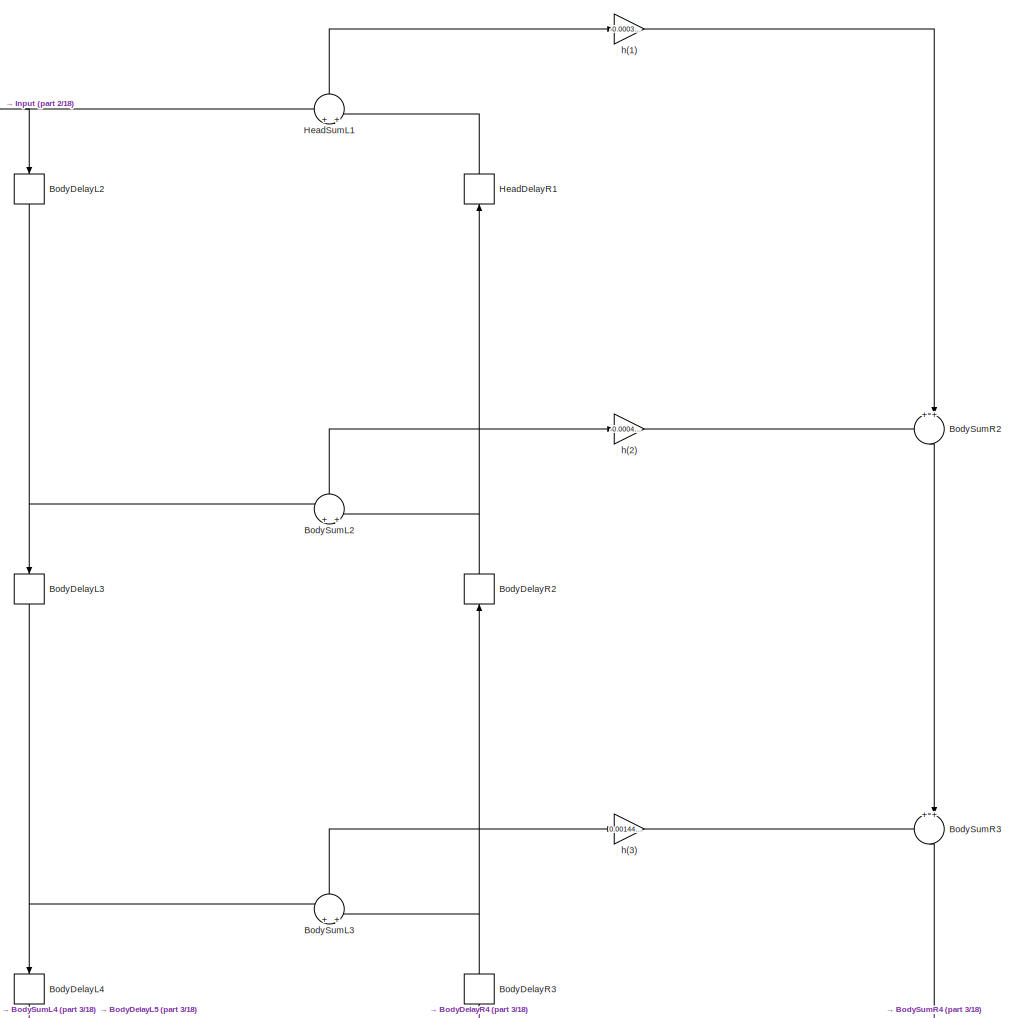
[diagram: FilterLP - part 1/18, top center region]
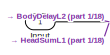
[diagram: FilterLP - part 2/18, top left region]
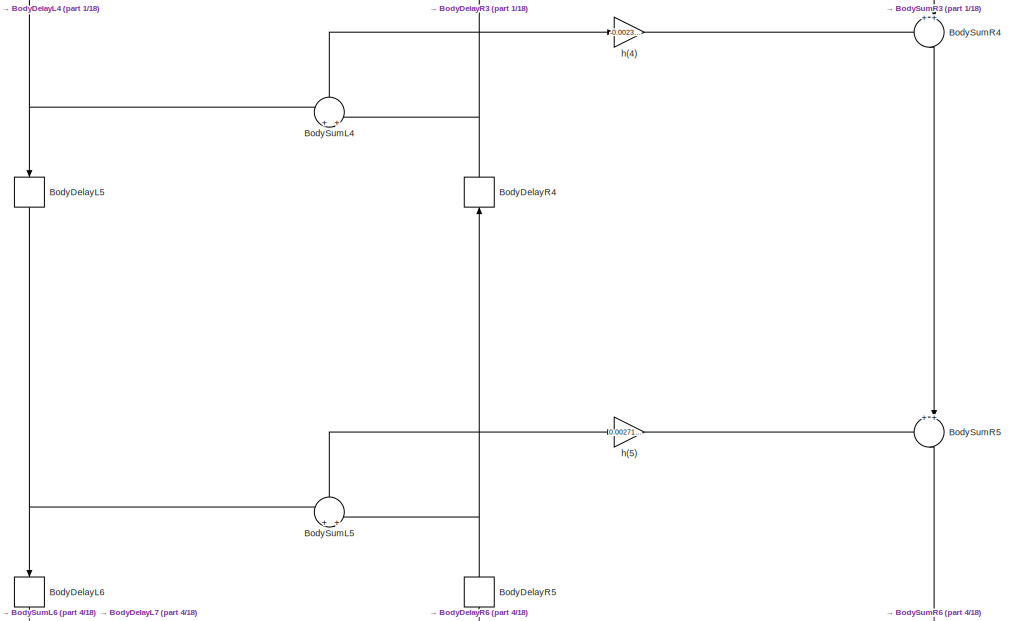
[diagram: FilterLP - part 3/18, top center region]
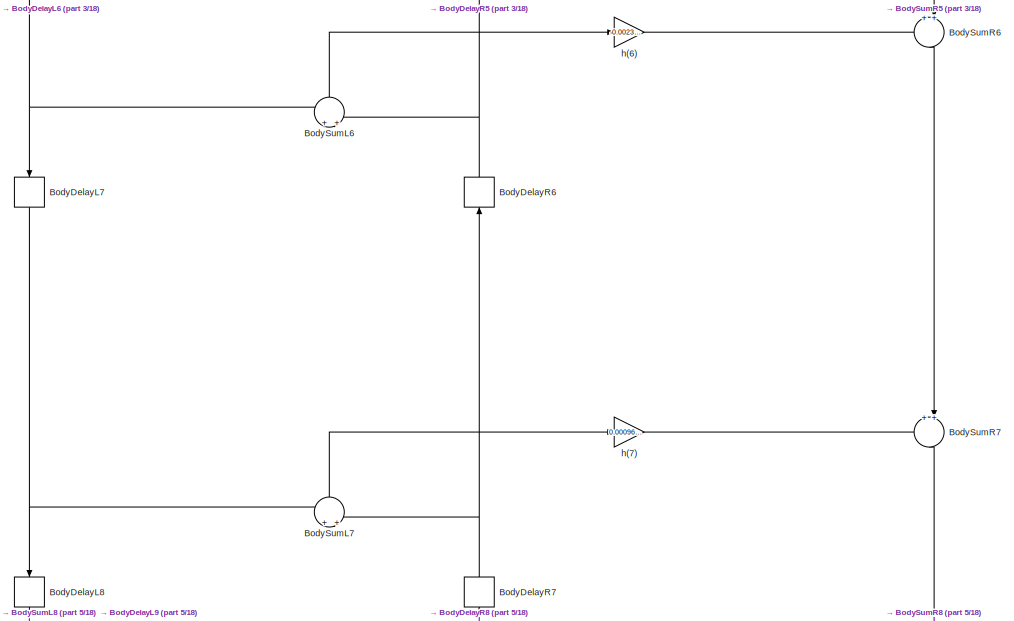
[diagram: FilterLP - part 4/18, top center region]
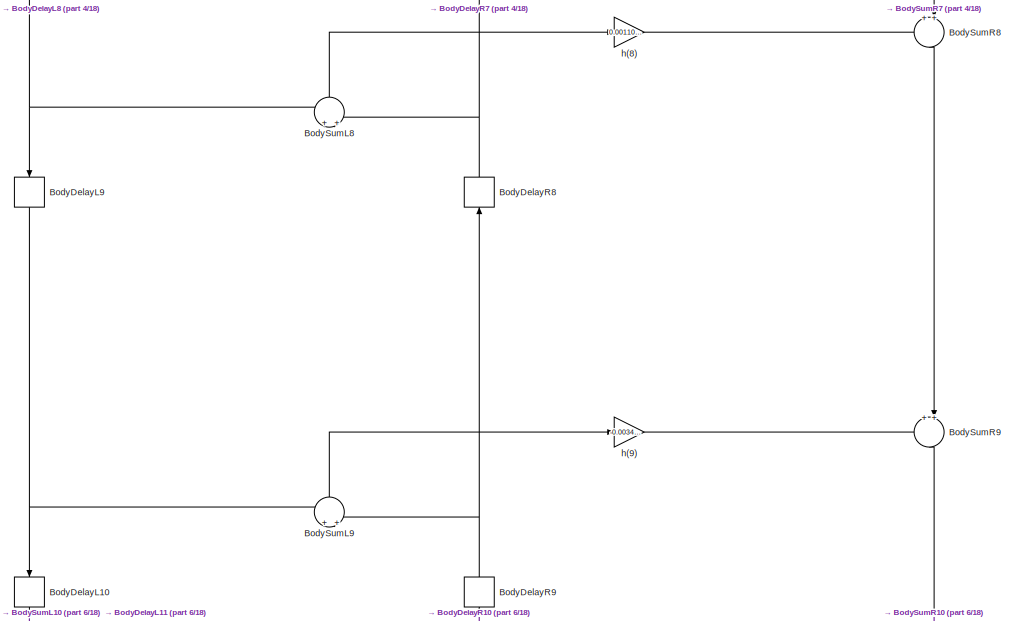
[diagram: FilterLP - part 5/18, top center region]
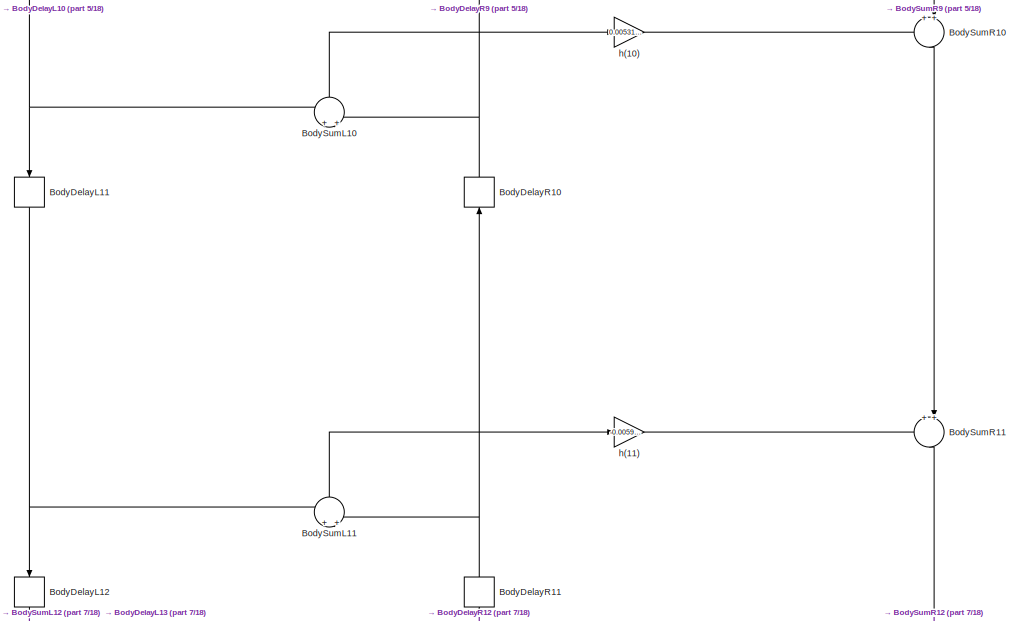
[diagram: FilterLP - part 6/18, top center region]
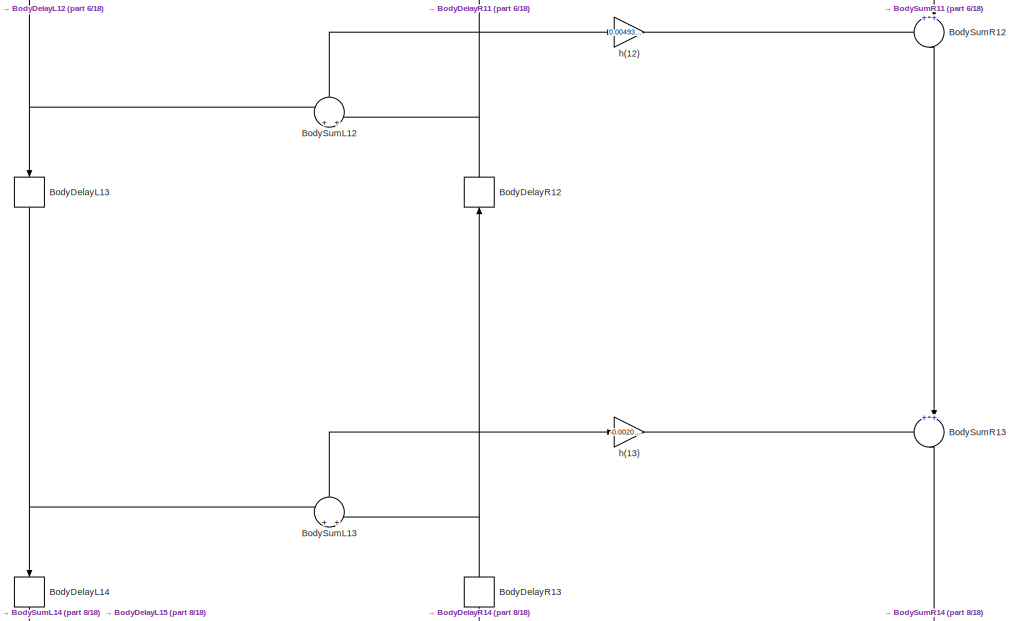
[diagram: FilterLP - part 7/18, central region]
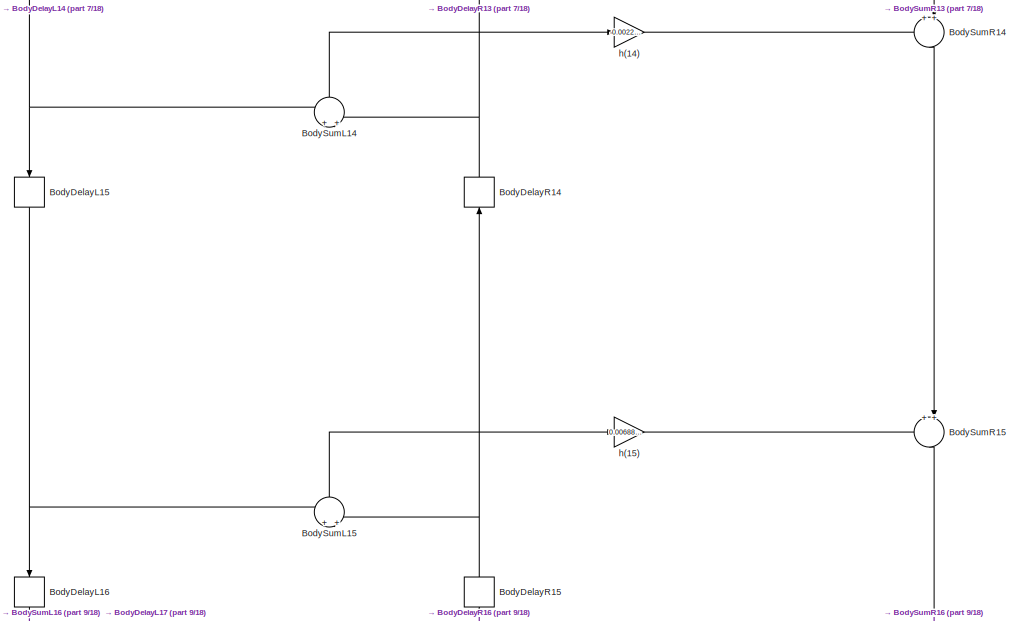
[diagram: FilterLP - part 8/18, central region]
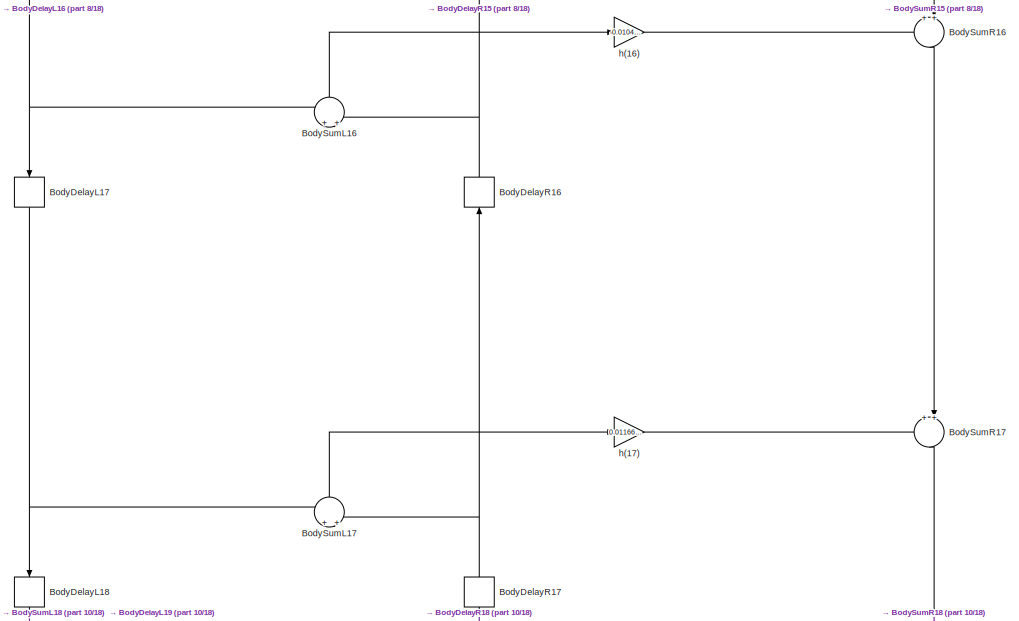
[diagram: FilterLP - part 9/18, central region]
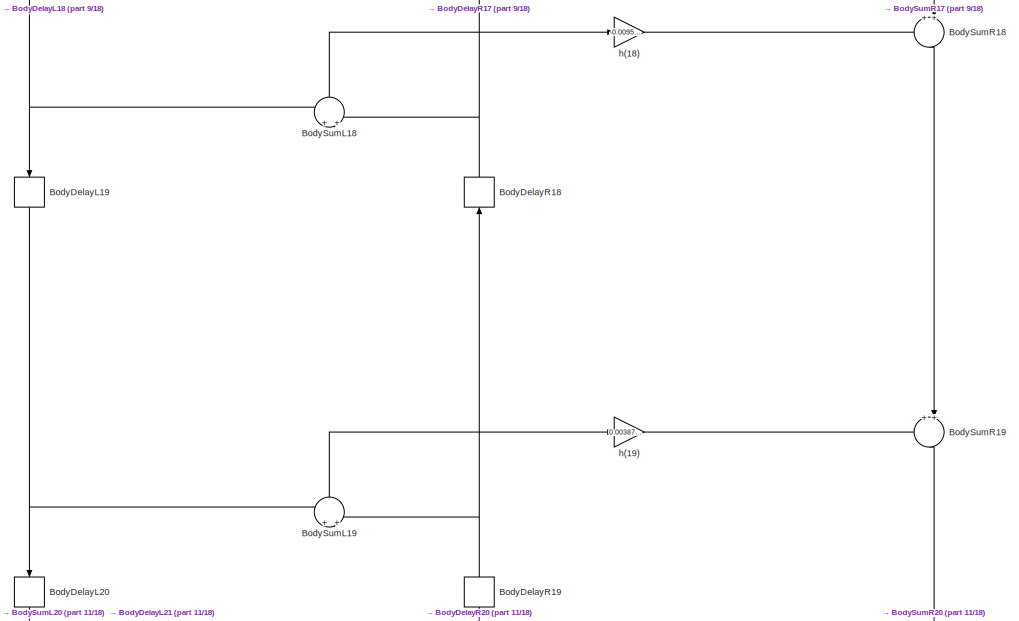
[diagram: FilterLP - part 10/18, central region]
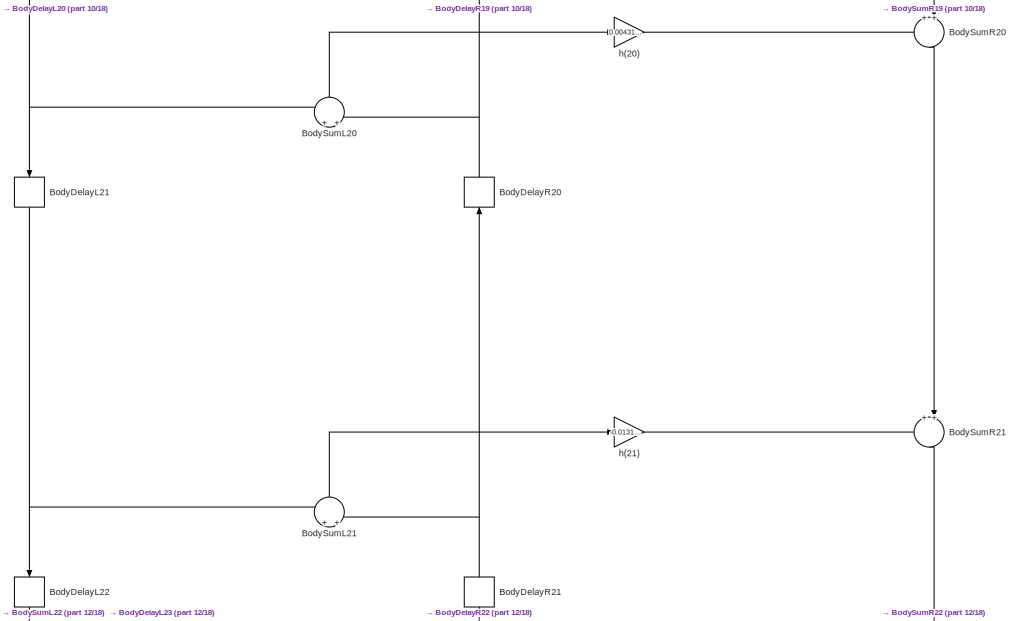
[diagram: FilterLP - part 11/18, central region]
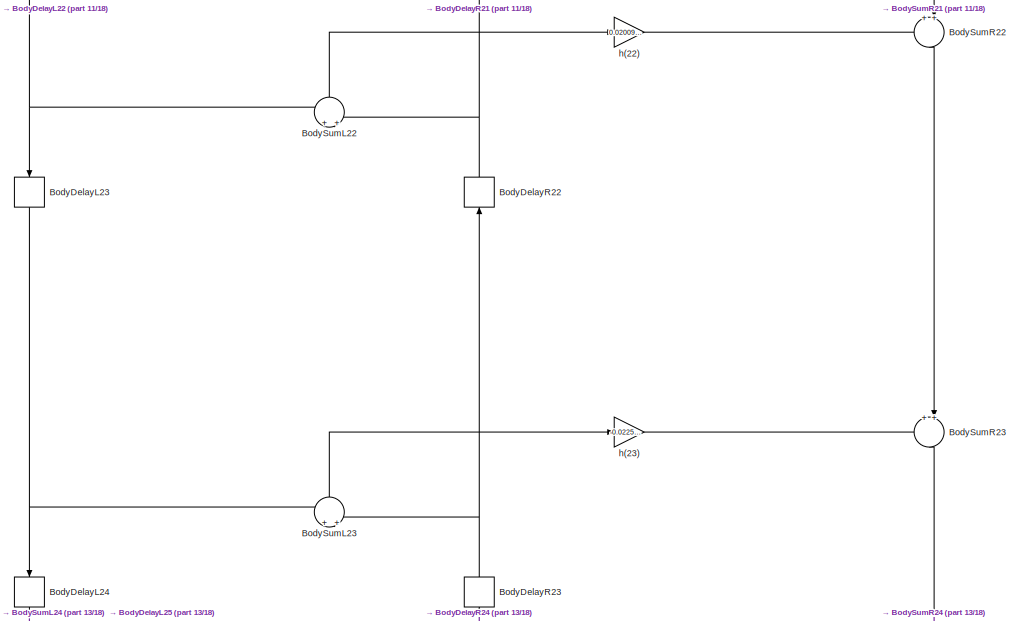
[diagram: FilterLP - part 12/18, central region]
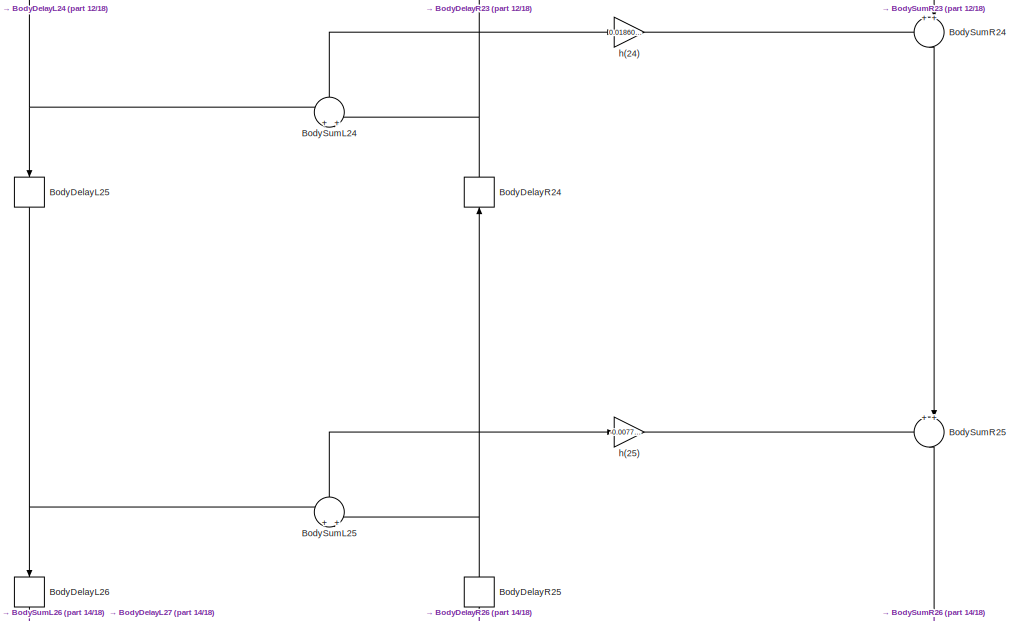
[diagram: FilterLP - part 13/18, bottom center region]
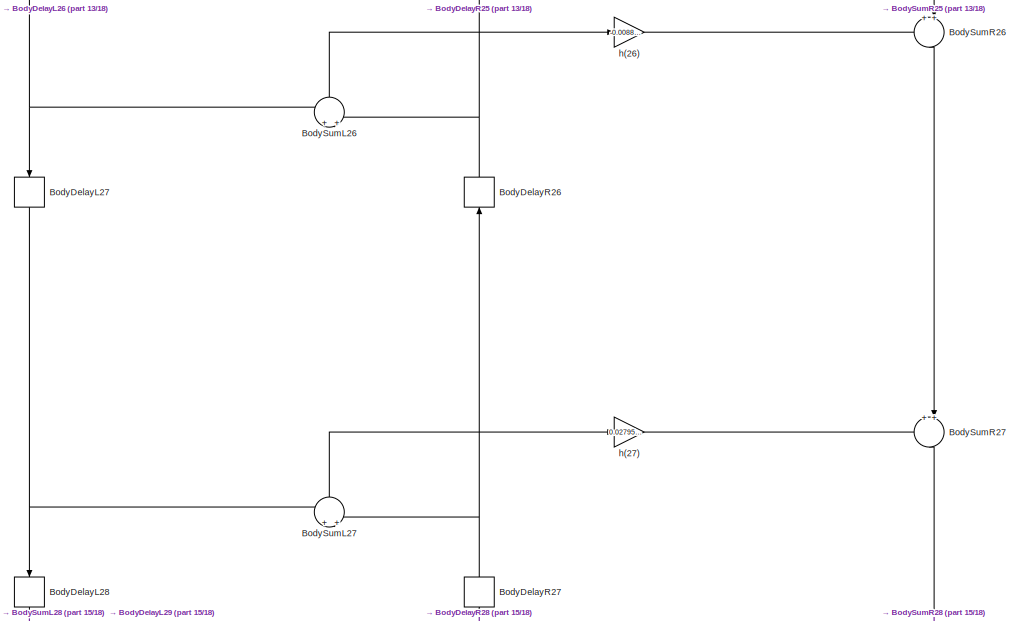
[diagram: FilterLP - part 14/18, bottom center region]
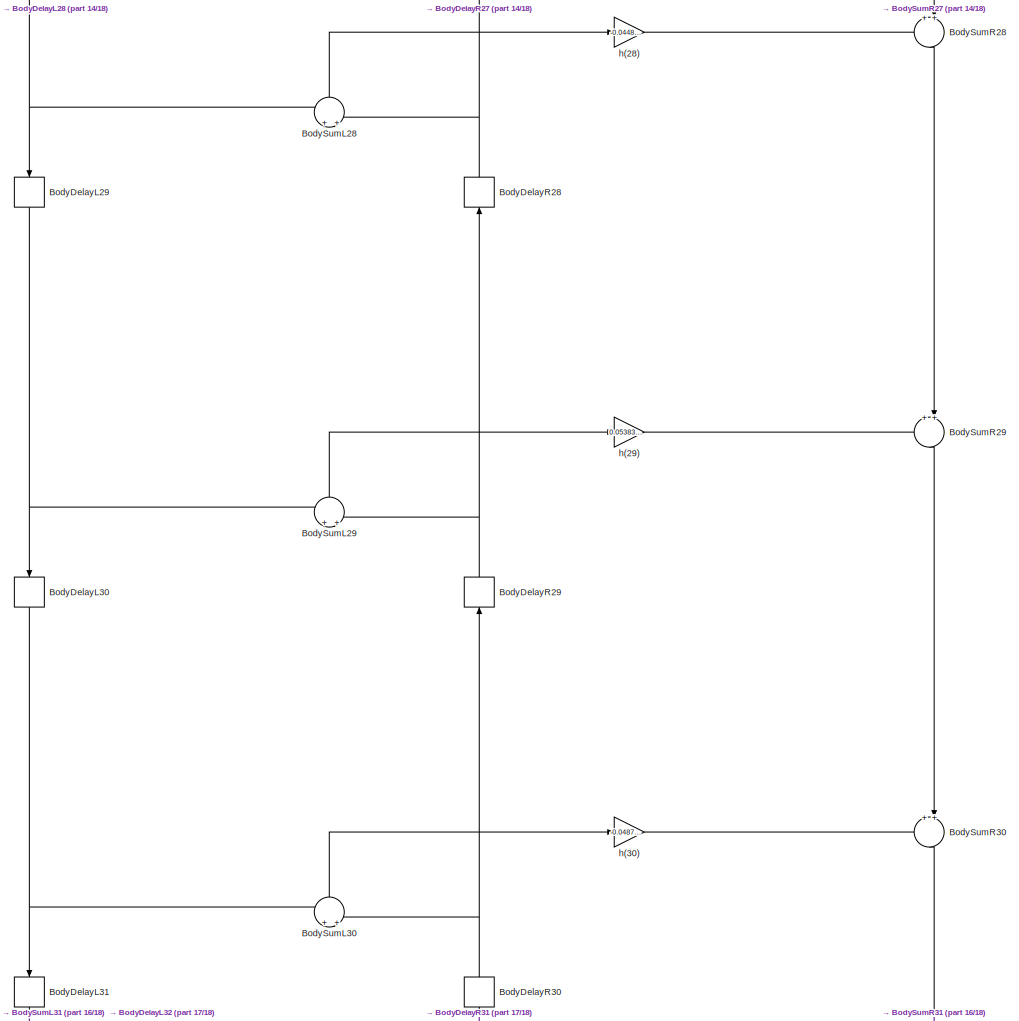
[diagram: FilterLP - part 15/18, bottom center region]
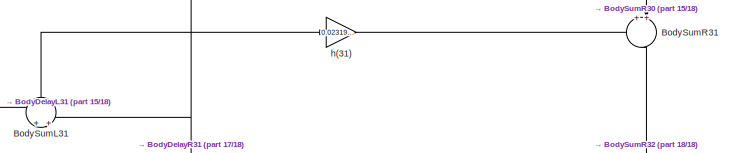
[diagram: FilterLP - part 16/18, bottom center region]
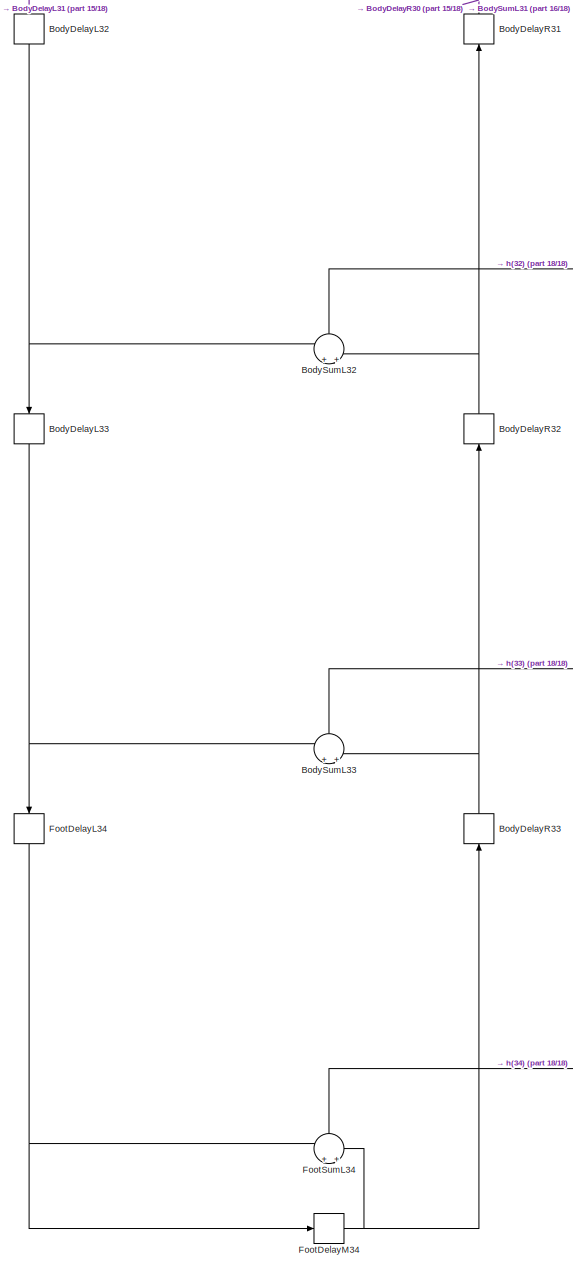
[diagram: FilterLP - part 17/18, bottom center region]
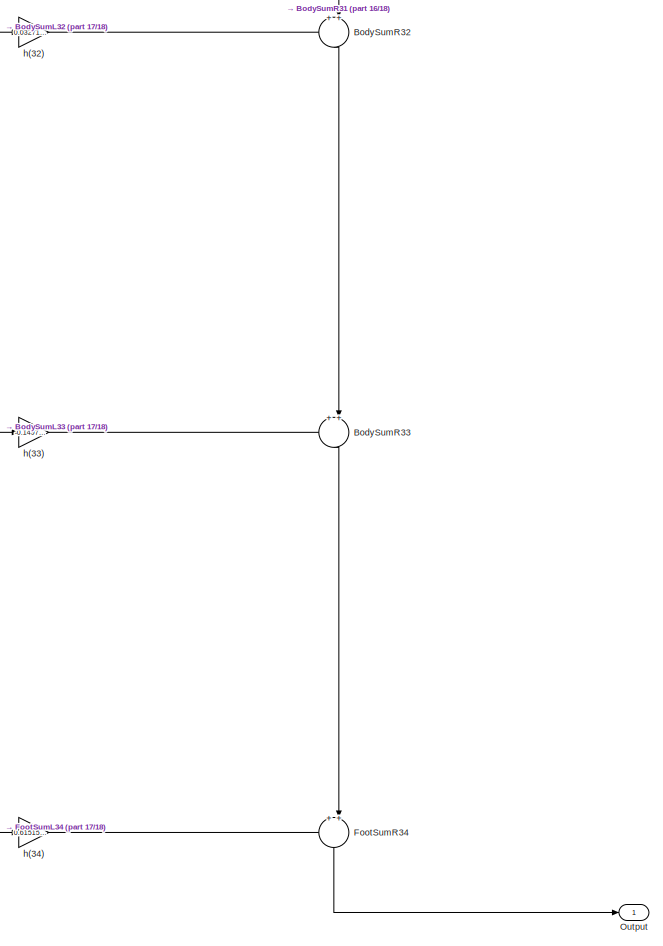
[diagram: FilterLP - part 18/18, bottom right region]
BLOCK [SubSystem] FilterLP
  Commented = on
  ErrorFcn = dspFilterRealizedInBasicElemsAlgLoopErrFcnCallback
  Ports = [1, 1]
  RequestExecContextInheritance = off
  Tag = FilterWizardSubSystem
  UserDataPersistent = on
BLOCK [Delay] FilterLP/BodyDelayL10
  DelayLength = 1
  InitialCondition = 0
  InputPortMap = u0
  InputProcessing = Columns as channels (frame based)
  Ports = [1, 1]
BLOCK [Delay] FilterLP/BodyDelayL11
  DelayLength = 1
  InitialCondition = 0
  InputPortMap = u0
  InputProcessing = Columns as channels (frame based)
  Ports = [1, 1]
BLOCK [Delay] FilterLP/BodyDelayL12
  DelayLength = 1
  InitialCondition = 0
  InputPortMap = u0
  InputProcessing = Columns as channels (frame based)
  Ports = [1, 1]
BLOCK [Delay] FilterLP/BodyDelayL13
  DelayLength = 1
  InitialCondition = 0
  InputPortMap = u0
  InputProcessing = Columns as channels (frame based)
  Ports = [1, 1]
BLOCK [Delay] FilterLP/BodyDelayL14
  DelayLength = 1
  InitialCondition = 0
  InputPortMap = u0
  InputProcessing = Columns as channels (frame based)
  Ports = [1, 1]
BLOCK [Delay] FilterLP/BodyDelayL15
  DelayLength = 1
  InitialCondition = 0
  InputPortMap = u0
  InputProcessing = Columns as channels (frame based)
  Ports = [1, 1]
BLOCK [Delay] FilterLP/BodyDelayL16
  DelayLength = 1
  InitialCondition = 0
  InputPortMap = u0
  InputProcessing = Columns as channels (frame based)
  Ports = [1, 1]
BLOCK [Delay] FilterLP/BodyDelayL17
  DelayLength = 1
  InitialCondition = 0
  InputPortMap = u0
  InputProcessing = Columns as channels (frame based)
  Ports = [1, 1]
BLOCK [Delay] FilterLP/BodyDelayL18
  DelayLength = 1
  InitialCondition = 0
  InputPortMap = u0
  InputProcessing = Columns as channels (frame based)
  Ports = [1, 1]
BLOCK [Delay] FilterLP/BodyDelayL19
  DelayLength = 1
  InitialCondition = 0
  InputPortMap = u0
  InputProcessing = Columns as channels (frame based)
  Ports = [1, 1]
BLOCK [Delay] FilterLP/BodyDelayL2
  DelayLength = 1
  InitialCondition = 0
  InputPortMap = u0
  InputProcessing = Columns as channels (frame based)
  Ports = [1, 1]
BLOCK [Delay] FilterLP/BodyDelayL20
  DelayLength = 1
  InitialCondition = 0
  InputPortMap = u0
  InputProcessing = Columns as channels (frame based)
  Ports = [1, 1]
BLOCK [Delay] FilterLP/BodyDelayL21
  DelayLength = 1
  InitialCondition = 0
  InputPortMap = u0
  InputProcessing = Columns as channels (frame based)
  Ports = [1, 1]
BLOCK [Delay] FilterLP/BodyDelayL22
  DelayLength = 1
  InitialCondition = 0
  InputPortMap = u0
  InputProcessing = Columns as channels (frame based)
  Ports = [1, 1]
BLOCK [Delay] FilterLP/BodyDelayL23
  DelayLength = 1
  InitialCondition = 0
  InputPortMap = u0
  InputProcessing = Columns as channels (frame based)
  Ports = [1, 1]
BLOCK [Delay] FilterLP/BodyDelayL24
  DelayLength = 1
  InitialCondition = 0
  InputPortMap = u0
  InputProcessing = Columns as channels (frame based)
  Ports = [1, 1]
BLOCK [Delay] FilterLP/BodyDelayL25
  DelayLength = 1
  InitialCondition = 0
  InputPortMap = u0
  InputProcessing = Columns as channels (frame based)
  Ports = [1, 1]
BLOCK [Delay] FilterLP/BodyDelayL26
  DelayLength = 1
  InitialCondition = 0
  InputPortMap = u0
  InputProcessing = Columns as channels (frame based)
  Ports = [1, 1]
BLOCK [Delay] FilterLP/BodyDelayL27
  DelayLength = 1
  InitialCondition = 0
  InputPortMap = u0
  InputProcessing = Columns as channels (frame based)
  Ports = [1, 1]
BLOCK [Delay] FilterLP/BodyDelayL28
  DelayLength = 1
  InitialCondition = 0
  InputPortMap = u0
  InputProcessing = Columns as channels (frame based)
  Ports = [1, 1]
BLOCK [Delay] FilterLP/BodyDelayL29
  DelayLength = 1
  InitialCondition = 0
  InputPortMap = u0
  InputProcessing = Columns as channels (frame based)
  Ports = [1, 1]
BLOCK [Delay] FilterLP/BodyDelayL3
  DelayLength = 1
  InitialCondition = 0
  InputPortMap = u0
  InputProcessing = Columns as channels (frame based)
  Ports = [1, 1]
BLOCK [Delay] FilterLP/BodyDelayL30
  DelayLength = 1
  InitialCondition = 0
  InputPortMap = u0
  InputProcessing = Columns as channels (frame based)
  Ports = [1, 1]
BLOCK [Delay] FilterLP/BodyDelayL31
  DelayLength = 1
  InitialCondition = 0
  InputPortMap = u0
  InputProcessing = Columns as channels (frame based)
  Ports = [1, 1]
BLOCK [Delay] FilterLP/BodyDelayL32
  DelayLength = 1
  InitialCondition = 0
  InputPortMap = u0
  InputProcessing = Columns as channels (frame based)
  Ports = [1, 1]
BLOCK [Delay] FilterLP/BodyDelayL33
  DelayLength = 1
  InitialCondition = 0
  InputPortMap = u0
  InputProcessing = Columns as channels (frame based)
  Ports = [1, 1]
BLOCK [Delay] FilterLP/BodyDelayL4
  DelayLength = 1
  InitialCondition = 0
  InputPortMap = u0
  InputProcessing = Columns as channels (frame based)
  Ports = [1, 1]
BLOCK [Delay] FilterLP/BodyDelayL5
  DelayLength = 1
  InitialCondition = 0
  InputPortMap = u0
  InputProcessing = Columns as channels (frame based)
  Ports = [1, 1]
BLOCK [Delay] FilterLP/BodyDelayL6
  DelayLength = 1
  InitialCondition = 0
  InputPortMap = u0
  InputProcessing = Columns as channels (frame based)
  Ports = [1, 1]
BLOCK [Delay] FilterLP/BodyDelayL7
  DelayLength = 1
  InitialCondition = 0
  InputPortMap = u0
  InputProcessing = Columns as channels (frame based)
  Ports = [1, 1]
BLOCK [Delay] FilterLP/BodyDelayL8
  DelayLength = 1
  InitialCondition = 0
  InputPortMap = u0
  InputProcessing = Columns as channels (frame based)
  Ports = [1, 1]
BLOCK [Delay] FilterLP/BodyDelayL9
  DelayLength = 1
  InitialCondition = 0
  InputPortMap = u0
  InputProcessing = Columns as channels (frame based)
  Ports = [1, 1]
BLOCK [Delay] FilterLP/BodyDelayR10
  DelayLength = 1
  InitialCondition = 0
  InputPortMap = u0
  InputProcessing = Columns as channels (frame based)
  Ports = [1, 1]
BLOCK [Delay] FilterLP/BodyDelayR11
  DelayLength = 1
  InitialCondition = 0
  InputPortMap = u0
  InputProcessing = Columns as channels (frame based)
  Ports = [1, 1]
BLOCK [Delay] FilterLP/BodyDelayR12
  DelayLength = 1
  InitialCondition = 0
  InputPortMap = u0
  InputProcessing = Columns as channels (frame based)
  Ports = [1, 1]
BLOCK [Delay] FilterLP/BodyDelayR13
  DelayLength = 1
  InitialCondition = 0
  InputPortMap = u0
  InputProcessing = Columns as channels (frame based)
  Ports = [1, 1]
BLOCK [Delay] FilterLP/BodyDelayR14
  DelayLength = 1
  InitialCondition = 0
  InputPortMap = u0
  InputProcessing = Columns as channels (frame based)
  Ports = [1, 1]
BLOCK [Delay] FilterLP/BodyDelayR15
  DelayLength = 1
  InitialCondition = 0
  InputPortMap = u0
  InputProcessing = Columns as channels (frame based)
  Ports = [1, 1]
BLOCK [Delay] FilterLP/BodyDelayR16
  DelayLength = 1
  InitialCondition = 0
  InputPortMap = u0
  InputProcessing = Columns as channels (frame based)
  Ports = [1, 1]
BLOCK [Delay] FilterLP/BodyDelayR17
  DelayLength = 1
  InitialCondition = 0
  InputPortMap = u0
  InputProcessing = Columns as channels (frame based)
  Ports = [1, 1]
BLOCK [Delay] FilterLP/BodyDelayR18
  DelayLength = 1
  InitialCondition = 0
  InputPortMap = u0
  InputProcessing = Columns as channels (frame based)
  Ports = [1, 1]
BLOCK [Delay] FilterLP/BodyDelayR19
  DelayLength = 1
  InitialCondition = 0
  InputPortMap = u0
  InputProcessing = Columns as channels (frame based)
  Ports = [1, 1]
BLOCK [Delay] FilterLP/BodyDelayR2
  DelayLength = 1
  InitialCondition = 0
  InputPortMap = u0
  InputProcessing = Columns as channels (frame based)
  Ports = [1, 1]
BLOCK [Delay] FilterLP/BodyDelayR20
  DelayLength = 1
  InitialCondition = 0
  InputPortMap = u0
  InputProcessing = Columns as channels (frame based)
  Ports = [1, 1]
BLOCK [Delay] FilterLP/BodyDelayR21
  DelayLength = 1
  InitialCondition = 0
  InputPortMap = u0
  InputProcessing = Columns as channels (frame based)
  Ports = [1, 1]
BLOCK [Delay] FilterLP/BodyDelayR22
  DelayLength = 1
  InitialCondition = 0
  InputPortMap = u0
  InputProcessing = Columns as channels (frame based)
  Ports = [1, 1]
BLOCK [Delay] FilterLP/BodyDelayR23
  DelayLength = 1
  InitialCondition = 0
  InputPortMap = u0
  InputProcessing = Columns as channels (frame based)
  Ports = [1, 1]
BLOCK [Delay] FilterLP/BodyDelayR24
  DelayLength = 1
  InitialCondition = 0
  InputPortMap = u0
  InputProcessing = Columns as channels (frame based)
  Ports = [1, 1]
BLOCK [Delay] FilterLP/BodyDelayR25
  DelayLength = 1
  InitialCondition = 0
  InputPortMap = u0
  InputProcessing = Columns as channels (frame based)
  Ports = [1, 1]
BLOCK [Delay] FilterLP/BodyDelayR26
  DelayLength = 1
  InitialCondition = 0
  InputPortMap = u0
  InputProcessing = Columns as channels (frame based)
  Ports = [1, 1]
BLOCK [Delay] FilterLP/BodyDelayR27
  DelayLength = 1
  InitialCondition = 0
  InputPortMap = u0
  InputProcessing = Columns as channels (frame based)
  Ports = [1, 1]
BLOCK [Delay] FilterLP/BodyDelayR28
  DelayLength = 1
  InitialCondition = 0
  InputPortMap = u0
  InputProcessing = Columns as channels (frame based)
  Ports = [1, 1]
BLOCK [Delay] FilterLP/BodyDelayR29
  DelayLength = 1
  InitialCondition = 0
  InputPortMap = u0
  InputProcessing = Columns as channels (frame based)
  Ports = [1, 1]
BLOCK [Delay] FilterLP/BodyDelayR3
  DelayLength = 1
  InitialCondition = 0
  InputPortMap = u0
  InputProcessing = Columns as channels (frame based)
  Ports = [1, 1]
BLOCK [Delay] FilterLP/BodyDelayR30
  DelayLength = 1
  InitialCondition = 0
  InputPortMap = u0
  InputProcessing = Columns as channels (frame based)
  Ports = [1, 1]
BLOCK [Delay] FilterLP/BodyDelayR31
  DelayLength = 1
  InitialCondition = 0
  InputPortMap = u0
  InputProcessing = Columns as channels (frame based)
  Ports = [1, 1]
BLOCK [Delay] FilterLP/BodyDelayR32
  DelayLength = 1
  InitialCondition = 0
  InputPortMap = u0
  InputProcessing = Columns as channels (frame based)
  Ports = [1, 1]
BLOCK [Delay] FilterLP/BodyDelayR33
  DelayLength = 1
  InitialCondition = 0
  InputPortMap = u0
  InputProcessing = Columns as channels (frame based)
  Ports = [1, 1]
BLOCK [Delay] FilterLP/BodyDelayR4
  DelayLength = 1
  InitialCondition = 0
  InputPortMap = u0
  InputProcessing = Columns as channels (frame based)
  Ports = [1, 1]
BLOCK [Delay] FilterLP/BodyDelayR5
  DelayLength = 1
  InitialCondition = 0
  InputPortMap = u0
  InputProcessing = Columns as channels (frame based)
  Ports = [1, 1]
BLOCK [Delay] FilterLP/BodyDelayR6
  DelayLength = 1
  InitialCondition = 0
  InputPortMap = u0
  InputProcessing = Columns as channels (frame based)
  Ports = [1, 1]
BLOCK [Delay] FilterLP/BodyDelayR7
  DelayLength = 1
  InitialCondition = 0
  InputPortMap = u0
  InputProcessing = Columns as channels (frame based)
  Ports = [1, 1]
BLOCK [Delay] FilterLP/BodyDelayR8
  DelayLength = 1
  InitialCondition = 0
  InputPortMap = u0
  InputProcessing = Columns as channels (frame based)
  Ports = [1, 1]
BLOCK [Delay] FilterLP/BodyDelayR9
  DelayLength = 1
  InitialCondition = 0
  InputPortMap = u0
  InputProcessing = Columns as channels (frame based)
  Ports = [1, 1]
BLOCK [Sum] FilterLP/BodySumL10
  IconShape = round
  InputSameDT = off
  Inputs = +|+
  Ports = [2, 1]
  RndMeth = Nearest
BLOCK [Sum] FilterLP/BodySumL11
  IconShape = round
  InputSameDT = off
  Inputs = +|+
  Ports = [2, 1]
  RndMeth = Nearest
BLOCK [Sum] FilterLP/BodySumL12
  IconShape = round
  InputSameDT = off
  Inputs = +|+
  Ports = [2, 1]
  RndMeth = Nearest
BLOCK [Sum] FilterLP/BodySumL13
  IconShape = round
  InputSameDT = off
  Inputs = +|+
  Ports = [2, 1]
  RndMeth = Nearest
BLOCK [Sum] FilterLP/BodySumL14
  IconShape = round
  InputSameDT = off
  Inputs = +|+
  Ports = [2, 1]
  RndMeth = Nearest
BLOCK [Sum] FilterLP/BodySumL15
  IconShape = round
  InputSameDT = off
  Inputs = +|+
  Ports = [2, 1]
  RndMeth = Nearest
BLOCK [Sum] FilterLP/BodySumL16
  IconShape = round
  InputSameDT = off
  Inputs = +|+
  Ports = [2, 1]
  RndMeth = Nearest
BLOCK [Sum] FilterLP/BodySumL17
  IconShape = round
  InputSameDT = off
  Inputs = +|+
  Ports = [2, 1]
  RndMeth = Nearest
BLOCK [Sum] FilterLP/BodySumL18
  IconShape = round
  InputSameDT = off
  Inputs = +|+
  Ports = [2, 1]
  RndMeth = Nearest
BLOCK [Sum] FilterLP/BodySumL19
  IconShape = round
  InputSameDT = off
  Inputs = +|+
  Ports = [2, 1]
  RndMeth = Nearest
BLOCK [Sum] FilterLP/BodySumL2
  IconShape = round
  InputSameDT = off
  Inputs = +|+
  Ports = [2, 1]
  RndMeth = Nearest
BLOCK [Sum] FilterLP/BodySumL20
  IconShape = round
  InputSameDT = off
  Inputs = +|+
  Ports = [2, 1]
  RndMeth = Nearest
BLOCK [Sum] FilterLP/BodySumL21
  IconShape = round
  InputSameDT = off
  Inputs = +|+
  Ports = [2, 1]
  RndMeth = Nearest
BLOCK [Sum] FilterLP/BodySumL22
  IconShape = round
  InputSameDT = off
  Inputs = +|+
  Ports = [2, 1]
  RndMeth = Nearest
BLOCK [Sum] FilterLP/BodySumL23
  IconShape = round
  InputSameDT = off
  Inputs = +|+
  Ports = [2, 1]
  RndMeth = Nearest
BLOCK [Sum] FilterLP/BodySumL24
  IconShape = round
  InputSameDT = off
  Inputs = +|+
  Ports = [2, 1]
  RndMeth = Nearest
BLOCK [Sum] FilterLP/BodySumL25
  IconShape = round
  InputSameDT = off
  Inputs = +|+
  Ports = [2, 1]
  RndMeth = Nearest
BLOCK [Sum] FilterLP/BodySumL26
  IconShape = round
  InputSameDT = off
  Inputs = +|+
  Ports = [2, 1]
  RndMeth = Nearest
BLOCK [Sum] FilterLP/BodySumL27
  IconShape = round
  InputSameDT = off
  Inputs = +|+
  Ports = [2, 1]
  RndMeth = Nearest
BLOCK [Sum] FilterLP/BodySumL28
  IconShape = round
  InputSameDT = off
  Inputs = +|+
  Ports = [2, 1]
  RndMeth = Nearest
BLOCK [Sum] FilterLP/BodySumL29
  IconShape = round
  InputSameDT = off
  Inputs = +|+
  Ports = [2, 1]
  RndMeth = Nearest
BLOCK [Sum] FilterLP/BodySumL3
  IconShape = round
  InputSameDT = off
  Inputs = +|+
  Ports = [2, 1]
  RndMeth = Nearest
BLOCK [Sum] FilterLP/BodySumL30
  IconShape = round
  InputSameDT = off
  Inputs = +|+
  Ports = [2, 1]
  RndMeth = Nearest
BLOCK [Sum] FilterLP/BodySumL31
  IconShape = round
  InputSameDT = off
  Inputs = +|+
  Ports = [2, 1]
  RndMeth = Nearest
BLOCK [Sum] FilterLP/BodySumL32
  IconShape = round
  InputSameDT = off
  Inputs = +|+
  Ports = [2, 1]
  RndMeth = Nearest
BLOCK [Sum] FilterLP/BodySumL33
  IconShape = round
  InputSameDT = off
  Inputs = +|+
  Ports = [2, 1]
  RndMeth = Nearest
BLOCK [Sum] FilterLP/BodySumL4
  IconShape = round
  InputSameDT = off
  Inputs = +|+
  Ports = [2, 1]
  RndMeth = Nearest
BLOCK [Sum] FilterLP/BodySumL5
  IconShape = round
  InputSameDT = off
  Inputs = +|+
  Ports = [2, 1]
  RndMeth = Nearest
BLOCK [Sum] FilterLP/BodySumL6
  IconShape = round
  InputSameDT = off
  Inputs = +|+
  Ports = [2, 1]
  RndMeth = Nearest
BLOCK [Sum] FilterLP/BodySumL7
  IconShape = round
  InputSameDT = off
  Inputs = +|+
  Ports = [2, 1]
  RndMeth = Nearest
BLOCK [Sum] FilterLP/BodySumL8
  IconShape = round
  InputSameDT = off
  Inputs = +|+
  Ports = [2, 1]
  RndMeth = Nearest
BLOCK [Sum] FilterLP/BodySumL9
  IconShape = round
  InputSameDT = off
  Inputs = +|+
  Ports = [2, 1]
  RndMeth = Nearest
BLOCK [Sum] FilterLP/BodySumR10
  IconShape = round
  InputSameDT = off
  Inputs = ++|
  Ports = [2, 1]
  RndMeth = Nearest
BLOCK [Sum] FilterLP/BodySumR11
  IconShape = round
  InputSameDT = off
  Inputs = ++|
  Ports = [2, 1]
  RndMeth = Nearest
BLOCK [Sum] FilterLP/BodySumR12
  IconShape = round
  InputSameDT = off
  Inputs = ++|
  Ports = [2, 1]
  RndMeth = Nearest
BLOCK [Sum] FilterLP/BodySumR13
  IconShape = round
  InputSameDT = off
  Inputs = ++|
  Ports = [2, 1]
  RndMeth = Nearest
BLOCK [Sum] FilterLP/BodySumR14
  IconShape = round
  InputSameDT = off
  Inputs = ++|
  Ports = [2, 1]
  RndMeth = Nearest
BLOCK [Sum] FilterLP/BodySumR15
  IconShape = round
  InputSameDT = off
  Inputs = ++|
  Ports = [2, 1]
  RndMeth = Nearest
BLOCK [Sum] FilterLP/BodySumR16
  IconShape = round
  InputSameDT = off
  Inputs = ++|
  Ports = [2, 1]
  RndMeth = Nearest
BLOCK [Sum] FilterLP/BodySumR17
  IconShape = round
  InputSameDT = off
  Inputs = ++|
  Ports = [2, 1]
  RndMeth = Nearest
BLOCK [Sum] FilterLP/BodySumR18
  IconShape = round
  InputSameDT = off
  Inputs = ++|
  Ports = [2, 1]
  RndMeth = Nearest
BLOCK [Sum] FilterLP/BodySumR19
  IconShape = round
  InputSameDT = off
  Inputs = ++|
  Ports = [2, 1]
  RndMeth = Nearest
BLOCK [Sum] FilterLP/BodySumR2
  IconShape = round
  InputSameDT = off
  Inputs = ++|
  Ports = [2, 1]
  RndMeth = Nearest
BLOCK [Sum] FilterLP/BodySumR20
  IconShape = round
  InputSameDT = off
  Inputs = ++|
  Ports = [2, 1]
  RndMeth = Nearest
BLOCK [Sum] FilterLP/BodySumR21
  IconShape = round
  InputSameDT = off
  Inputs = ++|
  Ports = [2, 1]
  RndMeth = Nearest
BLOCK [Sum] FilterLP/BodySumR22
  IconShape = round
  InputSameDT = off
  Inputs = ++|
  Ports = [2, 1]
  RndMeth = Nearest
BLOCK [Sum] FilterLP/BodySumR23
  IconShape = round
  InputSameDT = off
  Inputs = ++|
  Ports = [2, 1]
  RndMeth = Nearest
BLOCK [Sum] FilterLP/BodySumR24
  IconShape = round
  InputSameDT = off
  Inputs = ++|
  Ports = [2, 1]
  RndMeth = Nearest
BLOCK [Sum] FilterLP/BodySumR25
  IconShape = round
  InputSameDT = off
  Inputs = ++|
  Ports = [2, 1]
  RndMeth = Nearest
BLOCK [Sum] FilterLP/BodySumR26
  IconShape = round
  InputSameDT = off
  Inputs = ++|
  Ports = [2, 1]
  RndMeth = Nearest
BLOCK [Sum] FilterLP/BodySumR27
  IconShape = round
  InputSameDT = off
  Inputs = ++|
  Ports = [2, 1]
  RndMeth = Nearest
BLOCK [Sum] FilterLP/BodySumR28
  IconShape = round
  InputSameDT = off
  Inputs = ++|
  Ports = [2, 1]
  RndMeth = Nearest
BLOCK [Sum] FilterLP/BodySumR29
  IconShape = round
  InputSameDT = off
  Inputs = ++|
  Ports = [2, 1]
  RndMeth = Nearest
BLOCK [Sum] FilterLP/BodySumR3
  IconShape = round
  InputSameDT = off
  Inputs = ++|
  Ports = [2, 1]
  RndMeth = Nearest
BLOCK [Sum] FilterLP/BodySumR30
  IconShape = round
  InputSameDT = off
  Inputs = ++|
  Ports = [2, 1]
  RndMeth = Nearest
BLOCK [Sum] FilterLP/BodySumR31
  IconShape = round
  InputSameDT = off
  Inputs = ++|
  Ports = [2, 1]
  RndMeth = Nearest
BLOCK [Sum] FilterLP/BodySumR32
  IconShape = round
  InputSameDT = off
  Inputs = ++|
  Ports = [2, 1]
  RndMeth = Nearest
BLOCK [Sum] FilterLP/BodySumR33
  IconShape = round
  InputSameDT = off
  Inputs = ++|
  Ports = [2, 1]
  RndMeth = Nearest
BLOCK [Sum] FilterLP/BodySumR4
  IconShape = round
  InputSameDT = off
  Inputs = ++|
  Ports = [2, 1]
  RndMeth = Nearest
BLOCK [Sum] FilterLP/BodySumR5
  IconShape = round
  InputSameDT = off
  Inputs = ++|
  Ports = [2, 1]
  RndMeth = Nearest
BLOCK [Sum] FilterLP/BodySumR6
  IconShape = round
  InputSameDT = off
  Inputs = ++|
  Ports = [2, 1]
  RndMeth = Nearest
BLOCK [Sum] FilterLP/BodySumR7
  IconShape = round
  InputSameDT = off
  Inputs = ++|
  Ports = [2, 1]
  RndMeth = Nearest
BLOCK [Sum] FilterLP/BodySumR8
  IconShape = round
  InputSameDT = off
  Inputs = ++|
  Ports = [2, 1]
  RndMeth = Nearest
BLOCK [Sum] FilterLP/BodySumR9
  IconShape = round
  InputSameDT = off
  Inputs = ++|
  Ports = [2, 1]
  RndMeth = Nearest
BLOCK [Delay] FilterLP/FootDelayL34
  DelayLength = 1
  InitialCondition = 0
  InputPortMap = u0
  InputProcessing = Columns as channels (frame based)
  Ports = [1, 1]
BLOCK [Delay] FilterLP/FootDelayM34
  DelayLength = 1
  InitialCondition = 0
  InputPortMap = u0
  InputProcessing = Columns as channels (frame based)
  Ports = [1, 1]
BLOCK [Sum] FilterLP/FootSumL34
  IconShape = round
  InputSameDT = off
  Inputs = +|+
  Ports = [2, 1]
  RndMeth = Nearest
BLOCK [Sum] FilterLP/FootSumR34
  IconShape = round
  InputSameDT = off
  Inputs = ++|
  Ports = [2, 1]
  RndMeth = Nearest
BLOCK [Delay] FilterLP/HeadDelayR1
  DelayLength = 1
  InitialCondition = 0
  InputPortMap = u0
  InputProcessing = Columns as channels (frame based)
  Ports = [1, 1]
BLOCK [Sum] FilterLP/HeadSumL1
  IconShape = round
  InputSameDT = off
  Inputs = +|+
  Ports = [2, 1]
  RndMeth = Nearest
BLOCK [Inport] FilterLP/Input
  IconDisplay = Port number
BLOCK [Outport] FilterLP/Output
  IconDisplay = Port number
BLOCK [Gain] FilterLP/h(1)
  Gain = -0.000364132749362717958
  ParamDataTypeStr = double
  RndMeth = Nearest
BLOCK [Gain] FilterLP/h(10)
  Gain = 0.00531930395672733022
  ParamDataTypeStr = double
  RndMeth = Nearest
BLOCK [Gain] FilterLP/h(11)
  Gain = -0.00599595024834308384
  ParamDataTypeStr = double
  RndMeth = Nearest
BLOCK [Gain] FilterLP/h(12)
  Gain = 0.00493111056284330218
  ParamDataTypeStr = double
  RndMeth = Nearest
BLOCK [Gain] FilterLP/h(13)
  Gain = -0.00202197133500850185
  ParamDataTypeStr = double
  RndMeth = Nearest
BLOCK [Gain] FilterLP/h(14)
  Gain = -0.00225988083123397979
  ParamDataTypeStr = double
  RndMeth = Nearest
BLOCK [Gain] FilterLP/h(15)
  Gain = 0.00688790976458630421
  ParamDataTypeStr = double
  RndMeth = Nearest
BLOCK [Gain] FilterLP/h(16)
  Gain = -0.010482673138424806
  ParamDataTypeStr = double
  RndMeth = Nearest
BLOCK [Gain] FilterLP/h(17)
  Gain = 0.0116687828609023519
  ParamDataTypeStr = double
  RndMeth = Nearest
BLOCK [Gain] FilterLP/h(18)
  Gain = -0.0095054851993384027
  ParamDataTypeStr = double
  RndMeth = Nearest
BLOCK [Gain] FilterLP/h(19)
  Gain = 0.00387250409474231439
  ParamDataTypeStr = double
  RndMeth = Nearest
BLOCK [Gain] FilterLP/h(2)
  Gain = -0.000441701442903761482
  ParamDataTypeStr = double
  RndMeth = Nearest
BLOCK [Gain] FilterLP/h(20)
  Gain = 0.00431389321152048262
  ParamDataTypeStr = double
  RndMeth = Nearest
BLOCK [Gain] FilterLP/h(21)
  Gain = -0.013149758358395644
  ParamDataTypeStr = double
  RndMeth = Nearest
BLOCK [Gain] FilterLP/h(22)
  Gain = 0.0200901387853989616
  ParamDataTypeStr = double
  RndMeth = Nearest
BLOCK [Gain] FilterLP/h(23)
  Gain = -0.022546297515038085
  ParamDataTypeStr = double
  RndMeth = Nearest
BLOCK [Gain] FilterLP/h(24)
  Gain = 0.0186096414570842521
  ParamDataTypeStr = double
  RndMeth = Nearest
BLOCK [Gain] FilterLP/h(25)
  Gain = -0.00772844067394475899
  ParamDataTypeStr = double
  RndMeth = Nearest
BLOCK [Gain] FilterLP/h(26)
  Gain = -0.00884228685288895172
  ParamDataTypeStr = double
  RndMeth = Nearest
BLOCK [Gain] FilterLP/h(27)
  Gain = 0.0279507693010130689
  ParamDataTypeStr = double
  RndMeth = Nearest
BLOCK [Gain] FilterLP/h(28)
  Gain = -0.0448557585663134223
  ParamDataTypeStr = double
  RndMeth = Nearest
BLOCK [Gain] FilterLP/h(29)
  Gain = 0.053831809124752307
  ParamDataTypeStr = double
  RndMeth = Nearest
BLOCK [Gain] FilterLP/h(3)
  Gain = 0.00144180428413273436
  ParamDataTypeStr = double
  RndMeth = Nearest
BLOCK [Gain] FilterLP/h(30)
  Gain = -0.0487828680094823386
  ParamDataTypeStr = double
  RndMeth = Nearest
BLOCK [Gain] FilterLP/h(31)
  Gain = 0.0231920259786854051
  ParamDataTypeStr = double
  RndMeth = Nearest
BLOCK [Gain] FilterLP/h(32)
  Gain = 0.0327167706123580593
  ParamDataTypeStr = double
  RndMeth = Nearest
BLOCK [Gain] FilterLP/h(33)
  Gain = -0.149729238051032554
  ParamDataTypeStr = double
  RndMeth = Nearest
BLOCK [Gain] FilterLP/h(34)
  Gain = 0.615155399639028544
  ParamDataTypeStr = double
  RndMeth = Nearest
BLOCK [Gain] FilterLP/h(4)
  Gain = -0.00232445948822958487
  ParamDataTypeStr = double
  RndMeth = Nearest
BLOCK [Gain] FilterLP/h(5)
  Gain = 0.0027156296879888393
  ParamDataTypeStr = double
  RndMeth = Nearest
BLOCK [Gain] FilterLP/h(6)
  Gain = -0.00230281658360138256
  ParamDataTypeStr = double
  RndMeth = Nearest
BLOCK [Gain] FilterLP/h(7)
  Gain = 0.000969338840947357792
  ParamDataTypeStr = double
  RndMeth = Nearest
BLOCK [Gain] FilterLP/h(8)
  Gain = 0.00110787619312295257
  ParamDataTypeStr = double
  RndMeth = Nearest
BLOCK [Gain] FilterLP/h(9)
  Gain = -0.00344098931229233802
  ParamDataTypeStr = double
  RndMeth = Nearest
BLOCK [Concatenate] Matrix Concatenate
  ConcatenateDimension = 2
  Mode = Multidimensional array
  Ports = [2, 1]
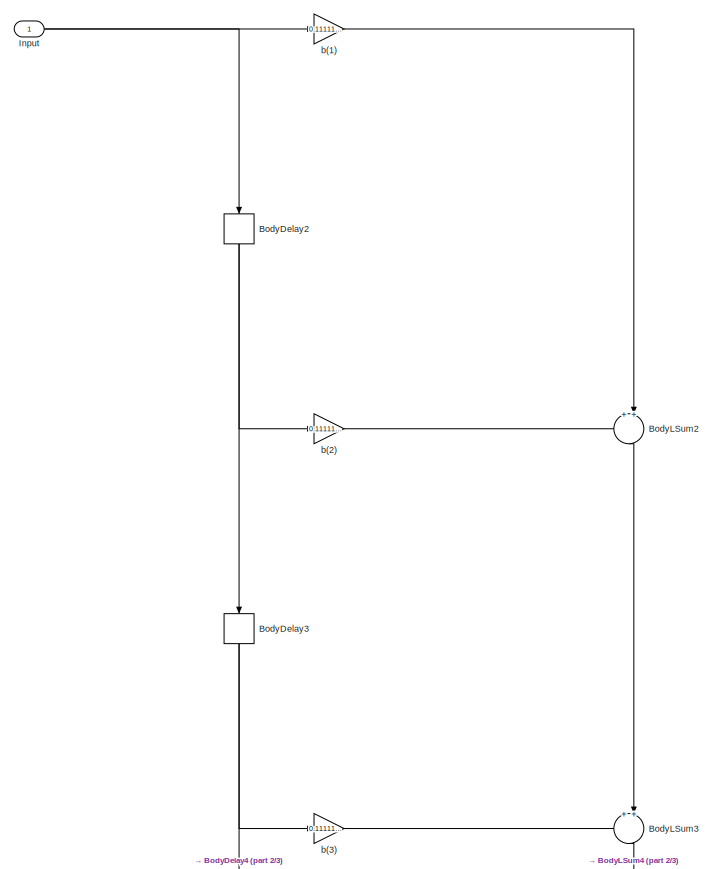
[diagram: MediaMovel - part 1/3, full width, top band]
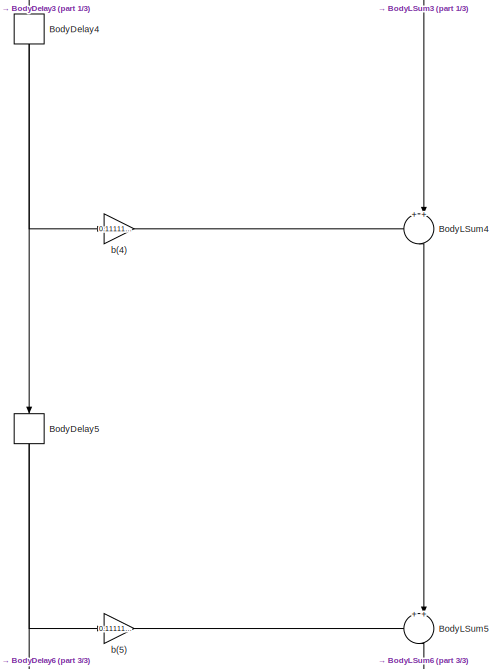
[diagram: MediaMovel - part 2/3, central region]
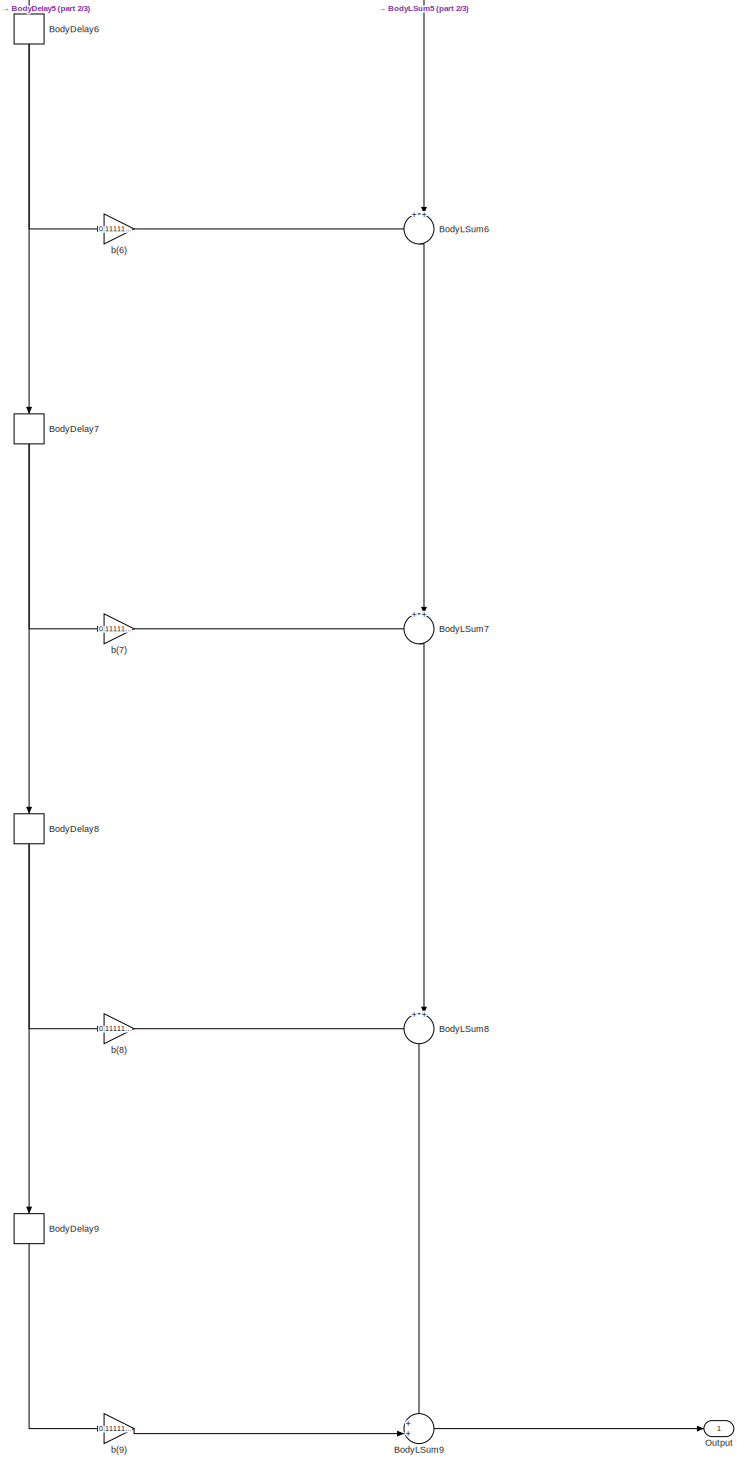
[diagram: MediaMovel - part 3/3, full width, bottom band]
BLOCK [SubSystem] MediaMovel
  ErrorFcn = dspFilterRealizedInBasicElemsAlgLoopErrFcnCallback
  Ports = [1, 1]
  RequestExecContextInheritance = off
  Tag = FilterWizardSubSystem
  UserDataPersistent = on
BLOCK [Delay] MediaMovel/BodyDelay2
  DelayLength = 1
  InitialCondition = 0
  InputPortMap = u0
  InputProcessing = Columns as channels (frame based)
  Ports = [1, 1]
BLOCK [Delay] MediaMovel/BodyDelay3
  DelayLength = 1
  InitialCondition = 0
  InputPortMap = u0
  InputProcessing = Columns as channels (frame based)
  Ports = [1, 1]
BLOCK [Delay] MediaMovel/BodyDelay4
  DelayLength = 1
  InitialCondition = 0
  InputPortMap = u0
  InputProcessing = Columns as channels (frame based)
  Ports = [1, 1]
BLOCK [Delay] MediaMovel/BodyDelay5
  DelayLength = 1
  InitialCondition = 0
  InputPortMap = u0
  InputProcessing = Columns as channels (frame based)
  Ports = [1, 1]
BLOCK [Delay] MediaMovel/BodyDelay6
  DelayLength = 1
  InitialCondition = 0
  InputPortMap = u0
  InputProcessing = Columns as channels (frame based)
  Ports = [1, 1]
BLOCK [Delay] MediaMovel/BodyDelay7
  DelayLength = 1
  InitialCondition = 0
  InputPortMap = u0
  InputProcessing = Columns as channels (frame based)
  Ports = [1, 1]
BLOCK [Delay] MediaMovel/BodyDelay8
  DelayLength = 1
  InitialCondition = 0
  InputPortMap = u0
  InputProcessing = Columns as channels (frame based)
  Ports = [1, 1]
BLOCK [Delay] MediaMovel/BodyDelay9
  DelayLength = 1
  InitialCondition = 0
  InputPortMap = u0
  InputProcessing = Columns as channels (frame based)
  Ports = [1, 1]
BLOCK [Sum] MediaMovel/BodyLSum2
  IconShape = round
  InputSameDT = off
  Inputs = ++|
  Ports = [2, 1]
  RndMeth = Nearest
BLOCK [Sum] MediaMovel/BodyLSum3
  IconShape = round
  InputSameDT = off
  Inputs = ++|
  Ports = [2, 1]
  RndMeth = Nearest
BLOCK [Sum] MediaMovel/BodyLSum4
  IconShape = round
  InputSameDT = off
  Inputs = ++|
  Ports = [2, 1]
  RndMeth = Nearest
BLOCK [Sum] MediaMovel/BodyLSum5
  IconShape = round
  InputSameDT = off
  Inputs = ++|
  Ports = [2, 1]
  RndMeth = Nearest
BLOCK [Sum] MediaMovel/BodyLSum6
  IconShape = round
  InputSameDT = off
  Inputs = ++|
  Ports = [2, 1]
  RndMeth = Nearest
BLOCK [Sum] MediaMovel/BodyLSum7
  IconShape = round
  InputSameDT = off
  Inputs = ++|
  Ports = [2, 1]
  RndMeth = Nearest
BLOCK [Sum] MediaMovel/BodyLSum8
  IconShape = round
  InputSameDT = off
  Inputs = ++|
  Ports = [2, 1]
  RndMeth = Nearest
BLOCK [Sum] MediaMovel/BodyLSum9
  IconShape = round
  InputSameDT = off
  Inputs = ++|
  Ports = [2, 1]
  RndMeth = Nearest
BLOCK [Inport] MediaMovel/Input
  IconDisplay = Port number
BLOCK [Outport] MediaMovel/Output
  IconDisplay = Port number
BLOCK [Gain] MediaMovel/b(1)
  Gain = 0.111111111111111105
  ParamDataTypeStr = double
  RndMeth = Nearest
BLOCK [Gain] MediaMovel/b(2)
  Gain = 0.111111111111111105
  ParamDataTypeStr = double
  RndMeth = Nearest
BLOCK [Gain] MediaMovel/b(3)
  Gain = 0.111111111111111105
  ParamDataTypeStr = double
  RndMeth = Nearest
BLOCK [Gain] MediaMovel/b(4)
  Gain = 0.111111111111111105
  ParamDataTypeStr = double
  RndMeth = Nearest
BLOCK [Gain] MediaMovel/b(5)
  Gain = 0.111111111111111105
  ParamDataTypeStr = double
  RndMeth = Nearest
BLOCK [Gain] MediaMovel/b(6)
  Gain = 0.111111111111111105
  ParamDataTypeStr = double
  RndMeth = Nearest
BLOCK [Gain] MediaMovel/b(7)
  Gain = 0.111111111111111105
  ParamDataTypeStr = double
  RndMeth = Nearest
BLOCK [Gain] MediaMovel/b(8)
  Gain = 0.111111111111111105
  ParamDataTypeStr = double
  RndMeth = Nearest
BLOCK [Gain] MediaMovel/b(9)
  Gain = 0.111111111111111105
  ParamDataTypeStr = double
  RndMeth = Nearest
BLOCK [Reference] Sine Wave  REF=dspsrcs4/Sine Wave
  Amplitude = 1
  Commented = on
  CompMethod = Trigonometric fcn
  Frequency = 13000
  LastOutDataTypeStr = double
  OutComplex = Real
  OutDataTypeStr = double
  Phase = 0
  Ports = [0, 1]
  ResetState = Restart at time zero
  SampleMode = Discrete
  SampleTime = 1/fa
  SamplesPerFrame = 1
  SourceBlock = dspsrcs4/Sine Wave
  SourceType = Sine Wave
  TableSize = Speed
  additionalParams = off
  allowOverrides = on
  dataType = double
  fracBitsMode = Best precision
  numFracBits = 15
  udDataType = sfix(16)
  wordLen = 16
BLOCK [SpectrumAnalyzer] Spectrum Analyzer
  Ports = [1]
  ScopeSpecificationString = spbscopes.SpectrumAnalyzerBlockCfg('CurrentConfiguration', extmgr.ConfigurationSet(extmgr.Configuration('Core','General UI',true),extmgr.Configuration('Core','Source UI',true),extmgr.Configuration('Sources','WiredSimulink',true),extmgr.Configuration('Visuals','Spectrum',true,'AxesProperties',struct('Color',[0 0 0],'XColor',[0.686274509803922 0.686274509803922 0.686274509803922],'YColor',[0.6862745...<+6835ch>
BLOCK [TimeScope] Time Scope
  Commented = on
  DefaultConfigurationName = spbscopes.TimeScopeBlockCfg
  NumInputPorts = 2
  Ports = [2]
  ScopeSpecificationString = spbscopes.TimeScopeBlockCfg('CurrentConfiguration', extmgr.ConfigurationSet(extmgr.Configuration('Core','General UI',true),extmgr.Configuration('Core','Source UI',true),extmgr.Configuration('Sources','WiredSimulink',true),extmgr.Configuration('Visuals','Time Domain',true,'DisplayPropertyDefaults',struct('MinYLimReal','-0.0178118','MaxYLimReal','0.017182','YLabelReal','Amplitude','MinYLimMag','0','...<+1398ch>
  UserDataPersistent = on
BLOCK [TimeScope] Time Scope1
  Commented = on
  DefaultConfigurationName = spbscopes.TimeScopeBlockCfg
  NumInputPorts = 2
  Ports = [2]
  ScopeSpecificationString = spbscopes.TimeScopeBlockCfg('CurrentConfiguration', extmgr.ConfigurationSet(extmgr.Configuration('Core','General UI',true),extmgr.Configuration('Core','Source UI',true),extmgr.Configuration('Sources','WiredSimulink',true,'DataLoggingVariableName','ScopeData1'),extmgr.Configuration('Visuals','Time Domain',true,'DisplayPropertyDefaults',struct('MinYLimReal','-1.50388','MaxYLimReal','1.54617','YLabel...<+1451ch>
  UserDataPersistent = on
BLOCK [Reference] To Audio Device  REF=dspsnks4/To Audio
Device
  Ports = [1]
  SourceBlock = dspsnks4/To Audio\nDevice
  SourceType = To Audio Device
  autoBufferSize = on
  bufferSize = 4096
  defaultOutputChannelMapping = on
  deviceDatatype = Determine from input data type
  deviceName = Default
  inheritSampleRate = on
  outputChannelMapping = 1:2
  outputNumUnderrunSamples = off
  queueDuration = 1.0
  sampleRate = 44100
BLOCK [Reference] Uniform Noise Generator  REF=commnoisgen2/Uniform Noise
Generator
  Ports = [0, 1]
  SourceBlock = commnoisgen2/Uniform Noise\nGenerator
  SourceType = Uniform Noise Generator
  Ts = 1/fa
  frameBased = on
  low = -1
  orient = off
  outDataType = double
  sampPerFrame = spf
  seed = 31
  up = 1
NET Filter/BodyDelayL10:1 -> Filter/BodyDelayL11:1, Filter/BodySumL10:1
NET Filter/BodyDelayL11:1 -> Filter/BodyDelayL12:1, Filter/BodySumL11:1
NET Filter/BodyDelayL12:1 -> Filter/BodyDelayL13:1, Filter/BodySumL12:1
NET Filter/BodyDelayL13:1 -> Filter/BodyDelayL14:1, Filter/BodySumL13:1
NET Filter/BodyDelayL14:1 -> Filter/BodyDelayL15:1, Filter/BodySumL14:1
NET Filter/BodyDelayL15:1 -> Filter/BodyDelayL16:1, Filter/BodySumL15:1
NET Filter/BodyDelayL16:1 -> Filter/BodyDelayL17:1, Filter/BodySumL16:1
NET Filter/BodyDelayL17:1 -> Filter/BodyDelayL18:1, Filter/BodySumL17:1
NET Filter/BodyDelayL18:1 -> Filter/BodyDelayL19:1, Filter/BodySumL18:1
NET Filter/BodyDelayL19:1 -> Filter/BodyDelayL20:1, Filter/BodySumL19:1
NET Filter/BodyDelayL20:1 -> Filter/BodyDelayL21:1, Filter/BodySumL20:1
NET Filter/BodyDelayL21:1 -> Filter/BodyDelayL22:1, Filter/BodySumL21:1
NET Filter/BodyDelayL22:1 -> Filter/BodyDelayL23:1, Filter/BodySumL22:1
NET Filter/BodyDelayL23:1 -> Filter/BodyDelayL24:1, Filter/BodySumL23:1
NET Filter/BodyDelayL24:1 -> Filter/BodyDelayL25:1, Filter/BodySumL24:1
NET Filter/BodyDelayL25:1 -> Filter/BodyDelayL26:1, Filter/BodySumL25:1
NET Filter/BodyDelayL26:1 -> Filter/BodyDelayL27:1, Filter/BodySumL26:1
NET Filter/BodyDelayL27:1 -> Filter/BodyDelayL28:1, Filter/BodySumL27:1
NET Filter/BodyDelayL28:1 -> Filter/BodyDelayL29:1, Filter/BodySumL28:1
NET Filter/BodyDelayL29:1 -> Filter/BodyDelayL30:1, Filter/BodySumL29:1
NET Filter/BodyDelayL2:1 -> Filter/BodyDelayL3:1, Filter/BodySumL2:1
NET Filter/BodyDelayL30:1 -> Filter/BodyDelayL31:1, Filter/BodySumL30:1
NET Filter/BodyDelayL31:1 -> Filter/BodyDelayL32:1, Filter/BodySumL31:1
NET Filter/BodyDelayL32:1 -> Filter/BodyDelayL33:1, Filter/BodySumL32:1
NET Filter/BodyDelayL33:1 -> Filter/BodySumL33:1, Filter/FootDelayL34:1
NET Filter/BodyDelayL3:1 -> Filter/BodyDelayL4:1, Filter/BodySumL3:1
NET Filter/BodyDelayL4:1 -> Filter/BodyDelayL5:1, Filter/BodySumL4:1
NET Filter/BodyDelayL5:1 -> Filter/BodyDelayL6:1, Filter/BodySumL5:1
NET Filter/BodyDelayL6:1 -> Filter/BodyDelayL7:1, Filter/BodySumL6:1
NET Filter/BodyDelayL7:1 -> Filter/BodyDelayL8:1, Filter/BodySumL7:1
NET Filter/BodyDelayL8:1 -> Filter/BodyDelayL9:1, Filter/BodySumL8:1
NET Filter/BodyDelayL9:1 -> Filter/BodyDelayL10:1, Filter/BodySumL9:1
NET Filter/BodyDelayR10:1 -> Filter/BodyDelayR9:1, Filter/BodySumL10:2
NET Filter/BodyDelayR11:1 -> Filter/BodyDelayR10:1, Filter/BodySumL11:2
NET Filter/BodyDelayR12:1 -> Filter/BodyDelayR11:1, Filter/BodySumL12:2
NET Filter/BodyDelayR13:1 -> Filter/BodyDelayR12:1, Filter/BodySumL13:2
NET Filter/BodyDelayR14:1 -> Filter/BodyDelayR13:1, Filter/BodySumL14:2
NET Filter/BodyDelayR15:1 -> Filter/BodyDelayR14:1, Filter/BodySumL15:2
NET Filter/BodyDelayR16:1 -> Filter/BodyDelayR15:1, Filter/BodySumL16:2
NET Filter/BodyDelayR17:1 -> Filter/BodyDelayR16:1, Filter/BodySumL17:2
NET Filter/BodyDelayR18:1 -> Filter/BodyDelayR17:1, Filter/BodySumL18:2
NET Filter/BodyDelayR19:1 -> Filter/BodyDelayR18:1, Filter/BodySumL19:2
NET Filter/BodyDelayR20:1 -> Filter/BodyDelayR19:1, Filter/BodySumL20:2
NET Filter/BodyDelayR21:1 -> Filter/BodyDelayR20:1, Filter/BodySumL21:2
NET Filter/BodyDelayR22:1 -> Filter/BodyDelayR21:1, Filter/BodySumL22:2
NET Filter/BodyDelayR23:1 -> Filter/BodyDelayR22:1, Filter/BodySumL23:2
NET Filter/BodyDelayR24:1 -> Filter/BodyDelayR23:1, Filter/BodySumL24:2
NET Filter/BodyDelayR25:1 -> Filter/BodyDelayR24:1, Filter/BodySumL25:2
NET Filter/BodyDelayR26:1 -> Filter/BodyDelayR25:1, Filter/BodySumL26:2
NET Filter/BodyDelayR27:1 -> Filter/BodyDelayR26:1, Filter/BodySumL27:2
NET Filter/BodyDelayR28:1 -> Filter/BodyDelayR27:1, Filter/BodySumL28:2
NET Filter/BodyDelayR29:1 -> Filter/BodyDelayR28:1, Filter/BodySumL29:2
NET Filter/BodyDelayR2:1 -> Filter/BodySumL2:2, Filter/HeadDelayR1:1
NET Filter/BodyDelayR30:1 -> Filter/BodyDelayR29:1, Filter/BodySumL30:2
NET Filter/BodyDelayR31:1 -> Filter/BodyDelayR30:1, Filter/BodySumL31:2
NET Filter/BodyDelayR32:1 -> Filter/BodyDelayR31:1, Filter/BodySumL32:2
NET Filter/BodyDelayR33:1 -> Filter/BodyDelayR32:1, Filter/BodySumL33:2
NET Filter/BodyDelayR3:1 -> Filter/BodyDelayR2:1, Filter/BodySumL3:2
NET Filter/BodyDelayR4:1 -> Filter/BodyDelayR3:1, Filter/BodySumL4:2
NET Filter/BodyDelayR5:1 -> Filter/BodyDelayR4:1, Filter/BodySumL5:2
NET Filter/BodyDelayR6:1 -> Filter/BodyDelayR5:1, Filter/BodySumL6:2
NET Filter/BodyDelayR7:1 -> Filter/BodyDelayR6:1, Filter/BodySumL7:2
NET Filter/BodyDelayR8:1 -> Filter/BodyDelayR7:1, Filter/BodySumL8:2
NET Filter/BodyDelayR9:1 -> Filter/BodyDelayR8:1, Filter/BodySumL9:2
LINE Filter/BodySumL10:1 -> Filter/h(10):1
LINE Filter/BodySumL11:1 -> Filter/h(11):1
LINE Filter/BodySumL12:1 -> Filter/h(12):1
LINE Filter/BodySumL13:1 -> Filter/h(13):1
LINE Filter/BodySumL14:1 -> Filter/h(14):1
LINE Filter/BodySumL15:1 -> Filter/h(15):1
LINE Filter/BodySumL16:1 -> Filter/h(16):1
LINE Filter/BodySumL17:1 -> Filter/h(17):1
LINE Filter/BodySumL18:1 -> Filter/h(18):1
LINE Filter/BodySumL19:1 -> Filter/h(19):1
LINE Filter/BodySumL20:1 -> Filter/h(20):1
LINE Filter/BodySumL21:1 -> Filter/h(21):1
LINE Filter/BodySumL22:1 -> Filter/h(22):1
LINE Filter/BodySumL23:1 -> Filter/h(23):1
LINE Filter/BodySumL24:1 -> Filter/h(24):1
LINE Filter/BodySumL25:1 -> Filter/h(25):1
LINE Filter/BodySumL26:1 -> Filter/h(26):1
LINE Filter/BodySumL27:1 -> Filter/h(27):1
LINE Filter/BodySumL28:1 -> Filter/h(28):1
LINE Filter/BodySumL29:1 -> Filter/h(29):1
LINE Filter/BodySumL2:1 -> Filter/h(2):1
LINE Filter/BodySumL30:1 -> Filter/h(30):1
LINE Filter/BodySumL31:1 -> Filter/h(31):1
LINE Filter/BodySumL32:1 -> Filter/h(32):1
LINE Filter/BodySumL33:1 -> Filter/h(33):1
LINE Filter/BodySumL3:1 -> Filter/h(3):1
LINE Filter/BodySumL4:1 -> Filter/h(4):1
LINE Filter/BodySumL5:1 -> Filter/h(5):1
LINE Filter/BodySumL6:1 -> Filter/h(6):1
LINE Filter/BodySumL7:1 -> Filter/h(7):1
LINE Filter/BodySumL8:1 -> Filter/h(8):1
LINE Filter/BodySumL9:1 -> Filter/h(9):1
LINE Filter/BodySumR10:1 -> Filter/BodySumR11:2
LINE Filter/BodySumR11:1 -> Filter/BodySumR12:2
LINE Filter/BodySumR12:1 -> Filter/BodySumR13:2
LINE Filter/BodySumR13:1 -> Filter/BodySumR14:2
LINE Filter/BodySumR14:1 -> Filter/BodySumR15:2
LINE Filter/BodySumR15:1 -> Filter/BodySumR16:2
LINE Filter/BodySumR16:1 -> Filter/BodySumR17:2
LINE Filter/BodySumR17:1 -> Filter/BodySumR18:2
LINE Filter/BodySumR18:1 -> Filter/BodySumR19:2
LINE Filter/BodySumR19:1 -> Filter/BodySumR20:2
LINE Filter/BodySumR20:1 -> Filter/BodySumR21:2
LINE Filter/BodySumR21:1 -> Filter/BodySumR22:2
LINE Filter/BodySumR22:1 -> Filter/BodySumR23:2
LINE Filter/BodySumR23:1 -> Filter/BodySumR24:2
LINE Filter/BodySumR24:1 -> Filter/BodySumR25:2
LINE Filter/BodySumR25:1 -> Filter/BodySumR26:2
LINE Filter/BodySumR26:1 -> Filter/BodySumR27:2
LINE Filter/BodySumR27:1 -> Filter/BodySumR28:2
LINE Filter/BodySumR28:1 -> Filter/BodySumR29:2
LINE Filter/BodySumR29:1 -> Filter/BodySumR30:2
LINE Filter/BodySumR2:1 -> Filter/BodySumR3:2
LINE Filter/BodySumR30:1 -> Filter/BodySumR31:2
LINE Filter/BodySumR31:1 -> Filter/BodySumR32:2
LINE Filter/BodySumR32:1 -> Filter/BodySumR33:2
LINE Filter/BodySumR33:1 -> Filter/FootSumR34:2
LINE Filter/BodySumR3:1 -> Filter/BodySumR4:2
LINE Filter/BodySumR4:1 -> Filter/BodySumR5:2
LINE Filter/BodySumR5:1 -> Filter/BodySumR6:2
LINE Filter/BodySumR6:1 -> Filter/BodySumR7:2
LINE Filter/BodySumR7:1 -> Filter/BodySumR8:2
LINE Filter/BodySumR8:1 -> Filter/BodySumR9:2
LINE Filter/BodySumR9:1 -> Filter/BodySumR10:2
NET Filter/FootDelayL34:1 -> Filter/FootDelayM34:1, Filter/FootSumL34:1
NET Filter/FootDelayM34:1 -> Filter/BodyDelayR33:1, Filter/FootSumL34:2
LINE Filter/FootSumL34:1 -> Filter/h(34):1
LINE Filter/FootSumR34:1 -> Filter/Output:1
LINE Filter/HeadDelayR1:1 -> Filter/HeadSumL1:2
LINE Filter/HeadSumL1:1 -> Filter/h(1):1
NET Filter/Input:1 -> Filter/BodyDelayL2:1, Filter/HeadSumL1:1
LINE Filter/h(1):1 -> Filter/BodySumR2:2
LINE Filter/h(10):1 -> Filter/BodySumR10:1
LINE Filter/h(11):1 -> Filter/BodySumR11:1
LINE Filter/h(12):1 -> Filter/BodySumR12:1
LINE Filter/h(13):1 -> Filter/BodySumR13:1
LINE Filter/h(14):1 -> Filter/BodySumR14:1
LINE Filter/h(15):1 -> Filter/BodySumR15:1
LINE Filter/h(16):1 -> Filter/BodySumR16:1
LINE Filter/h(17):1 -> Filter/BodySumR17:1
LINE Filter/h(18):1 -> Filter/BodySumR18:1
LINE Filter/h(19):1 -> Filter/BodySumR19:1
LINE Filter/h(2):1 -> Filter/BodySumR2:1
LINE Filter/h(20):1 -> Filter/BodySumR20:1
LINE Filter/h(21):1 -> Filter/BodySumR21:1
LINE Filter/h(22):1 -> Filter/BodySumR22:1
LINE Filter/h(23):1 -> Filter/BodySumR23:1
LINE Filter/h(24):1 -> Filter/BodySumR24:1
LINE Filter/h(25):1 -> Filter/BodySumR25:1
LINE Filter/h(26):1 -> Filter/BodySumR26:1
LINE Filter/h(27):1 -> Filter/BodySumR27:1
LINE Filter/h(28):1 -> Filter/BodySumR28:1
LINE Filter/h(29):1 -> Filter/BodySumR29:1
LINE Filter/h(3):1 -> Filter/BodySumR3:1
LINE Filter/h(30):1 -> Filter/BodySumR30:1
LINE Filter/h(31):1 -> Filter/BodySumR31:1
LINE Filter/h(32):1 -> Filter/BodySumR32:1
LINE Filter/h(33):1 -> Filter/BodySumR33:1
LINE Filter/h(34):1 -> Filter/FootSumR34:1
LINE Filter/h(4):1 -> Filter/BodySumR4:1
LINE Filter/h(5):1 -> Filter/BodySumR5:1
LINE Filter/h(6):1 -> Filter/BodySumR6:1
LINE Filter/h(7):1 -> Filter/BodySumR7:1
LINE Filter/h(8):1 -> Filter/BodySumR8:1
LINE Filter/h(9):1 -> Filter/BodySumR9:1
LINE Filter:1 -> Time Scope:1
NET FilterBP/BodyDelay100:1 -> FilterBP/BodyDelay101:1, FilterBP/b(100):1
NET FilterBP/BodyDelay101:1 -> FilterBP/BodyDelay102:1, FilterBP/b(101):1
NET FilterBP/BodyDelay102:1 -> FilterBP/BodyDelay103:1, FilterBP/b(102):1
NET FilterBP/BodyDelay103:1 -> FilterBP/BodyDelay104:1, FilterBP/b(103):1
NET FilterBP/BodyDelay104:1 -> FilterBP/BodyDelay105:1, FilterBP/b(104):1
NET FilterBP/BodyDelay105:1 -> FilterBP/BodyDelay106:1, FilterBP/b(105):1
NET FilterBP/BodyDelay106:1 -> FilterBP/BodyDelay107:1, FilterBP/b(106):1
NET FilterBP/BodyDelay107:1 -> FilterBP/BodyDelay108:1, FilterBP/b(107):1
NET FilterBP/BodyDelay108:1 -> FilterBP/BodyDelay109:1, FilterBP/b(108):1
NET FilterBP/BodyDelay109:1 -> FilterBP/BodyDelay110:1, FilterBP/b(109):1
NET FilterBP/BodyDelay10:1 -> FilterBP/BodyDelay12:1, FilterBP/b(10):1
NET FilterBP/BodyDelay110:1 -> FilterBP/BodyDelay111:1, FilterBP/b(110):1
NET FilterBP/BodyDelay111:1 -> FilterBP/BodyDelay112:1, FilterBP/b(111):1
NET FilterBP/BodyDelay112:1 -> FilterBP/BodyDelay113:1, FilterBP/b(112):1
NET FilterBP/BodyDelay113:1 -> FilterBP/BodyDelay114:1, FilterBP/b(113):1
NET FilterBP/BodyDelay114:1 -> FilterBP/BodyDelay115:1, FilterBP/b(114):1
NET FilterBP/BodyDelay115:1 -> FilterBP/BodyDelay116:1, FilterBP/b(115):1
NET FilterBP/BodyDelay116:1 -> FilterBP/BodyDelay117:1, FilterBP/b(116):1
NET FilterBP/BodyDelay117:1 -> FilterBP/BodyDelay118:1, FilterBP/b(117):1
NET FilterBP/BodyDelay118:1 -> FilterBP/BodyDelay119:1, FilterBP/b(118):1
NET FilterBP/BodyDelay119:1 -> FilterBP/BodyDelay120:1, FilterBP/b(119):1
NET FilterBP/BodyDelay120:1 -> FilterBP/BodyDelay121:1, FilterBP/b(120):1
NET FilterBP/BodyDelay121:1 -> FilterBP/BodyDelay122:1, FilterBP/b(121):1
NET FilterBP/BodyDelay122:1 -> FilterBP/BodyDelay123:1, FilterBP/b(122):1
NET FilterBP/BodyDelay123:1 -> FilterBP/BodyDelay124:1, FilterBP/b(123):1
NET FilterBP/BodyDelay124:1 -> FilterBP/BodyDelay125:1, FilterBP/b(124):1
NET FilterBP/BodyDelay125:1 -> FilterBP/BodyDelay126:1, FilterBP/b(125):1
NET FilterBP/BodyDelay126:1 -> FilterBP/BodyDelay127:1, FilterBP/b(126):1
NET FilterBP/BodyDelay127:1 -> FilterBP/BodyDelay128:1, FilterBP/b(127):1
NET FilterBP/BodyDelay128:1 -> FilterBP/BodyDelay129:1, FilterBP/b(128):1
NET FilterBP/BodyDelay129:1 -> FilterBP/BodyDelay130:1, FilterBP/b(129):1
NET FilterBP/BodyDelay12:1 -> FilterBP/BodyDelay13:1, FilterBP/b(12):1
NET FilterBP/BodyDelay130:1 -> FilterBP/BodyDelay132:1, FilterBP/b(130):1
NET FilterBP/BodyDelay132:1 -> FilterBP/BodyDelay133:1, FilterBP/b(132):1
NET FilterBP/BodyDelay133:1 -> FilterBP/BodyDelay134:1, FilterBP/b(133):1
NET FilterBP/BodyDelay134:1 -> FilterBP/BodyDelay135:1, FilterBP/b(134):1
NET FilterBP/BodyDelay135:1 -> FilterBP/BodyDelay136:1, FilterBP/b(135):1
NET FilterBP/BodyDelay136:1 -> FilterBP/BodyDelay137:1, FilterBP/b(136):1
NET FilterBP/BodyDelay137:1 -> FilterBP/BodyDelay138:1, FilterBP/b(137):1
NET FilterBP/BodyDelay138:1 -> FilterBP/BodyDelay139:1, FilterBP/b(138):1
NET FilterBP/BodyDelay139:1 -> FilterBP/BodyDelay140:1, FilterBP/b(139):1
NET FilterBP/BodyDelay13:1 -> FilterBP/BodyDelay14:1, FilterBP/b(13):1
NET FilterBP/BodyDelay140:1 -> FilterBP/BodyDelay141:1, FilterBP/b(140):1
NET FilterBP/BodyDelay141:1 -> FilterBP/BodyDelay142:1, FilterBP/b(141):1
NET FilterBP/BodyDelay142:1 -> FilterBP/BodyDelay143:1, FilterBP/b(142):1
NET FilterBP/BodyDelay143:1 -> FilterBP/BodyDelay144:1, FilterBP/b(143):1
NET FilterBP/BodyDelay144:1 -> FilterBP/BodyDelay145:1, FilterBP/b(144):1
NET FilterBP/BodyDelay145:1 -> FilterBP/BodyDelay146:1, FilterBP/b(145):1
NET FilterBP/BodyDelay146:1 -> FilterBP/BodyDelay147:1, FilterBP/b(146):1
NET FilterBP/BodyDelay147:1 -> FilterBP/BodyDelay148:1, FilterBP/b(147):1
NET FilterBP/BodyDelay148:1 -> FilterBP/BodyDelay149:1, FilterBP/b(148):1
NET FilterBP/BodyDelay149:1 -> FilterBP/BodyDelay150:1, FilterBP/b(149):1
NET FilterBP/BodyDelay14:1 -> FilterBP/BodyDelay15:1, FilterBP/b(14):1
NET FilterBP/BodyDelay150:1 -> FilterBP/BodyDelay151:1, FilterBP/b(150):1
NET FilterBP/BodyDelay151:1 -> FilterBP/BodyDelay152:1, FilterBP/b(151):1
NET FilterBP/BodyDelay152:1 -> FilterBP/BodyDelay153:1, FilterBP/b(152):1
NET FilterBP/BodyDelay153:1 -> FilterBP/BodyDelay154:1, FilterBP/b(153):1
NET FilterBP/BodyDelay154:1 -> FilterBP/BodyDelay155:1, FilterBP/b(154):1
NET FilterBP/BodyDelay155:1 -> FilterBP/BodyDelay156:1, FilterBP/b(155):1
NET FilterBP/BodyDelay156:1 -> FilterBP/BodyDelay157:1, FilterBP/b(156):1
NET FilterBP/BodyDelay157:1 -> FilterBP/BodyDelay158:1, FilterBP/b(157):1
NET FilterBP/BodyDelay158:1 -> FilterBP/BodyDelay159:1, FilterBP/b(158):1
NET FilterBP/BodyDelay159:1 -> FilterBP/BodyDelay160:1, FilterBP/b(159):1
NET FilterBP/BodyDelay15:1 -> FilterBP/BodyDelay16:1, FilterBP/b(15):1
NET FilterBP/BodyDelay160:1 -> FilterBP/BodyDelay161:1, FilterBP/b(160):1
NET FilterBP/BodyDelay161:1 -> FilterBP/BodyDelay162:1, FilterBP/b(161):1
NET FilterBP/BodyDelay162:1 -> FilterBP/BodyDelay163:1, FilterBP/b(162):1
NET FilterBP/BodyDelay163:1 -> FilterBP/BodyDelay164:1, FilterBP/b(163):1
NET FilterBP/BodyDelay164:1 -> FilterBP/BodyDelay165:1, FilterBP/b(164):1
NET FilterBP/BodyDelay165:1 -> FilterBP/BodyDelay166:1, FilterBP/b(165):1
NET FilterBP/BodyDelay166:1 -> FilterBP/BodyDelay167:1, FilterBP/b(166):1
NET FilterBP/BodyDelay167:1 -> FilterBP/BodyDelay168:1, FilterBP/b(167):1
NET FilterBP/BodyDelay168:1 -> FilterBP/BodyDelay169:1, FilterBP/b(168):1
NET FilterBP/BodyDelay169:1 -> FilterBP/BodyDelay170:1, FilterBP/b(169):1
NET FilterBP/BodyDelay16:1 -> FilterBP/BodyDelay17:1, FilterBP/b(16):1
NET FilterBP/BodyDelay170:1 -> FilterBP/BodyDelay171:1, FilterBP/b(170):1
NET FilterBP/BodyDelay171:1 -> FilterBP/BodyDelay172:1, FilterBP/b(171):1
NET FilterBP/BodyDelay172:1 -> FilterBP/BodyDelay173:1, FilterBP/b(172):1
NET FilterBP/BodyDelay173:1 -> FilterBP/BodyDelay174:1, FilterBP/b(173):1
NET FilterBP/BodyDelay174:1 -> FilterBP/BodyDelay175:1, FilterBP/b(174):1
NET FilterBP/BodyDelay175:1 -> FilterBP/BodyDelay176:1, FilterBP/b(175):1
NET FilterBP/BodyDelay176:1 -> FilterBP/BodyDelay177:1, FilterBP/b(176):1
NET FilterBP/BodyDelay177:1 -> FilterBP/BodyDelay178:1, FilterBP/b(177):1
NET FilterBP/BodyDelay178:1 -> FilterBP/BodyDelay179:1, FilterBP/b(178):1
NET FilterBP/BodyDelay179:1 -> FilterBP/BodyDelay180:1, FilterBP/b(179):1
NET FilterBP/BodyDelay17:1 -> FilterBP/BodyDelay18:1, FilterBP/b(17):1
NET FilterBP/BodyDelay180:1 -> FilterBP/BodyDelay181:1, FilterBP/b(180):1
NET FilterBP/BodyDelay181:1 -> FilterBP/BodyDelay182:1, FilterBP/b(181):1
NET FilterBP/BodyDelay182:1 -> FilterBP/BodyDelay183:1, FilterBP/b(182):1
NET FilterBP/BodyDelay183:1 -> FilterBP/BodyDelay184:1, FilterBP/b(183):1
NET FilterBP/BodyDelay184:1 -> FilterBP/BodyDelay185:1, FilterBP/b(184):1
NET FilterBP/BodyDelay185:1 -> FilterBP/BodyDelay186:1, FilterBP/b(185):1
NET FilterBP/BodyDelay186:1 -> FilterBP/BodyDelay187:1, FilterBP/b(186):1
NET FilterBP/BodyDelay187:1 -> FilterBP/BodyDelay188:1, FilterBP/b(187):1
NET FilterBP/BodyDelay188:1 -> FilterBP/BodyDelay189:1, FilterBP/b(188):1
NET FilterBP/BodyDelay189:1 -> FilterBP/BodyDelay190:1, FilterBP/b(189):1
NET FilterBP/BodyDelay18:1 -> FilterBP/BodyDelay19:1, FilterBP/b(18):1
NET FilterBP/BodyDelay190:1 -> FilterBP/BodyDelay192:1, FilterBP/b(190):1
NET FilterBP/BodyDelay192:1 -> FilterBP/BodyDelay193:1, FilterBP/b(192):1
NET FilterBP/BodyDelay193:1 -> FilterBP/BodyDelay194:1, FilterBP/b(193):1
NET FilterBP/BodyDelay194:1 -> FilterBP/BodyDelay195:1, FilterBP/b(194):1
NET FilterBP/BodyDelay195:1 -> FilterBP/BodyDelay196:1, FilterBP/b(195):1
NET FilterBP/BodyDelay196:1 -> FilterBP/BodyDelay197:1, FilterBP/b(196):1
NET FilterBP/BodyDelay197:1 -> FilterBP/BodyDelay198:1, FilterBP/b(197):1
NET FilterBP/BodyDelay198:1 -> FilterBP/BodyDelay199:1, FilterBP/b(198):1
NET FilterBP/BodyDelay199:1 -> FilterBP/BodyDelay200:1, FilterBP/b(199):1
NET FilterBP/BodyDelay19:1 -> FilterBP/BodyDelay20:1, FilterBP/b(19):1
NET FilterBP/BodyDelay200:1 -> FilterBP/BodyDelay201:1, FilterBP/b(200):1
LINE FilterBP/BodyDelay201:1 -> FilterBP/b(201):1
NET FilterBP/BodyDelay20:1 -> FilterBP/BodyDelay21:1, FilterBP/b(20):1
NET FilterBP/BodyDelay21:1 -> FilterBP/BodyDelay22:1, FilterBP/b(21):1
NET FilterBP/BodyDelay22:1 -> FilterBP/BodyDelay23:1, FilterBP/b(22):1
NET FilterBP/BodyDelay23:1 -> FilterBP/BodyDelay24:1, FilterBP/b(23):1
NET FilterBP/BodyDelay24:1 -> FilterBP/BodyDelay25:1, FilterBP/b(24):1
NET FilterBP/BodyDelay25:1 -> FilterBP/BodyDelay26:1, FilterBP/b(25):1
NET FilterBP/BodyDelay26:1 -> FilterBP/BodyDelay27:1, FilterBP/b(26):1
NET FilterBP/BodyDelay27:1 -> FilterBP/BodyDelay28:1, FilterBP/b(27):1
NET FilterBP/BodyDelay28:1 -> FilterBP/BodyDelay29:1, FilterBP/b(28):1
NET FilterBP/BodyDelay29:1 -> FilterBP/BodyDelay30:1, FilterBP/b(29):1
NET FilterBP/BodyDelay2:1 -> FilterBP/BodyDelay3:1, FilterBP/b(2):1
NET FilterBP/BodyDelay30:1 -> FilterBP/BodyDelay31:1, FilterBP/b(30):1
NET FilterBP/BodyDelay31:1 -> FilterBP/BodyDelay32:1, FilterBP/b(31):1
NET FilterBP/BodyDelay32:1 -> FilterBP/BodyDelay33:1, FilterBP/b(32):1
NET FilterBP/BodyDelay33:1 -> FilterBP/BodyDelay34:1, FilterBP/b(33):1
NET FilterBP/BodyDelay34:1 -> FilterBP/BodyDelay35:1, FilterBP/b(34):1
NET FilterBP/BodyDelay35:1 -> FilterBP/BodyDelay36:1, FilterBP/b(35):1
NET FilterBP/BodyDelay36:1 -> FilterBP/BodyDelay37:1, FilterBP/b(36):1
NET FilterBP/BodyDelay37:1 -> FilterBP/BodyDelay38:1, FilterBP/b(37):1
NET FilterBP/BodyDelay38:1 -> FilterBP/BodyDelay39:1, FilterBP/b(38):1
NET FilterBP/BodyDelay39:1 -> FilterBP/BodyDelay40:1, FilterBP/b(39):1
NET FilterBP/BodyDelay3:1 -> FilterBP/BodyDelay4:1, FilterBP/b(3):1
NET FilterBP/BodyDelay40:1 -> FilterBP/BodyDelay41:1, FilterBP/b(40):1
NET FilterBP/BodyDelay41:1 -> FilterBP/BodyDelay42:1, FilterBP/b(41):1
NET FilterBP/BodyDelay42:1 -> FilterBP/BodyDelay43:1, FilterBP/b(42):1
NET FilterBP/BodyDelay43:1 -> FilterBP/BodyDelay44:1, FilterBP/b(43):1
NET FilterBP/BodyDelay44:1 -> FilterBP/BodyDelay45:1, FilterBP/b(44):1
NET FilterBP/BodyDelay45:1 -> FilterBP/BodyDelay46:1, FilterBP/b(45):1
NET FilterBP/BodyDelay46:1 -> FilterBP/BodyDelay47:1, FilterBP/b(46):1
NET FilterBP/BodyDelay47:1 -> FilterBP/BodyDelay48:1, FilterBP/b(47):1
NET FilterBP/BodyDelay48:1 -> FilterBP/BodyDelay49:1, FilterBP/b(48):1
NET FilterBP/BodyDelay49:1 -> FilterBP/BodyDelay50:1, FilterBP/b(49):1
NET FilterBP/BodyDelay4:1 -> FilterBP/BodyDelay5:1, FilterBP/b(4):1
NET FilterBP/BodyDelay50:1 -> FilterBP/BodyDelay51:1, FilterBP/b(50):1
NET FilterBP/BodyDelay51:1 -> FilterBP/BodyDelay52:1, FilterBP/b(51):1
NET FilterBP/BodyDelay52:1 -> FilterBP/BodyDelay53:1, FilterBP/b(52):1
NET FilterBP/BodyDelay53:1 -> FilterBP/BodyDelay54:1, FilterBP/b(53):1
NET FilterBP/BodyDelay54:1 -> FilterBP/BodyDelay55:1, FilterBP/b(54):1
NET FilterBP/BodyDelay55:1 -> FilterBP/BodyDelay56:1, FilterBP/b(55):1
NET FilterBP/BodyDelay56:1 -> FilterBP/BodyDelay57:1, FilterBP/b(56):1
NET FilterBP/BodyDelay57:1 -> FilterBP/BodyDelay58:1, FilterBP/b(57):1
NET FilterBP/BodyDelay58:1 -> FilterBP/BodyDelay59:1, FilterBP/b(58):1
NET FilterBP/BodyDelay59:1 -> FilterBP/BodyDelay60:1, FilterBP/b(59):1
NET FilterBP/BodyDelay5:1 -> FilterBP/BodyDelay6:1, FilterBP/b(5):1
NET FilterBP/BodyDelay60:1 -> FilterBP/BodyDelay61:1, FilterBP/b(60):1
NET FilterBP/BodyDelay61:1 -> FilterBP/BodyDelay62:1, FilterBP/b(61):1
NET FilterBP/BodyDelay62:1 -> FilterBP/BodyDelay63:1, FilterBP/b(62):1
NET FilterBP/BodyDelay63:1 -> FilterBP/BodyDelay64:1, FilterBP/b(63):1
NET FilterBP/BodyDelay64:1 -> FilterBP/BodyDelay65:1, FilterBP/b(64):1
NET FilterBP/BodyDelay65:1 -> FilterBP/BodyDelay66:1, FilterBP/b(65):1
NET FilterBP/BodyDelay66:1 -> FilterBP/BodyDelay67:1, FilterBP/b(66):1
NET FilterBP/BodyDelay67:1 -> FilterBP/BodyDelay68:1, FilterBP/b(67):1
NET FilterBP/BodyDelay68:1 -> FilterBP/BodyDelay69:1, FilterBP/b(68):1
NET FilterBP/BodyDelay69:1 -> FilterBP/BodyDelay70:1, FilterBP/b(69):1
NET FilterBP/BodyDelay6:1 -> FilterBP/BodyDelay7:1, FilterBP/b(6):1
NET FilterBP/BodyDelay70:1 -> FilterBP/BodyDelay72:1, FilterBP/b(70):1
NET FilterBP/BodyDelay72:1 -> FilterBP/BodyDelay73:1, FilterBP/b(72):1
NET FilterBP/BodyDelay73:1 -> FilterBP/BodyDelay74:1, FilterBP/b(73):1
NET FilterBP/BodyDelay74:1 -> FilterBP/BodyDelay75:1, FilterBP/b(74):1
NET FilterBP/BodyDelay75:1 -> FilterBP/BodyDelay76:1, FilterBP/b(75):1
NET FilterBP/BodyDelay76:1 -> FilterBP/BodyDelay77:1, FilterBP/b(76):1
NET FilterBP/BodyDelay77:1 -> FilterBP/BodyDelay78:1, FilterBP/b(77):1
NET FilterBP/BodyDelay78:1 -> FilterBP/BodyDelay79:1, FilterBP/b(78):1
NET FilterBP/BodyDelay79:1 -> FilterBP/BodyDelay80:1, FilterBP/b(79):1
NET FilterBP/BodyDelay7:1 -> FilterBP/BodyDelay8:1, FilterBP/b(7):1
NET FilterBP/BodyDelay80:1 -> FilterBP/BodyDelay81:1, FilterBP/b(80):1
NET FilterBP/BodyDelay81:1 -> FilterBP/BodyDelay82:1, FilterBP/b(81):1
NET FilterBP/BodyDelay82:1 -> FilterBP/BodyDelay83:1, FilterBP/b(82):1
NET FilterBP/BodyDelay83:1 -> FilterBP/BodyDelay84:1, FilterBP/b(83):1
NET FilterBP/BodyDelay84:1 -> FilterBP/BodyDelay85:1, FilterBP/b(84):1
NET FilterBP/BodyDelay85:1 -> FilterBP/BodyDelay86:1, FilterBP/b(85):1
NET FilterBP/BodyDelay86:1 -> FilterBP/BodyDelay87:1, FilterBP/b(86):1
NET FilterBP/BodyDelay87:1 -> FilterBP/BodyDelay88:1, FilterBP/b(87):1
NET FilterBP/BodyDelay88:1 -> FilterBP/BodyDelay89:1, FilterBP/b(88):1
NET FilterBP/BodyDelay89:1 -> FilterBP/BodyDelay90:1, FilterBP/b(89):1
NET FilterBP/BodyDelay8:1 -> FilterBP/BodyDelay9:1, FilterBP/b(8):1
NET FilterBP/BodyDelay90:1 -> FilterBP/BodyDelay91:1, FilterBP/b(90):1
NET FilterBP/BodyDelay91:1 -> FilterBP/BodyDelay92:1, FilterBP/b(91):1
NET FilterBP/BodyDelay92:1 -> FilterBP/BodyDelay93:1, FilterBP/b(92):1
NET FilterBP/BodyDelay93:1 -> FilterBP/BodyDelay94:1, FilterBP/b(93):1
NET FilterBP/BodyDelay94:1 -> FilterBP/BodyDelay95:1, FilterBP/b(94):1
NET FilterBP/BodyDelay95:1 -> FilterBP/BodyDelay96:1, FilterBP/b(95):1
NET FilterBP/BodyDelay96:1 -> FilterBP/BodyDelay97:1, FilterBP/b(96):1
NET FilterBP/BodyDelay97:1 -> FilterBP/BodyDelay98:1, FilterBP/b(97):1
NET FilterBP/BodyDelay98:1 -> FilterBP/BodyDelay99:1, FilterBP/b(98):1
NET FilterBP/BodyDelay99:1 -> FilterBP/BodyDelay100:1, FilterBP/b(99):1
NET FilterBP/BodyDelay9:1 -> FilterBP/BodyDelay10:1, FilterBP/b(9):1
LINE FilterBP/BodyLSum100:1 -> FilterBP/BodyLSum101:2
LINE FilterBP/BodyLSum101:1 -> FilterBP/BodyLSum102:2
LINE FilterBP/BodyLSum102:1 -> FilterBP/BodyLSum103:2
LINE FilterBP/BodyLSum103:1 -> FilterBP/BodyLSum104:2
LINE FilterBP/BodyLSum104:1 -> FilterBP/BodyLSum105:2
LINE FilterBP/BodyLSum105:1 -> FilterBP/BodyLSum106:2
LINE FilterBP/BodyLSum106:1 -> FilterBP/BodyLSum107:2
LINE FilterBP/BodyLSum107:1 -> FilterBP/BodyLSum108:2
LINE FilterBP/BodyLSum108:1 -> FilterBP/BodyLSum109:2
LINE FilterBP/BodyLSum109:1 -> FilterBP/BodyLSum110:2
LINE FilterBP/BodyLSum10:1 -> FilterBP/BodyLSum12:2
LINE FilterBP/BodyLSum110:1 -> FilterBP/BodyLSum111:2
LINE FilterBP/BodyLSum111:1 -> FilterBP/BodyLSum112:2
LINE FilterBP/BodyLSum112:1 -> FilterBP/BodyLSum113:2
LINE FilterBP/BodyLSum113:1 -> FilterBP/BodyLSum114:2
LINE FilterBP/BodyLSum114:1 -> FilterBP/BodyLSum115:2
LINE FilterBP/BodyLSum115:1 -> FilterBP/BodyLSum116:2
LINE FilterBP/BodyLSum116:1 -> FilterBP/BodyLSum117:2
LINE FilterBP/BodyLSum117:1 -> FilterBP/BodyLSum118:2
LINE FilterBP/BodyLSum118:1 -> FilterBP/BodyLSum119:2
LINE FilterBP/BodyLSum119:1 -> FilterBP/BodyLSum120:2
LINE FilterBP/BodyLSum120:1 -> FilterBP/BodyLSum121:2
LINE FilterBP/BodyLSum121:1 -> FilterBP/BodyLSum122:2
LINE FilterBP/BodyLSum122:1 -> FilterBP/BodyLSum123:2
LINE FilterBP/BodyLSum123:1 -> FilterBP/BodyLSum124:2
LINE FilterBP/BodyLSum124:1 -> FilterBP/BodyLSum125:2
LINE FilterBP/BodyLSum125:1 -> FilterBP/BodyLSum126:2
LINE FilterBP/BodyLSum126:1 -> FilterBP/BodyLSum127:2
LINE FilterBP/BodyLSum127:1 -> FilterBP/BodyLSum128:2
LINE FilterBP/BodyLSum128:1 -> FilterBP/BodyLSum129:2
LINE FilterBP/BodyLSum129:1 -> FilterBP/BodyLSum130:2
LINE FilterBP/BodyLSum12:1 -> FilterBP/BodyLSum13:2
LINE FilterBP/BodyLSum130:1 -> FilterBP/BodyLSum132:2
LINE FilterBP/BodyLSum132:1 -> FilterBP/BodyLSum133:2
LINE FilterBP/BodyLSum133:1 -> FilterBP/BodyLSum134:2
LINE FilterBP/BodyLSum134:1 -> FilterBP/BodyLSum135:2
LINE FilterBP/BodyLSum135:1 -> FilterBP/BodyLSum136:2
LINE FilterBP/BodyLSum136:1 -> FilterBP/BodyLSum137:2
LINE FilterBP/BodyLSum137:1 -> FilterBP/BodyLSum138:2
LINE FilterBP/BodyLSum138:1 -> FilterBP/BodyLSum139:2
LINE FilterBP/BodyLSum139:1 -> FilterBP/BodyLSum140:2
LINE FilterBP/BodyLSum13:1 -> FilterBP/BodyLSum14:2
LINE FilterBP/BodyLSum140:1 -> FilterBP/BodyLSum141:2
LINE FilterBP/BodyLSum141:1 -> FilterBP/BodyLSum142:2
LINE FilterBP/BodyLSum142:1 -> FilterBP/BodyLSum143:2
LINE FilterBP/BodyLSum143:1 -> FilterBP/BodyLSum144:2
LINE FilterBP/BodyLSum144:1 -> FilterBP/BodyLSum145:2
LINE FilterBP/BodyLSum145:1 -> FilterBP/BodyLSum146:2
LINE FilterBP/BodyLSum146:1 -> FilterBP/BodyLSum147:2
LINE FilterBP/BodyLSum147:1 -> FilterBP/BodyLSum148:2
LINE FilterBP/BodyLSum148:1 -> FilterBP/BodyLSum149:2
LINE FilterBP/BodyLSum149:1 -> FilterBP/BodyLSum150:2
LINE FilterBP/BodyLSum14:1 -> FilterBP/BodyLSum15:2
LINE FilterBP/BodyLSum150:1 -> FilterBP/BodyLSum151:2
LINE FilterBP/BodyLSum151:1 -> FilterBP/BodyLSum152:2
LINE FilterBP/BodyLSum152:1 -> FilterBP/BodyLSum153:2
LINE FilterBP/BodyLSum153:1 -> FilterBP/BodyLSum154:2
LINE FilterBP/BodyLSum154:1 -> FilterBP/BodyLSum155:2
LINE FilterBP/BodyLSum155:1 -> FilterBP/BodyLSum156:2
LINE FilterBP/BodyLSum156:1 -> FilterBP/BodyLSum157:2
LINE FilterBP/BodyLSum157:1 -> FilterBP/BodyLSum158:2
LINE FilterBP/BodyLSum158:1 -> FilterBP/BodyLSum159:2
LINE FilterBP/BodyLSum159:1 -> FilterBP/BodyLSum160:2
LINE FilterBP/BodyLSum15:1 -> FilterBP/BodyLSum16:2
LINE FilterBP/BodyLSum160:1 -> FilterBP/BodyLSum161:2
LINE FilterBP/BodyLSum161:1 -> FilterBP/BodyLSum162:2
LINE FilterBP/BodyLSum162:1 -> FilterBP/BodyLSum163:2
LINE FilterBP/BodyLSum163:1 -> FilterBP/BodyLSum164:2
LINE FilterBP/BodyLSum164:1 -> FilterBP/BodyLSum165:2
LINE FilterBP/BodyLSum165:1 -> FilterBP/BodyLSum166:2
LINE FilterBP/BodyLSum166:1 -> FilterBP/BodyLSum167:2
LINE FilterBP/BodyLSum167:1 -> FilterBP/BodyLSum168:2
LINE FilterBP/BodyLSum168:1 -> FilterBP/BodyLSum169:2
LINE FilterBP/BodyLSum169:1 -> FilterBP/BodyLSum170:2
LINE FilterBP/BodyLSum16:1 -> FilterBP/BodyLSum17:2
LINE FilterBP/BodyLSum170:1 -> FilterBP/BodyLSum171:2
LINE FilterBP/BodyLSum171:1 -> FilterBP/BodyLSum172:2
LINE FilterBP/BodyLSum172:1 -> FilterBP/BodyLSum173:2
LINE FilterBP/BodyLSum173:1 -> FilterBP/BodyLSum174:2
LINE FilterBP/BodyLSum174:1 -> FilterBP/BodyLSum175:2
LINE FilterBP/BodyLSum175:1 -> FilterBP/BodyLSum176:2
LINE FilterBP/BodyLSum176:1 -> FilterBP/BodyLSum177:2
LINE FilterBP/BodyLSum177:1 -> FilterBP/BodyLSum178:2
LINE FilterBP/BodyLSum178:1 -> FilterBP/BodyLSum179:2
LINE FilterBP/BodyLSum179:1 -> FilterBP/BodyLSum180:2
LINE FilterBP/BodyLSum17:1 -> FilterBP/BodyLSum18:2
LINE FilterBP/BodyLSum180:1 -> FilterBP/BodyLSum181:2
LINE FilterBP/BodyLSum181:1 -> FilterBP/BodyLSum182:2
LINE FilterBP/BodyLSum182:1 -> FilterBP/BodyLSum183:2
LINE FilterBP/BodyLSum183:1 -> FilterBP/BodyLSum184:2
LINE FilterBP/BodyLSum184:1 -> FilterBP/BodyLSum185:2
LINE FilterBP/BodyLSum185:1 -> FilterBP/BodyLSum186:2
LINE FilterBP/BodyLSum186:1 -> FilterBP/BodyLSum187:2
LINE FilterBP/BodyLSum187:1 -> FilterBP/BodyLSum188:2
LINE FilterBP/BodyLSum188:1 -> FilterBP/BodyLSum189:2
LINE FilterBP/BodyLSum189:1 -> FilterBP/BodyLSum190:2
LINE FilterBP/BodyLSum18:1 -> FilterBP/BodyLSum19:2
LINE FilterBP/BodyLSum190:1 -> FilterBP/BodyLSum192:2
LINE FilterBP/BodyLSum192:1 -> FilterBP/BodyLSum193:2
LINE FilterBP/BodyLSum193:1 -> FilterBP/BodyLSum194:2
LINE FilterBP/BodyLSum194:1 -> FilterBP/BodyLSum195:2
LINE FilterBP/BodyLSum195:1 -> FilterBP/BodyLSum196:2
LINE FilterBP/BodyLSum196:1 -> FilterBP/BodyLSum197:2
LINE FilterBP/BodyLSum197:1 -> FilterBP/BodyLSum198:2
LINE FilterBP/BodyLSum198:1 -> FilterBP/BodyLSum199:2
LINE FilterBP/BodyLSum199:1 -> FilterBP/BodyLSum200:2
LINE FilterBP/BodyLSum19:1 -> FilterBP/BodyLSum20:2
LINE FilterBP/BodyLSum200:1 -> FilterBP/BodyLSum201:1
LINE FilterBP/BodyLSum201:1 -> FilterBP/Output:1
LINE FilterBP/BodyLSum20:1 -> FilterBP/BodyLSum21:2
LINE FilterBP/BodyLSum21:1 -> FilterBP/BodyLSum22:2
LINE FilterBP/BodyLSum22:1 -> FilterBP/BodyLSum23:2
LINE FilterBP/BodyLSum23:1 -> FilterBP/BodyLSum24:2
LINE FilterBP/BodyLSum24:1 -> FilterBP/BodyLSum25:2
LINE FilterBP/BodyLSum25:1 -> FilterBP/BodyLSum26:2
LINE FilterBP/BodyLSum26:1 -> FilterBP/BodyLSum27:2
LINE FilterBP/BodyLSum27:1 -> FilterBP/BodyLSum28:2
LINE FilterBP/BodyLSum28:1 -> FilterBP/BodyLSum29:2
LINE FilterBP/BodyLSum29:1 -> FilterBP/BodyLSum30:2
LINE FilterBP/BodyLSum2:1 -> FilterBP/BodyLSum3:2
LINE FilterBP/BodyLSum30:1 -> FilterBP/BodyLSum31:2
LINE FilterBP/BodyLSum31:1 -> FilterBP/BodyLSum32:2
LINE FilterBP/BodyLSum32:1 -> FilterBP/BodyLSum33:2
LINE FilterBP/BodyLSum33:1 -> FilterBP/BodyLSum34:2
LINE FilterBP/BodyLSum34:1 -> FilterBP/BodyLSum35:2
LINE FilterBP/BodyLSum35:1 -> FilterBP/BodyLSum36:2
LINE FilterBP/BodyLSum36:1 -> FilterBP/BodyLSum37:2
LINE FilterBP/BodyLSum37:1 -> FilterBP/BodyLSum38:2
LINE FilterBP/BodyLSum38:1 -> FilterBP/BodyLSum39:2
LINE FilterBP/BodyLSum39:1 -> FilterBP/BodyLSum40:2
LINE FilterBP/BodyLSum3:1 -> FilterBP/BodyLSum4:2
LINE FilterBP/BodyLSum40:1 -> FilterBP/BodyLSum41:2
LINE FilterBP/BodyLSum41:1 -> FilterBP/BodyLSum42:2
LINE FilterBP/BodyLSum42:1 -> FilterBP/BodyLSum43:2
LINE FilterBP/BodyLSum43:1 -> FilterBP/BodyLSum44:2
LINE FilterBP/BodyLSum44:1 -> FilterBP/BodyLSum45:2
LINE FilterBP/BodyLSum45:1 -> FilterBP/BodyLSum46:2
LINE FilterBP/BodyLSum46:1 -> FilterBP/BodyLSum47:2
LINE FilterBP/BodyLSum47:1 -> FilterBP/BodyLSum48:2
LINE FilterBP/BodyLSum48:1 -> FilterBP/BodyLSum49:2
LINE FilterBP/BodyLSum49:1 -> FilterBP/BodyLSum50:2
LINE FilterBP/BodyLSum4:1 -> FilterBP/BodyLSum5:2
LINE FilterBP/BodyLSum50:1 -> FilterBP/BodyLSum51:2
LINE FilterBP/BodyLSum51:1 -> FilterBP/BodyLSum52:2
LINE FilterBP/BodyLSum52:1 -> FilterBP/BodyLSum53:2
LINE FilterBP/BodyLSum53:1 -> FilterBP/BodyLSum54:2
LINE FilterBP/BodyLSum54:1 -> FilterBP/BodyLSum55:2
LINE FilterBP/BodyLSum55:1 -> FilterBP/BodyLSum56:2
LINE FilterBP/BodyLSum56:1 -> FilterBP/BodyLSum57:2
LINE FilterBP/BodyLSum57:1 -> FilterBP/BodyLSum58:2
LINE FilterBP/BodyLSum58:1 -> FilterBP/BodyLSum59:2
LINE FilterBP/BodyLSum59:1 -> FilterBP/BodyLSum60:2
LINE FilterBP/BodyLSum5:1 -> FilterBP/BodyLSum6:2
LINE FilterBP/BodyLSum60:1 -> FilterBP/BodyLSum61:2
LINE FilterBP/BodyLSum61:1 -> FilterBP/BodyLSum62:2
LINE FilterBP/BodyLSum62:1 -> FilterBP/BodyLSum63:2
LINE FilterBP/BodyLSum63:1 -> FilterBP/BodyLSum64:2
LINE FilterBP/BodyLSum64:1 -> FilterBP/BodyLSum65:2
LINE FilterBP/BodyLSum65:1 -> FilterBP/BodyLSum66:2
LINE FilterBP/BodyLSum66:1 -> FilterBP/BodyLSum67:2
LINE FilterBP/BodyLSum67:1 -> FilterBP/BodyLSum68:2
LINE FilterBP/BodyLSum68:1 -> FilterBP/BodyLSum69:2
LINE FilterBP/BodyLSum69:1 -> FilterBP/BodyLSum70:2
LINE FilterBP/BodyLSum6:1 -> FilterBP/BodyLSum7:2
LINE FilterBP/BodyLSum70:1 -> FilterBP/BodyLSum72:2
LINE FilterBP/BodyLSum72:1 -> FilterBP/BodyLSum73:2
LINE FilterBP/BodyLSum73:1 -> FilterBP/BodyLSum74:2
LINE FilterBP/BodyLSum74:1 -> FilterBP/BodyLSum75:2
LINE FilterBP/BodyLSum75:1 -> FilterBP/BodyLSum76:2
LINE FilterBP/BodyLSum76:1 -> FilterBP/BodyLSum77:2
LINE FilterBP/BodyLSum77:1 -> FilterBP/BodyLSum78:2
LINE FilterBP/BodyLSum78:1 -> FilterBP/BodyLSum79:2
LINE FilterBP/BodyLSum79:1 -> FilterBP/BodyLSum80:2
LINE FilterBP/BodyLSum7:1 -> FilterBP/BodyLSum8:2
LINE FilterBP/BodyLSum80:1 -> FilterBP/BodyLSum81:2
LINE FilterBP/BodyLSum81:1 -> FilterBP/BodyLSum82:2
LINE FilterBP/BodyLSum82:1 -> FilterBP/BodyLSum83:2
LINE FilterBP/BodyLSum83:1 -> FilterBP/BodyLSum84:2
LINE FilterBP/BodyLSum84:1 -> FilterBP/BodyLSum85:2
LINE FilterBP/BodyLSum85:1 -> FilterBP/BodyLSum86:2
LINE FilterBP/BodyLSum86:1 -> FilterBP/BodyLSum87:2
LINE FilterBP/BodyLSum87:1 -> FilterBP/BodyLSum88:2
LINE FilterBP/BodyLSum88:1 -> FilterBP/BodyLSum89:2
LINE FilterBP/BodyLSum89:1 -> FilterBP/BodyLSum90:2
LINE FilterBP/BodyLSum8:1 -> FilterBP/BodyLSum9:2
LINE FilterBP/BodyLSum90:1 -> FilterBP/BodyLSum91:2
LINE FilterBP/BodyLSum91:1 -> FilterBP/BodyLSum92:2
LINE FilterBP/BodyLSum92:1 -> FilterBP/BodyLSum93:2
LINE FilterBP/BodyLSum93:1 -> FilterBP/BodyLSum94:2
LINE FilterBP/BodyLSum94:1 -> FilterBP/BodyLSum95:2
LINE FilterBP/BodyLSum95:1 -> FilterBP/BodyLSum96:2
LINE FilterBP/BodyLSum96:1 -> FilterBP/BodyLSum97:2
LINE FilterBP/BodyLSum97:1 -> FilterBP/BodyLSum98:2
LINE FilterBP/BodyLSum98:1 -> FilterBP/BodyLSum99:2
LINE FilterBP/BodyLSum99:1 -> FilterBP/BodyLSum100:2
LINE FilterBP/BodyLSum9:1 -> FilterBP/BodyLSum10:2
NET FilterBP/Input:1 -> FilterBP/BodyDelay2:1, FilterBP/b(1):1
LINE FilterBP/b(1):1 -> FilterBP/BodyLSum2:2
LINE FilterBP/b(10):1 -> FilterBP/BodyLSum10:1
LINE FilterBP/b(100):1 -> FilterBP/BodyLSum100:1
LINE FilterBP/b(101):1 -> FilterBP/BodyLSum101:1
LINE FilterBP/b(102):1 -> FilterBP/BodyLSum102:1
LINE FilterBP/b(103):1 -> FilterBP/BodyLSum103:1
LINE FilterBP/b(104):1 -> FilterBP/BodyLSum104:1
LINE FilterBP/b(105):1 -> FilterBP/BodyLSum105:1
LINE FilterBP/b(106):1 -> FilterBP/BodyLSum106:1
LINE FilterBP/b(107):1 -> FilterBP/BodyLSum107:1
LINE FilterBP/b(108):1 -> FilterBP/BodyLSum108:1
LINE FilterBP/b(109):1 -> FilterBP/BodyLSum109:1
LINE FilterBP/b(110):1 -> FilterBP/BodyLSum110:1
LINE FilterBP/b(111):1 -> FilterBP/BodyLSum111:1
LINE FilterBP/b(112):1 -> FilterBP/BodyLSum112:1
LINE FilterBP/b(113):1 -> FilterBP/BodyLSum113:1
LINE FilterBP/b(114):1 -> FilterBP/BodyLSum114:1
LINE FilterBP/b(115):1 -> FilterBP/BodyLSum115:1
LINE FilterBP/b(116):1 -> FilterBP/BodyLSum116:1
LINE FilterBP/b(117):1 -> FilterBP/BodyLSum117:1
LINE FilterBP/b(118):1 -> FilterBP/BodyLSum118:1
LINE FilterBP/b(119):1 -> FilterBP/BodyLSum119:1
LINE FilterBP/b(12):1 -> FilterBP/BodyLSum12:1
LINE FilterBP/b(120):1 -> FilterBP/BodyLSum120:1
LINE FilterBP/b(121):1 -> FilterBP/BodyLSum121:1
LINE FilterBP/b(122):1 -> FilterBP/BodyLSum122:1
LINE FilterBP/b(123):1 -> FilterBP/BodyLSum123:1
LINE FilterBP/b(124):1 -> FilterBP/BodyLSum124:1
LINE FilterBP/b(125):1 -> FilterBP/BodyLSum125:1
LINE FilterBP/b(126):1 -> FilterBP/BodyLSum126:1
LINE FilterBP/b(127):1 -> FilterBP/BodyLSum127:1
LINE FilterBP/b(128):1 -> FilterBP/BodyLSum128:1
LINE FilterBP/b(129):1 -> FilterBP/BodyLSum129:1
LINE FilterBP/b(13):1 -> FilterBP/BodyLSum13:1
LINE FilterBP/b(130):1 -> FilterBP/BodyLSum130:1
LINE FilterBP/b(132):1 -> FilterBP/BodyLSum132:1
LINE FilterBP/b(133):1 -> FilterBP/BodyLSum133:1
LINE FilterBP/b(134):1 -> FilterBP/BodyLSum134:1
LINE FilterBP/b(135):1 -> FilterBP/BodyLSum135:1
LINE FilterBP/b(136):1 -> FilterBP/BodyLSum136:1
LINE FilterBP/b(137):1 -> FilterBP/BodyLSum137:1
LINE FilterBP/b(138):1 -> FilterBP/BodyLSum138:1
LINE FilterBP/b(139):1 -> FilterBP/BodyLSum139:1
LINE FilterBP/b(14):1 -> FilterBP/BodyLSum14:1
LINE FilterBP/b(140):1 -> FilterBP/BodyLSum140:1
LINE FilterBP/b(141):1 -> FilterBP/BodyLSum141:1
LINE FilterBP/b(142):1 -> FilterBP/BodyLSum142:1
LINE FilterBP/b(143):1 -> FilterBP/BodyLSum143:1
LINE FilterBP/b(144):1 -> FilterBP/BodyLSum144:1
LINE FilterBP/b(145):1 -> FilterBP/BodyLSum145:1
LINE FilterBP/b(146):1 -> FilterBP/BodyLSum146:1
LINE FilterBP/b(147):1 -> FilterBP/BodyLSum147:1
LINE FilterBP/b(148):1 -> FilterBP/BodyLSum148:1
LINE FilterBP/b(149):1 -> FilterBP/BodyLSum149:1
LINE FilterBP/b(15):1 -> FilterBP/BodyLSum15:1
LINE FilterBP/b(150):1 -> FilterBP/BodyLSum150:1
LINE FilterBP/b(151):1 -> FilterBP/BodyLSum151:1
LINE FilterBP/b(152):1 -> FilterBP/BodyLSum152:1
LINE FilterBP/b(153):1 -> FilterBP/BodyLSum153:1
LINE FilterBP/b(154):1 -> FilterBP/BodyLSum154:1
LINE FilterBP/b(155):1 -> FilterBP/BodyLSum155:1
LINE FilterBP/b(156):1 -> FilterBP/BodyLSum156:1
LINE FilterBP/b(157):1 -> FilterBP/BodyLSum157:1
LINE FilterBP/b(158):1 -> FilterBP/BodyLSum158:1
LINE FilterBP/b(159):1 -> FilterBP/BodyLSum159:1
LINE FilterBP/b(16):1 -> FilterBP/BodyLSum16:1
LINE FilterBP/b(160):1 -> FilterBP/BodyLSum160:1
LINE FilterBP/b(161):1 -> FilterBP/BodyLSum161:1
LINE FilterBP/b(162):1 -> FilterBP/BodyLSum162:1
LINE FilterBP/b(163):1 -> FilterBP/BodyLSum163:1
LINE FilterBP/b(164):1 -> FilterBP/BodyLSum164:1
LINE FilterBP/b(165):1 -> FilterBP/BodyLSum165:1
LINE FilterBP/b(166):1 -> FilterBP/BodyLSum166:1
LINE FilterBP/b(167):1 -> FilterBP/BodyLSum167:1
LINE FilterBP/b(168):1 -> FilterBP/BodyLSum168:1
LINE FilterBP/b(169):1 -> FilterBP/BodyLSum169:1
LINE FilterBP/b(17):1 -> FilterBP/BodyLSum17:1
LINE FilterBP/b(170):1 -> FilterBP/BodyLSum170:1
LINE FilterBP/b(171):1 -> FilterBP/BodyLSum171:1
LINE FilterBP/b(172):1 -> FilterBP/BodyLSum172:1
LINE FilterBP/b(173):1 -> FilterBP/BodyLSum173:1
LINE FilterBP/b(174):1 -> FilterBP/BodyLSum174:1
LINE FilterBP/b(175):1 -> FilterBP/BodyLSum175:1
LINE FilterBP/b(176):1 -> FilterBP/BodyLSum176:1
LINE FilterBP/b(177):1 -> FilterBP/BodyLSum177:1
LINE FilterBP/b(178):1 -> FilterBP/BodyLSum178:1
LINE FilterBP/b(179):1 -> FilterBP/BodyLSum179:1
LINE FilterBP/b(18):1 -> FilterBP/BodyLSum18:1
LINE FilterBP/b(180):1 -> FilterBP/BodyLSum180:1
LINE FilterBP/b(181):1 -> FilterBP/BodyLSum181:1
LINE FilterBP/b(182):1 -> FilterBP/BodyLSum182:1
LINE FilterBP/b(183):1 -> FilterBP/BodyLSum183:1
LINE FilterBP/b(184):1 -> FilterBP/BodyLSum184:1
LINE FilterBP/b(185):1 -> FilterBP/BodyLSum185:1
LINE FilterBP/b(186):1 -> FilterBP/BodyLSum186:1
LINE FilterBP/b(187):1 -> FilterBP/BodyLSum187:1
LINE FilterBP/b(188):1 -> FilterBP/BodyLSum188:1
LINE FilterBP/b(189):1 -> FilterBP/BodyLSum189:1
LINE FilterBP/b(19):1 -> FilterBP/BodyLSum19:1
LINE FilterBP/b(190):1 -> FilterBP/BodyLSum190:1
LINE FilterBP/b(192):1 -> FilterBP/BodyLSum192:1
LINE FilterBP/b(193):1 -> FilterBP/BodyLSum193:1
LINE FilterBP/b(194):1 -> FilterBP/BodyLSum194:1
LINE FilterBP/b(195):1 -> FilterBP/BodyLSum195:1
LINE FilterBP/b(196):1 -> FilterBP/BodyLSum196:1
LINE FilterBP/b(197):1 -> FilterBP/BodyLSum197:1
LINE FilterBP/b(198):1 -> FilterBP/BodyLSum198:1
LINE FilterBP/b(199):1 -> FilterBP/BodyLSum199:1
LINE FilterBP/b(2):1 -> FilterBP/BodyLSum2:1
LINE FilterBP/b(20):1 -> FilterBP/BodyLSum20:1
LINE FilterBP/b(200):1 -> FilterBP/BodyLSum200:1
LINE FilterBP/b(201):1 -> FilterBP/BodyLSum201:2
LINE FilterBP/b(21):1 -> FilterBP/BodyLSum21:1
LINE FilterBP/b(22):1 -> FilterBP/BodyLSum22:1
LINE FilterBP/b(23):1 -> FilterBP/BodyLSum23:1
LINE FilterBP/b(24):1 -> FilterBP/BodyLSum24:1
LINE FilterBP/b(25):1 -> FilterBP/BodyLSum25:1
LINE FilterBP/b(26):1 -> FilterBP/BodyLSum26:1
LINE FilterBP/b(27):1 -> FilterBP/BodyLSum27:1
LINE FilterBP/b(28):1 -> FilterBP/BodyLSum28:1
LINE FilterBP/b(29):1 -> FilterBP/BodyLSum29:1
LINE FilterBP/b(3):1 -> FilterBP/BodyLSum3:1
LINE FilterBP/b(30):1 -> FilterBP/BodyLSum30:1
LINE FilterBP/b(31):1 -> FilterBP/BodyLSum31:1
LINE FilterBP/b(32):1 -> FilterBP/BodyLSum32:1
LINE FilterBP/b(33):1 -> FilterBP/BodyLSum33:1
LINE FilterBP/b(34):1 -> FilterBP/BodyLSum34:1
LINE FilterBP/b(35):1 -> FilterBP/BodyLSum35:1
LINE FilterBP/b(36):1 -> FilterBP/BodyLSum36:1
LINE FilterBP/b(37):1 -> FilterBP/BodyLSum37:1
LINE FilterBP/b(38):1 -> FilterBP/BodyLSum38:1
LINE FilterBP/b(39):1 -> FilterBP/BodyLSum39:1
LINE FilterBP/b(4):1 -> FilterBP/BodyLSum4:1
LINE FilterBP/b(40):1 -> FilterBP/BodyLSum40:1
LINE FilterBP/b(41):1 -> FilterBP/BodyLSum41:1
LINE FilterBP/b(42):1 -> FilterBP/BodyLSum42:1
LINE FilterBP/b(43):1 -> FilterBP/BodyLSum43:1
LINE FilterBP/b(44):1 -> FilterBP/BodyLSum44:1
LINE FilterBP/b(45):1 -> FilterBP/BodyLSum45:1
LINE FilterBP/b(46):1 -> FilterBP/BodyLSum46:1
LINE FilterBP/b(47):1 -> FilterBP/BodyLSum47:1
LINE FilterBP/b(48):1 -> FilterBP/BodyLSum48:1
LINE FilterBP/b(49):1 -> FilterBP/BodyLSum49:1
LINE FilterBP/b(5):1 -> FilterBP/BodyLSum5:1
LINE FilterBP/b(50):1 -> FilterBP/BodyLSum50:1
LINE FilterBP/b(51):1 -> FilterBP/BodyLSum51:1
LINE FilterBP/b(52):1 -> FilterBP/BodyLSum52:1
LINE FilterBP/b(53):1 -> FilterBP/BodyLSum53:1
LINE FilterBP/b(54):1 -> FilterBP/BodyLSum54:1
LINE FilterBP/b(55):1 -> FilterBP/BodyLSum55:1
LINE FilterBP/b(56):1 -> FilterBP/BodyLSum56:1
LINE FilterBP/b(57):1 -> FilterBP/BodyLSum57:1
LINE FilterBP/b(58):1 -> FilterBP/BodyLSum58:1
LINE FilterBP/b(59):1 -> FilterBP/BodyLSum59:1
LINE FilterBP/b(6):1 -> FilterBP/BodyLSum6:1
LINE FilterBP/b(60):1 -> FilterBP/BodyLSum60:1
LINE FilterBP/b(61):1 -> FilterBP/BodyLSum61:1
LINE FilterBP/b(62):1 -> FilterBP/BodyLSum62:1
LINE FilterBP/b(63):1 -> FilterBP/BodyLSum63:1
LINE FilterBP/b(64):1 -> FilterBP/BodyLSum64:1
LINE FilterBP/b(65):1 -> FilterBP/BodyLSum65:1
LINE FilterBP/b(66):1 -> FilterBP/BodyLSum66:1
LINE FilterBP/b(67):1 -> FilterBP/BodyLSum67:1
LINE FilterBP/b(68):1 -> FilterBP/BodyLSum68:1
LINE FilterBP/b(69):1 -> FilterBP/BodyLSum69:1
LINE FilterBP/b(7):1 -> FilterBP/BodyLSum7:1
LINE FilterBP/b(70):1 -> FilterBP/BodyLSum70:1
LINE FilterBP/b(72):1 -> FilterBP/BodyLSum72:1
LINE FilterBP/b(73):1 -> FilterBP/BodyLSum73:1
LINE FilterBP/b(74):1 -> FilterBP/BodyLSum74:1
LINE FilterBP/b(75):1 -> FilterBP/BodyLSum75:1
LINE FilterBP/b(76):1 -> FilterBP/BodyLSum76:1
LINE FilterBP/b(77):1 -> FilterBP/BodyLSum77:1
LINE FilterBP/b(78):1 -> FilterBP/BodyLSum78:1
LINE FilterBP/b(79):1 -> FilterBP/BodyLSum79:1
LINE FilterBP/b(8):1 -> FilterBP/BodyLSum8:1
LINE FilterBP/b(80):1 -> FilterBP/BodyLSum80:1
LINE FilterBP/b(81):1 -> FilterBP/BodyLSum81:1
LINE FilterBP/b(82):1 -> FilterBP/BodyLSum82:1
LINE FilterBP/b(83):1 -> FilterBP/BodyLSum83:1
LINE FilterBP/b(84):1 -> FilterBP/BodyLSum84:1
LINE FilterBP/b(85):1 -> FilterBP/BodyLSum85:1
LINE FilterBP/b(86):1 -> FilterBP/BodyLSum86:1
LINE FilterBP/b(87):1 -> FilterBP/BodyLSum87:1
LINE FilterBP/b(88):1 -> FilterBP/BodyLSum88:1
LINE FilterBP/b(89):1 -> FilterBP/BodyLSum89:1
LINE FilterBP/b(9):1 -> FilterBP/BodyLSum9:1
LINE FilterBP/b(90):1 -> FilterBP/BodyLSum90:1
LINE FilterBP/b(91):1 -> FilterBP/BodyLSum91:1
LINE FilterBP/b(92):1 -> FilterBP/BodyLSum92:1
LINE FilterBP/b(93):1 -> FilterBP/BodyLSum93:1
LINE FilterBP/b(94):1 -> FilterBP/BodyLSum94:1
LINE FilterBP/b(95):1 -> FilterBP/BodyLSum95:1
LINE FilterBP/b(96):1 -> FilterBP/BodyLSum96:1
LINE FilterBP/b(97):1 -> FilterBP/BodyLSum97:1
LINE FilterBP/b(98):1 -> FilterBP/BodyLSum98:1
LINE FilterBP/b(99):1 -> FilterBP/BodyLSum99:1
NET FilterLP/BodyDelayL10:1 -> FilterLP/BodyDelayL11:1, FilterLP/BodySumL10:1
NET FilterLP/BodyDelayL11:1 -> FilterLP/BodyDelayL12:1, FilterLP/BodySumL11:1
NET FilterLP/BodyDelayL12:1 -> FilterLP/BodyDelayL13:1, FilterLP/BodySumL12:1
NET FilterLP/BodyDelayL13:1 -> FilterLP/BodyDelayL14:1, FilterLP/BodySumL13:1
NET FilterLP/BodyDelayL14:1 -> FilterLP/BodyDelayL15:1, FilterLP/BodySumL14:1
NET FilterLP/BodyDelayL15:1 -> FilterLP/BodyDelayL16:1, FilterLP/BodySumL15:1
NET FilterLP/BodyDelayL16:1 -> FilterLP/BodyDelayL17:1, FilterLP/BodySumL16:1
NET FilterLP/BodyDelayL17:1 -> FilterLP/BodyDelayL18:1, FilterLP/BodySumL17:1
NET FilterLP/BodyDelayL18:1 -> FilterLP/BodyDelayL19:1, FilterLP/BodySumL18:1
NET FilterLP/BodyDelayL19:1 -> FilterLP/BodyDelayL20:1, FilterLP/BodySumL19:1
NET FilterLP/BodyDelayL20:1 -> FilterLP/BodyDelayL21:1, FilterLP/BodySumL20:1
NET FilterLP/BodyDelayL21:1 -> FilterLP/BodyDelayL22:1, FilterLP/BodySumL21:1
NET FilterLP/BodyDelayL22:1 -> FilterLP/BodyDelayL23:1, FilterLP/BodySumL22:1
NET FilterLP/BodyDelayL23:1 -> FilterLP/BodyDelayL24:1, FilterLP/BodySumL23:1
NET FilterLP/BodyDelayL24:1 -> FilterLP/BodyDelayL25:1, FilterLP/BodySumL24:1
NET FilterLP/BodyDelayL25:1 -> FilterLP/BodyDelayL26:1, FilterLP/BodySumL25:1
NET FilterLP/BodyDelayL26:1 -> FilterLP/BodyDelayL27:1, FilterLP/BodySumL26:1
NET FilterLP/BodyDelayL27:1 -> FilterLP/BodyDelayL28:1, FilterLP/BodySumL27:1
NET FilterLP/BodyDelayL28:1 -> FilterLP/BodyDelayL29:1, FilterLP/BodySumL28:1
NET FilterLP/BodyDelayL29:1 -> FilterLP/BodyDelayL30:1, FilterLP/BodySumL29:1
NET FilterLP/BodyDelayL2:1 -> FilterLP/BodyDelayL3:1, FilterLP/BodySumL2:1
NET FilterLP/BodyDelayL30:1 -> FilterLP/BodyDelayL31:1, FilterLP/BodySumL30:1
NET FilterLP/BodyDelayL31:1 -> FilterLP/BodyDelayL32:1, FilterLP/BodySumL31:1
NET FilterLP/BodyDelayL32:1 -> FilterLP/BodyDelayL33:1, FilterLP/BodySumL32:1
NET FilterLP/BodyDelayL33:1 -> FilterLP/BodySumL33:1, FilterLP/FootDelayL34:1
NET FilterLP/BodyDelayL3:1 -> FilterLP/BodyDelayL4:1, FilterLP/BodySumL3:1
NET FilterLP/BodyDelayL4:1 -> FilterLP/BodyDelayL5:1, FilterLP/BodySumL4:1
NET FilterLP/BodyDelayL5:1 -> FilterLP/BodyDelayL6:1, FilterLP/BodySumL5:1
NET FilterLP/BodyDelayL6:1 -> FilterLP/BodyDelayL7:1, FilterLP/BodySumL6:1
NET FilterLP/BodyDelayL7:1 -> FilterLP/BodyDelayL8:1, FilterLP/BodySumL7:1
NET FilterLP/BodyDelayL8:1 -> FilterLP/BodyDelayL9:1, FilterLP/BodySumL8:1
NET FilterLP/BodyDelayL9:1 -> FilterLP/BodyDelayL10:1, FilterLP/BodySumL9:1
NET FilterLP/BodyDelayR10:1 -> FilterLP/BodyDelayR9:1, FilterLP/BodySumL10:2
NET FilterLP/BodyDelayR11:1 -> FilterLP/BodyDelayR10:1, FilterLP/BodySumL11:2
NET FilterLP/BodyDelayR12:1 -> FilterLP/BodyDelayR11:1, FilterLP/BodySumL12:2
NET FilterLP/BodyDelayR13:1 -> FilterLP/BodyDelayR12:1, FilterLP/BodySumL13:2
NET FilterLP/BodyDelayR14:1 -> FilterLP/BodyDelayR13:1, FilterLP/BodySumL14:2
NET FilterLP/BodyDelayR15:1 -> FilterLP/BodyDelayR14:1, FilterLP/BodySumL15:2
NET FilterLP/BodyDelayR16:1 -> FilterLP/BodyDelayR15:1, FilterLP/BodySumL16:2
NET FilterLP/BodyDelayR17:1 -> FilterLP/BodyDelayR16:1, FilterLP/BodySumL17:2
NET FilterLP/BodyDelayR18:1 -> FilterLP/BodyDelayR17:1, FilterLP/BodySumL18:2
NET FilterLP/BodyDelayR19:1 -> FilterLP/BodyDelayR18:1, FilterLP/BodySumL19:2
NET FilterLP/BodyDelayR20:1 -> FilterLP/BodyDelayR19:1, FilterLP/BodySumL20:2
NET FilterLP/BodyDelayR21:1 -> FilterLP/BodyDelayR20:1, FilterLP/BodySumL21:2
NET FilterLP/BodyDelayR22:1 -> FilterLP/BodyDelayR21:1, FilterLP/BodySumL22:2
NET FilterLP/BodyDelayR23:1 -> FilterLP/BodyDelayR22:1, FilterLP/BodySumL23:2
NET FilterLP/BodyDelayR24:1 -> FilterLP/BodyDelayR23:1, FilterLP/BodySumL24:2
NET FilterLP/BodyDelayR25:1 -> FilterLP/BodyDelayR24:1, FilterLP/BodySumL25:2
NET FilterLP/BodyDelayR26:1 -> FilterLP/BodyDelayR25:1, FilterLP/BodySumL26:2
NET FilterLP/BodyDelayR27:1 -> FilterLP/BodyDelayR26:1, FilterLP/BodySumL27:2
NET FilterLP/BodyDelayR28:1 -> FilterLP/BodyDelayR27:1, FilterLP/BodySumL28:2
NET FilterLP/BodyDelayR29:1 -> FilterLP/BodyDelayR28:1, FilterLP/BodySumL29:2
NET FilterLP/BodyDelayR2:1 -> FilterLP/BodySumL2:2, FilterLP/HeadDelayR1:1
NET FilterLP/BodyDelayR30:1 -> FilterLP/BodyDelayR29:1, FilterLP/BodySumL30:2
NET FilterLP/BodyDelayR31:1 -> FilterLP/BodyDelayR30:1, FilterLP/BodySumL31:2
NET FilterLP/BodyDelayR32:1 -> FilterLP/BodyDelayR31:1, FilterLP/BodySumL32:2
NET FilterLP/BodyDelayR33:1 -> FilterLP/BodyDelayR32:1, FilterLP/BodySumL33:2
NET FilterLP/BodyDelayR3:1 -> FilterLP/BodyDelayR2:1, FilterLP/BodySumL3:2
NET FilterLP/BodyDelayR4:1 -> FilterLP/BodyDelayR3:1, FilterLP/BodySumL4:2
NET FilterLP/BodyDelayR5:1 -> FilterLP/BodyDelayR4:1, FilterLP/BodySumL5:2
NET FilterLP/BodyDelayR6:1 -> FilterLP/BodyDelayR5:1, FilterLP/BodySumL6:2
NET FilterLP/BodyDelayR7:1 -> FilterLP/BodyDelayR6:1, FilterLP/BodySumL7:2
NET FilterLP/BodyDelayR8:1 -> FilterLP/BodyDelayR7:1, FilterLP/BodySumL8:2
NET FilterLP/BodyDelayR9:1 -> FilterLP/BodyDelayR8:1, FilterLP/BodySumL9:2
LINE FilterLP/BodySumL10:1 -> FilterLP/h(10):1
LINE FilterLP/BodySumL11:1 -> FilterLP/h(11):1
LINE FilterLP/BodySumL12:1 -> FilterLP/h(12):1
LINE FilterLP/BodySumL13:1 -> FilterLP/h(13):1
LINE FilterLP/BodySumL14:1 -> FilterLP/h(14):1
LINE FilterLP/BodySumL15:1 -> FilterLP/h(15):1
LINE FilterLP/BodySumL16:1 -> FilterLP/h(16):1
LINE FilterLP/BodySumL17:1 -> FilterLP/h(17):1
LINE FilterLP/BodySumL18:1 -> FilterLP/h(18):1
LINE FilterLP/BodySumL19:1 -> FilterLP/h(19):1
LINE FilterLP/BodySumL20:1 -> FilterLP/h(20):1
LINE FilterLP/BodySumL21:1 -> FilterLP/h(21):1
LINE FilterLP/BodySumL22:1 -> FilterLP/h(22):1
LINE FilterLP/BodySumL23:1 -> FilterLP/h(23):1
LINE FilterLP/BodySumL24:1 -> FilterLP/h(24):1
LINE FilterLP/BodySumL25:1 -> FilterLP/h(25):1
LINE FilterLP/BodySumL26:1 -> FilterLP/h(26):1
LINE FilterLP/BodySumL27:1 -> FilterLP/h(27):1
LINE FilterLP/BodySumL28:1 -> FilterLP/h(28):1
LINE FilterLP/BodySumL29:1 -> FilterLP/h(29):1
LINE FilterLP/BodySumL2:1 -> FilterLP/h(2):1
LINE FilterLP/BodySumL30:1 -> FilterLP/h(30):1
LINE FilterLP/BodySumL31:1 -> FilterLP/h(31):1
LINE FilterLP/BodySumL32:1 -> FilterLP/h(32):1
LINE FilterLP/BodySumL33:1 -> FilterLP/h(33):1
LINE FilterLP/BodySumL3:1 -> FilterLP/h(3):1
LINE FilterLP/BodySumL4:1 -> FilterLP/h(4):1
LINE FilterLP/BodySumL5:1 -> FilterLP/h(5):1
LINE FilterLP/BodySumL6:1 -> FilterLP/h(6):1
LINE FilterLP/BodySumL7:1 -> FilterLP/h(7):1
LINE FilterLP/BodySumL8:1 -> FilterLP/h(8):1
LINE FilterLP/BodySumL9:1 -> FilterLP/h(9):1
LINE FilterLP/BodySumR10:1 -> FilterLP/BodySumR11:2
LINE FilterLP/BodySumR11:1 -> FilterLP/BodySumR12:2
LINE FilterLP/BodySumR12:1 -> FilterLP/BodySumR13:2
LINE FilterLP/BodySumR13:1 -> FilterLP/BodySumR14:2
LINE FilterLP/BodySumR14:1 -> FilterLP/BodySumR15:2
LINE FilterLP/BodySumR15:1 -> FilterLP/BodySumR16:2
LINE FilterLP/BodySumR16:1 -> FilterLP/BodySumR17:2
LINE FilterLP/BodySumR17:1 -> FilterLP/BodySumR18:2
LINE FilterLP/BodySumR18:1 -> FilterLP/BodySumR19:2
LINE FilterLP/BodySumR19:1 -> FilterLP/BodySumR20:2
LINE FilterLP/BodySumR20:1 -> FilterLP/BodySumR21:2
LINE FilterLP/BodySumR21:1 -> FilterLP/BodySumR22:2
LINE FilterLP/BodySumR22:1 -> FilterLP/BodySumR23:2
LINE FilterLP/BodySumR23:1 -> FilterLP/BodySumR24:2
LINE FilterLP/BodySumR24:1 -> FilterLP/BodySumR25:2
LINE FilterLP/BodySumR25:1 -> FilterLP/BodySumR26:2
LINE FilterLP/BodySumR26:1 -> FilterLP/BodySumR27:2
LINE FilterLP/BodySumR27:1 -> FilterLP/BodySumR28:2
LINE FilterLP/BodySumR28:1 -> FilterLP/BodySumR29:2
LINE FilterLP/BodySumR29:1 -> FilterLP/BodySumR30:2
LINE FilterLP/BodySumR2:1 -> FilterLP/BodySumR3:2
LINE FilterLP/BodySumR30:1 -> FilterLP/BodySumR31:2
LINE FilterLP/BodySumR31:1 -> FilterLP/BodySumR32:2
LINE FilterLP/BodySumR32:1 -> FilterLP/BodySumR33:2
LINE FilterLP/BodySumR33:1 -> FilterLP/FootSumR34:2
LINE FilterLP/BodySumR3:1 -> FilterLP/BodySumR4:2
LINE FilterLP/BodySumR4:1 -> FilterLP/BodySumR5:2
LINE FilterLP/BodySumR5:1 -> FilterLP/BodySumR6:2
LINE FilterLP/BodySumR6:1 -> FilterLP/BodySumR7:2
LINE FilterLP/BodySumR7:1 -> FilterLP/BodySumR8:2
LINE FilterLP/BodySumR8:1 -> FilterLP/BodySumR9:2
LINE FilterLP/BodySumR9:1 -> FilterLP/BodySumR10:2
NET FilterLP/FootDelayL34:1 -> FilterLP/FootDelayM34:1, FilterLP/FootSumL34:1
NET FilterLP/FootDelayM34:1 -> FilterLP/BodyDelayR33:1, FilterLP/FootSumL34:2
LINE FilterLP/FootSumL34:1 -> FilterLP/h(34):1
LINE FilterLP/FootSumR34:1 -> FilterLP/Output:1
LINE FilterLP/HeadDelayR1:1 -> FilterLP/HeadSumL1:2
LINE FilterLP/HeadSumL1:1 -> FilterLP/h(1):1
NET FilterLP/Input:1 -> FilterLP/BodyDelayL2:1, FilterLP/HeadSumL1:1
LINE FilterLP/h(1):1 -> FilterLP/BodySumR2:2
LINE FilterLP/h(10):1 -> FilterLP/BodySumR10:1
LINE FilterLP/h(11):1 -> FilterLP/BodySumR11:1
LINE FilterLP/h(12):1 -> FilterLP/BodySumR12:1
LINE FilterLP/h(13):1 -> FilterLP/BodySumR13:1
LINE FilterLP/h(14):1 -> FilterLP/BodySumR14:1
LINE FilterLP/h(15):1 -> FilterLP/BodySumR15:1
LINE FilterLP/h(16):1 -> FilterLP/BodySumR16:1
LINE FilterLP/h(17):1 -> FilterLP/BodySumR17:1
LINE FilterLP/h(18):1 -> FilterLP/BodySumR18:1
LINE FilterLP/h(19):1 -> FilterLP/BodySumR19:1
LINE FilterLP/h(2):1 -> FilterLP/BodySumR2:1
LINE FilterLP/h(20):1 -> FilterLP/BodySumR20:1
LINE FilterLP/h(21):1 -> FilterLP/BodySumR21:1
LINE FilterLP/h(22):1 -> FilterLP/BodySumR22:1
LINE FilterLP/h(23):1 -> FilterLP/BodySumR23:1
LINE FilterLP/h(24):1 -> FilterLP/BodySumR24:1
LINE FilterLP/h(25):1 -> FilterLP/BodySumR25:1
LINE FilterLP/h(26):1 -> FilterLP/BodySumR26:1
LINE FilterLP/h(27):1 -> FilterLP/BodySumR27:1
LINE FilterLP/h(28):1 -> FilterLP/BodySumR28:1
LINE FilterLP/h(29):1 -> FilterLP/BodySumR29:1
LINE FilterLP/h(3):1 -> FilterLP/BodySumR3:1
LINE FilterLP/h(30):1 -> FilterLP/BodySumR30:1
LINE FilterLP/h(31):1 -> FilterLP/BodySumR31:1
LINE FilterLP/h(32):1 -> FilterLP/BodySumR32:1
LINE FilterLP/h(33):1 -> FilterLP/BodySumR33:1
LINE FilterLP/h(34):1 -> FilterLP/FootSumR34:1
LINE FilterLP/h(4):1 -> FilterLP/BodySumR4:1
LINE FilterLP/h(5):1 -> FilterLP/BodySumR5:1
LINE FilterLP/h(6):1 -> FilterLP/BodySumR6:1
LINE FilterLP/h(7):1 -> FilterLP/BodySumR7:1
LINE FilterLP/h(8):1 -> FilterLP/BodySumR8:1
LINE FilterLP/h(9):1 -> FilterLP/BodySumR9:1
LINE Matrix Concatenate:1 -> Spectrum Analyzer:1
NET MediaMovel/BodyDelay2:1 -> MediaMovel/BodyDelay3:1, MediaMovel/b(2):1
NET MediaMovel/BodyDelay3:1 -> MediaMovel/BodyDelay4:1, MediaMovel/b(3):1
NET MediaMovel/BodyDelay4:1 -> MediaMovel/BodyDelay5:1, MediaMovel/b(4):1
NET MediaMovel/BodyDelay5:1 -> MediaMovel/BodyDelay6:1, MediaMovel/b(5):1
NET MediaMovel/BodyDelay6:1 -> MediaMovel/BodyDelay7:1, MediaMovel/b(6):1
NET MediaMovel/BodyDelay7:1 -> MediaMovel/BodyDelay8:1, MediaMovel/b(7):1
NET MediaMovel/BodyDelay8:1 -> MediaMovel/BodyDelay9:1, MediaMovel/b(8):1
LINE MediaMovel/BodyDelay9:1 -> MediaMovel/b(9):1
LINE MediaMovel/BodyLSum2:1 -> MediaMovel/BodyLSum3:2
LINE MediaMovel/BodyLSum3:1 -> MediaMovel/BodyLSum4:2
LINE MediaMovel/BodyLSum4:1 -> MediaMovel/BodyLSum5:2
LINE MediaMovel/BodyLSum5:1 -> MediaMovel/BodyLSum6:2
LINE MediaMovel/BodyLSum6:1 -> MediaMovel/BodyLSum7:2
LINE MediaMovel/BodyLSum7:1 -> MediaMovel/BodyLSum8:2
LINE MediaMovel/BodyLSum8:1 -> MediaMovel/BodyLSum9:1
LINE MediaMovel/BodyLSum9:1 -> MediaMovel/Output:1
NET MediaMovel/Input:1 -> MediaMovel/BodyDelay2:1, MediaMovel/b(1):1
LINE MediaMovel/b(1):1 -> MediaMovel/BodyLSum2:2
LINE MediaMovel/b(2):1 -> MediaMovel/BodyLSum2:1
LINE MediaMovel/b(3):1 -> MediaMovel/BodyLSum3:1
LINE MediaMovel/b(4):1 -> MediaMovel/BodyLSum4:1
LINE MediaMovel/b(5):1 -> MediaMovel/BodyLSum5:1
LINE MediaMovel/b(6):1 -> MediaMovel/BodyLSum6:1
LINE MediaMovel/b(7):1 -> MediaMovel/BodyLSum7:1
LINE MediaMovel/b(8):1 -> MediaMovel/BodyLSum8:1
LINE MediaMovel/b(9):1 -> MediaMovel/BodyLSum9:2
NET MediaMovel:1 -> Matrix Concatenate:2, Time Scope1:1, To Audio Device:1
NET Sine Wave:1 -> Filter:1, Time Scope:2
NET Uniform Noise Generator:1 -> Matrix Concatenate:1, MediaMovel:1, Time Scope1:2
note: NET lines group one-source signal fan-out (src -> all destinations, sorted); 1:1 wires keep LINE
